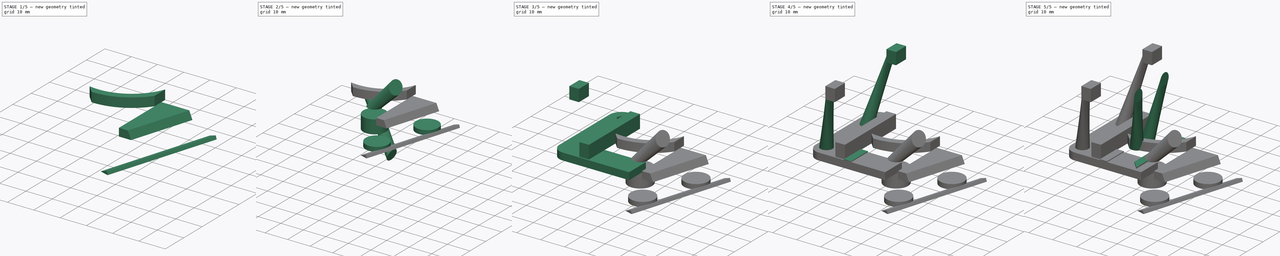
[diagram: build sequence overview — one tinted view per stage of 5, left to right]
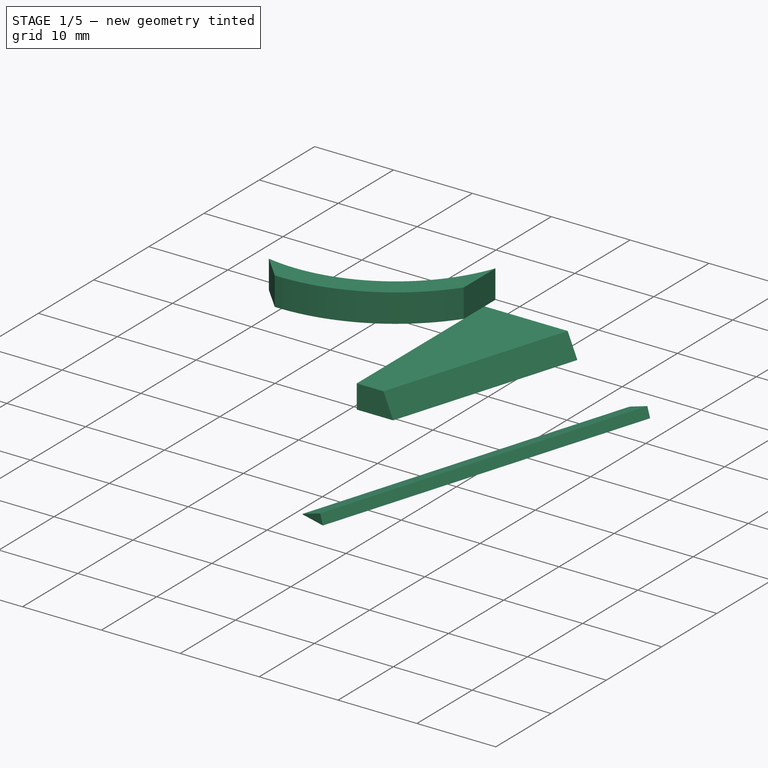
[diagram: stage 1 of 5 — iso view after this stage's code; geometry added in this stage tinted green]
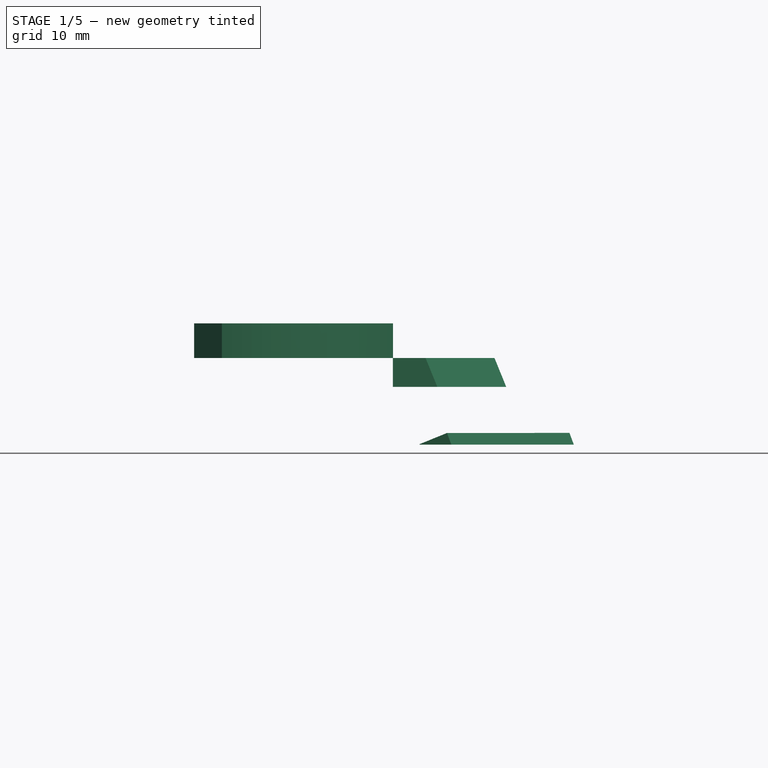
[diagram: stage 1 of 5 — front view after this stage's code; geometry added in this stage tinted green]
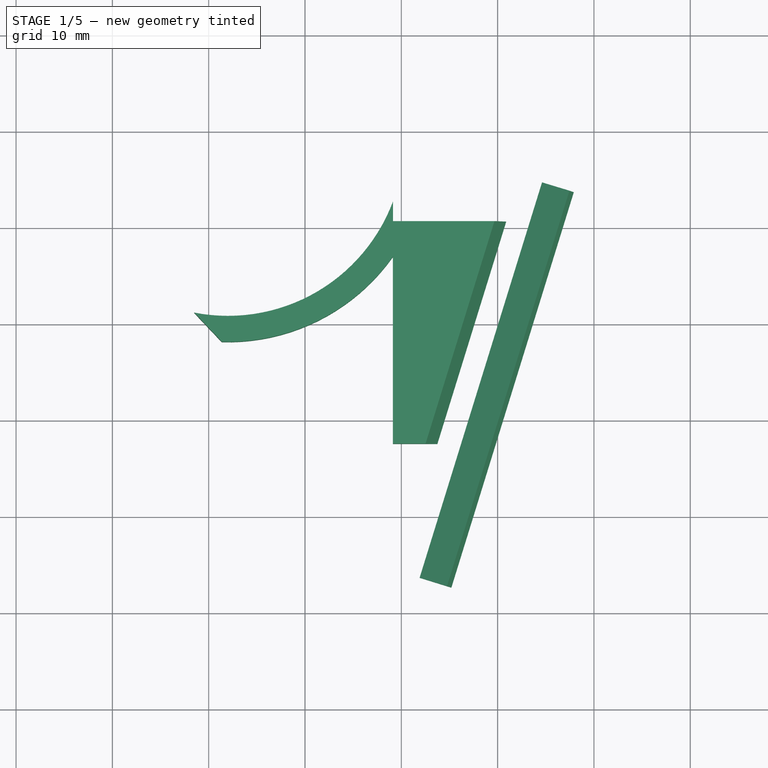
[diagram: stage 1 of 5 — top view after this stage's code; geometry added in this stage tinted green]
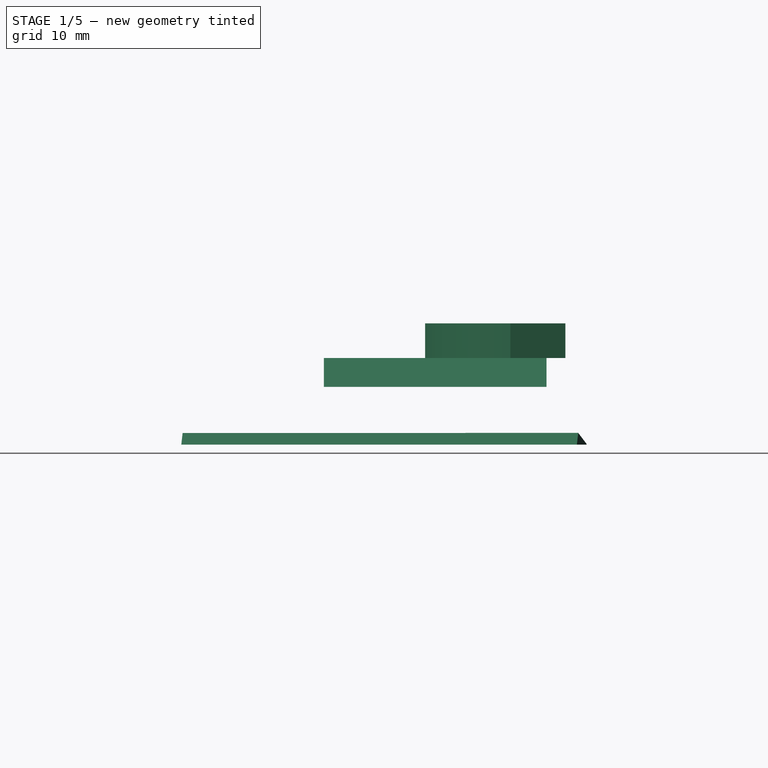
[diagram: stage 1 of 5 — right view after this stage's code; geometry added in this stage tinted green]
FCSTD DOCUMENT  (FreeCAD 1.0RUnknown)
Label: left-thumb-mount
License: All rights reserved
LicenseURL: https://en.wikipedia.org/wiki/All_rights_reserved
objects: Sketcher::SketchObject×28, App::Link×18, PartDesign::SubShapeBinder×17, PartDesign::Pad×13, PartDesign::AdditiveLoft×8, App::Part×7, PartDesign::Body×5, PartDesign::Plane×1
note: 142 computed .brp shape members not serialized (recipe doc carries the construction recipe); baked Part::Feature solids carry a one-line shape summary decoded from their .brp
EXTERNAL_REF file=trackball-holder.FCStd obj=Body001
EXTERNAL_REF file=left.FCStd obj=Part001
EXTERNAL_REF file=thumb-cluster.FCStd obj=Body010
EXTERNAL_REF file=../../../Downloads/cirque-trackpad.FCStd obj=Body001
EXTERNAL_REF file=trackball-holder.FCStd obj=Part
EXTERNAL_REF file=left.FCStd obj=Board_f9e4
EXTERNAL_REF file=thumbstick-breakout.FCStd obj=Body
EXTERNAL_REF file=trackball-holder.FCStd obj=Part002
EXTERNAL_REF file=thumbstick-breakout.FCStd obj=Body003
EXTERNAL_REF file=thumbstick-breakout.FCStd obj=Part__Feature001
EXTERNAL_REF file=../../../Downloads/cirque-trackpad.FCStd obj=Part__Feature
EXTERNAL_REF file=caps.FCStd obj=Body

FEATURE [App::Link] Link  label="trackball base"
  LinkPlacement = pos=(61.884,-20,18.7) rot=(0.57735,0.57735,0.57735;2.0944rad)
  LinkedObject = -> <external trackball-holder.FCStd>#Body001
  Placement = pos=(61.884,-20,18.7) rot=(0.57735,0.57735,0.57735;2.0944rad)
FEATURE [App::Link] Link006  label="case"
  LinkedObject = -> <external left.FCStd>#Part001
FEATURE [App::Link] Link010  label="thumb-cluster base"
  LinkPlacement = pos=(73.4907,-44.7432,14.2589) rot=(0.146179,0.965928,-0.213578;1.232rad)
  LinkedObject = -> <external thumb-cluster.FCStd>#Body010
  Placement = pos=(73.4907,-44.7432,14.2589) rot=(0.146179,0.965928,-0.213578;1.232rad)
FEATURE [App::Link] Link011  label="cirque base"
  LinkPlacement = pos=(54,-21.5,-7.6) rot=(0,0,1;0rad)
  LinkedObject = -> <external ../../../Downloads/cirque-trackpad.FCStd>#Body001
  Placement = pos=(54,-21.5,-7.6) rot=(0,0,1;0rad)
FEATURE [App::Link] Link014  label="holder"
  LinkPlacement = pos=(56.5,-24,-0.6) rot=(0,0,-1;1.5708rad)
  LinkedObject = -> <external trackball-holder.FCStd>#Part
  Placement = pos=(56.5,-24,-0.6) rot=(0,0,-1;1.5708rad)
FEATURE [App::Link] Link015  label="left"
  LinkedObject = -> <external left.FCStd>#Board_f9e4
FEATURE [App::Link] Link016  label="trackball top"
  LinkPlacement = pos=(63,-19.7505,19.3) rot=(0.57735,-0.57735,0.57735;4.18879rad)
  LinkedObject = -> <external trackball-holder.FCStd>#Part
  Placement = pos=(63,-19.7505,19.3) rot=(0.57735,-0.57735,0.57735;4.18879rad)
FEATURE [App::Link] Link017  label="thumbstick base"
  LinkPlacement = pos=(69.88,-37,29.7) rot=(0,1,0;1.5708rad)
  LinkedObject = -> <external thumbstick-breakout.FCStd>#Body
  Placement = pos=(69.88,-37,29.7) rot=(0,1,0;1.5708rad)
FEATURE [App::Link] Link019  label="cluster base001"
  LinkPlacement = pos=(77.23,-47,2) rot=(-0.03,0.99,-0.12;1.92353rad)
  LinkedObject = -> <external thumb-cluster.FCStd>#Body010
  Placement = pos=(77.23,-47,2) rot=(-0.03,0.99,-0.12;1.92353rad)
FEATURE [PartDesign::SubShapeBinder] Binder007
  BindCopyOnChange = 0
  BindMode = 0
  ClaimChildren = false
  Context = -> Part [Part004.Body006.Binder007.]
  Fuse = false
  MakeFace = true
  OffsetFill = false
  OffsetIntersection = false
  OffsetJoinType = 0
  OffsetOpenResult = false
  PartialLoad = false
  Refine = true
  Relative = true
  Support = -> [Link006[Body002.Chamfer.Face35,Body002.Chamfer.Face36,Body002.Chamfer.Edge24,Body002.Chamfer.Edge25]]
  _Version = 2
FEATURE [Sketcher::SketchObject] Sketch063
  ArcFitTolerance = 1e-06
  AttachmentSupport = -> [Binder007]
  ExternalGeometry = -> [Binder007]
  FullyConstrained = false
  MakeInternals = false
  MapMode = 5
  Placement = pos=(0,0,-1.6) rot=(0,0,1;0rad)
  sketch-geometry (10):
    g0: Circle CenterX=74.1219 CenterY=3.76462 CenterZ=0 NormalX=0 NormalY=0 NormalZ=1 AngleXU=0 Radius=1.6
    g1: ArcOfCircle CenterX=48.7566 CenterY=-1.349 CenterZ=0 NormalX=0 NormalY=0 NormalZ=1 AngleXU=0 Radius=5 StartAngle=0.756705 EndAngle=3.8983
    g2: Circle CenterX=48.7566 CenterY=-1.349 CenterZ=0 NormalX=0 NormalY=0 NormalZ=1 AngleXU=0 Radius=1.6
    g3: ArcOfCircle CenterX=74.1219 CenterY=3.75859 CenterZ=0 NormalX=0 NormalY=0 NormalZ=1 AngleXU=0 Radius=5 StartAngle=1e-16 EndAngle=3.14159
    g4: LineSegment StartX=69.1219 StartY=-15.6348 StartZ=0 EndX=69.1219 EndY=3.75859 EndZ=0
    g5: LineSegment StartX=79.1219 StartY=3.75859 StartZ=0 EndX=79.1219 EndY=-32.5119 EndZ=0
    g6: LineSegment StartX=45.1211 StartY=-4.78165 StartZ=0 EndX=73.4375 EndY=-34.7715 EndZ=0
    g7: LineSegment StartX=52.3921 StartY=2.08365 StartZ=0 EndX=69.1219 EndY=-15.6348 EndZ=0
    g8: ArcOfCircle CenterX=75.8306 CenterY=-32.5119 CenterZ=0 NormalX=0 NormalY=0 NormalZ=1 AngleXU=0 Radius=3.2913 StartAngle=3.8983 EndAngle=6.28319
    g9: GeomPoint [constr] X=79.1219 Y=-40.7918 Z=0
  constraints (20):
    c: Diameter(g0) = 3.2
    c: Radius(g1) = 5
    c: Angle(g1) = 3.14159
    c: Coincident(g1,g-4)
    c: Diameter(g2) = 3.2
    c: Coincident(g2,g1)
    c: Radius(g3) = 5
    c: Angle(g3) = 3.14159
    c: Coincident(g3,g-3)
    c: Coincident(g4,g3)
    c: Vertical(g4)
    c: Tangent(g3,g5) = 1.5708
    c: Vertical(g5)
    c: Tangent(g1,g6) = -1.5708
    c: Tangent(g1,g7) = 1.5708
    c: Coincident(g4,g7)
    c: PointOnObject(g9,g5)
    c: PointOnObject(g9,g6)
    c: Tangent(g5,g8) = 1.5708
    c: Tangent(g6,g8) = -1.5708
FEATURE [PartDesign::Pad] Pad047
  Direction = (0,0,1)
  Length = 3
  Length2 = 10
  Profile = -> Sketch063
  ReferenceAxis = -> Sketch063 [N_Axis]
  Refine = true
  Suppressed = false
  Type = 0
FEATURE [PartDesign::Body] Body008  label="trackball-mount"
  AllowCompound = true
  Group = -> [Binder,Binder012,Sketch,Pad,Sketch077,Pad048,Binder013,Sketch078,Pad049,Sketch079,Pad050,Sketch080,Sketch081,AdditiveLoft,Sketch082,Sketch083,AdditiveLoft009,Binder019,Sketch089,Pad052,Sketch090,Pad053]
  Origin = -> Origin017
  Tip = -> Pad053
FEATURE [App::Part] Part003  label="trackball-and-thumb-cluster"
  Group = -> [Link,Link021,Body008]
  Origin = -> Origin010
FEATURE [App::Part] Part  label="vertical"
  Group = -> [Part003,Part004,Body006,Part005]
  Origin = -> Origin006
FEATURE [App::Link] Link026  label="new mount002"
  LinkedObject = -> Body006
FEATURE [App::Link] Link027  label="cirque 40mm"
  LinkPlacement = pos=(62,-1,8) rot=(0,0,1;1.5708rad)
  LinkedObject = -> <external ../../../Downloads/cirque-trackpad.FCStd>#Part__Feature
  Placement = pos=(62,-1,8) rot=(0,0,1;1.5708rad)
FEATURE [PartDesign::SubShapeBinder] Binder020
  BindCopyOnChange = 0
  BindMode = 0
  ClaimChildren = false
  Context = -> Part002 [Part001.Body.Binder020.]
  Fuse = false
  MakeFace = true
  OffsetFill = false
  OffsetIntersection = false
  OffsetJoinType = 0
  OffsetOpenResult = false
  PartialLoad = false
  Refine = true
  Relative = true
  Support = -> [Link026[Pad047.Face11]]
  _Version = 2
FEATURE [PartDesign::SubShapeBinder] Binder021
  BindCopyOnChange = 0
  BindMode = 0
  ClaimChildren = false
  Context = -> Part002 [Part001.Body.Binder021.]
  Fuse = false
  MakeFace = true
  OffsetFill = false
  OffsetIntersection = false
  OffsetJoinType = 0
  OffsetOpenResult = false
  PartialLoad = false
  Refine = true
  Relative = true
  Support = -> [Link027[Face4]]
  _Version = 2
FEATURE [Sketcher::SketchObject] Sketch091
  ArcFitTolerance = 1e-06
  AttachmentSupport = -> [Binder021]
  ExternalGeometry = -> [Binder021]
  FullyConstrained = false
  MakeInternals = false
  MapMode = 5
  Placement = pos=(0,0,5) rot=(1,0,0;3.14159rad)
  sketch-geometry (4):
    g0: ArcOfCircle CenterX=62 CenterY=1 CenterZ=0 NormalX=0 NormalY=0 NormalZ=1 AngleXU=0 Radius=21.0029 StartAngle=0.616798 EndAngle=1.60102
    g1: ArcOfCircle CenterX=62 CenterY=1 CenterZ=0 NormalX=0 NormalY=0 NormalZ=1 AngleXU=0 Radius=18.3 StartAngle=0.35909 EndAngle=1.76369
    g2: LineSegment StartX=79.1328 StartY=13.1486 StartZ=0 EndX=79.1328 EndY=7.43104 EndZ=0
    g3: LineSegment StartX=58.4919 StartY=18.9606 StartZ=0 EndX=61.3652 EndY=21.9933 EndZ=0
  constraints (6):
    c: Coincident(g1,g-4)
    c: Coincident(g2,g0)
    c: Coincident(g2,g1)
    c: Vertical(g2)
    c: Coincident(g3,g1)
    c: Coincident(g3,g0)
FEATURE [PartDesign::Pad] Pad054
  Direction = (0,0,-1)
  Length = 10
  Length2 = 10
  Profile = -> Sketch091
  ReferenceAxis = -> Sketch091 [N_Axis]
  Refine = true
  Suppressed = false
  Type = 3
  UpToFace = -> Binder020 [Face1]
FEATURE [App::Link] Link028  label="xring"
  LinkPlacement = pos=(62.25,28.75,7.5) rot=(0,0,1;0rad)
  LinkedObject = -> <external caps.FCStd>#Body
  Placement = pos=(62.25,28.75,7.5) rot=(0,0,1;0rad)
FEATURE [PartDesign::SubShapeBinder] Binder022
  BindCopyOnChange = 0
  BindMode = 0
  ClaimChildren = false
  Context = -> Part002 [Part001.Body.Binder022.]
  Fuse = false
  MakeFace = true
  OffsetFill = false
  OffsetIntersection = false
  OffsetJoinType = 0
  OffsetOpenResult = false
  PartialLoad = false
  Refine = true
  Relative = true
  Support = -> [Link010[Chamfer001.Face3]]
  _Version = 2
FEATURE [PartDesign::SubShapeBinder] Binder023
  BindCopyOnChange = 0
  BindMode = 0
  ClaimChildren = false
  Context = -> Part002 [Part001.Body.Binder023.]
  Fuse = false
  MakeFace = true
  OffsetFill = false
  OffsetIntersection = false
  OffsetJoinType = 0
  OffsetOpenResult = false
  PartialLoad = false
  Refine = true
  Relative = true
  Support = -> [Link006[Body002.Chamfer.Face1]]
  _Version = 2
FEATURE [PartDesign::Plane] DatumPlane001
  AttachmentSupport = -> [Binder023]
  Length = 182.676
  MapMode = 5
  Placement = pos=(0,0,-7.6) rot=(1,0,0;3.14159rad)
  ResizeMode = 0
  Width = 128.706
FEATURE [PartDesign::Pad] Pad055
  BaseFeature = -> Pad054
  Direction = (0.346621,-0.107166,-0.931863)
  Length = 10
  Length2 = 10
  Profile = -> Binder022 [Face1]
  Refine = true
  Suppressed = false
  Type = 3
  UpToFace = -> DatumPlane001
FEATURE [PartDesign::SubShapeBinder] Binder024
  BindCopyOnChange = 0
  BindMode = 0
  ClaimChildren = false
  Context = -> Part002 [Part001.Body.Binder024.]
  Fuse = false
  MakeFace = true
  OffsetFill = false
  OffsetIntersection = false
  OffsetJoinType = 0
  OffsetOpenResult = false
  PartialLoad = false
  Refine = true
  Relative = true
  Support = -> [Link010[Chamfer001.Face1]]
  _Version = 2
FEATURE [PartDesign::SubShapeBinder] Binder025
  BindCopyOnChange = 0
  BindMode = 0
  ClaimChildren = false
  Context = -> Part002 [Part001.Body.Binder025.]
  Fuse = false
  MakeFace = true
  OffsetFill = false
  OffsetIntersection = false
  OffsetJoinType = 0
  OffsetOpenResult = false
  PartialLoad = false
  Refine = true
  Relative = true
  Support = -> [Link026[Pad047.Face5]]
  _Version = 2
FEATURE [Sketcher::SketchObject] Sketch092
  ArcFitTolerance = 1e-06
  AttachmentSupport = -> [Binder025]
  ExternalGeometry = -> [Binder025]
  FullyConstrained = false
  MakeInternals = false
  MapMode = 5
  Placement = pos=(79.1219,0,0) rot=(0.57735,0.57735,0.57735;2.0944rad)
  sketch-geometry (4):
    g0: LineSegment StartX=-32.5119 StartY=1.4 StartZ=0 EndX=-32.5119 EndY=-1.6 EndZ=0
    g1: LineSegment StartX=-32.5119 StartY=-1.6 StartZ=0 EndX=-9.39731 EndY=-1.6 EndZ=0
    g2: LineSegment StartX=-9.39731 StartY=-1.6 StartZ=0 EndX=-9.39731 EndY=1.4 EndZ=0
    g3: LineSegment StartX=-9.39731 StartY=1.4 StartZ=0 EndX=-32.5119 EndY=1.4 EndZ=0
  constraints (10):
    c: Coincident(g0,g1)
    c: Coincident(g1,g2)
    c: Coincident(g2,g3)
    c: Coincident(g3,g0)
    c: Vertical(g0)
    c: Vertical(g2)
    c: Horizontal(g1)
    c: Horizontal(g3)
    c: Coincident(g0,g-3)
    c: PointOnObject(g1,g-4)
FEATURE [PartDesign::Pad] Pad056
  BaseFeature = -> Pad055
  Direction = (1,0,0)
  Length = 10
  Length2 = 10
  Profile = -> Sketch092
  ReferenceAxis = -> Sketch092 [N_Axis]
  Refine = true
  Suppressed = false
  Type = 3
  UpToFace = -> Binder024 [Face1]
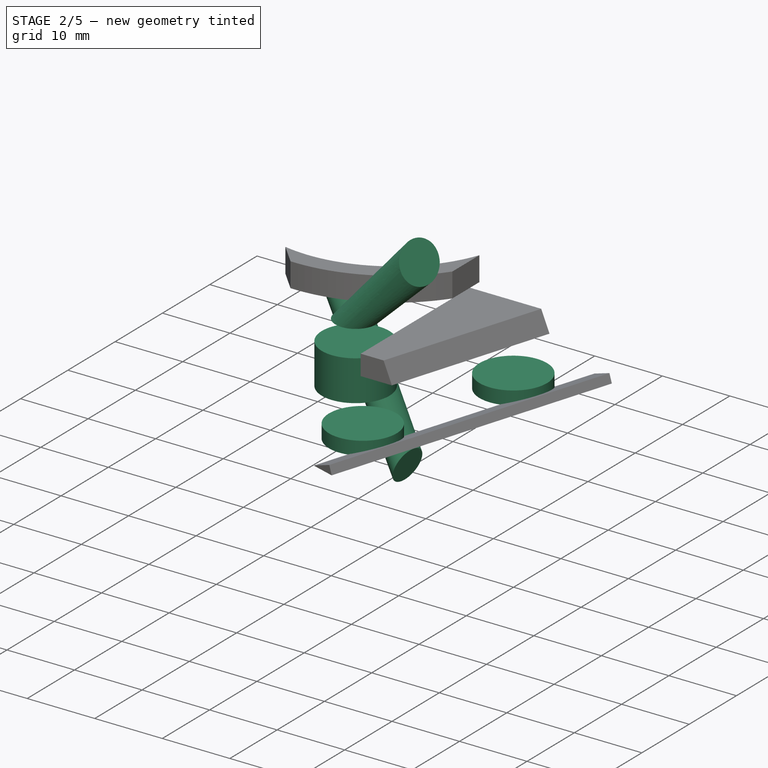
[diagram: stage 2 of 5 — iso view after this stage's code; geometry added in this stage tinted green]
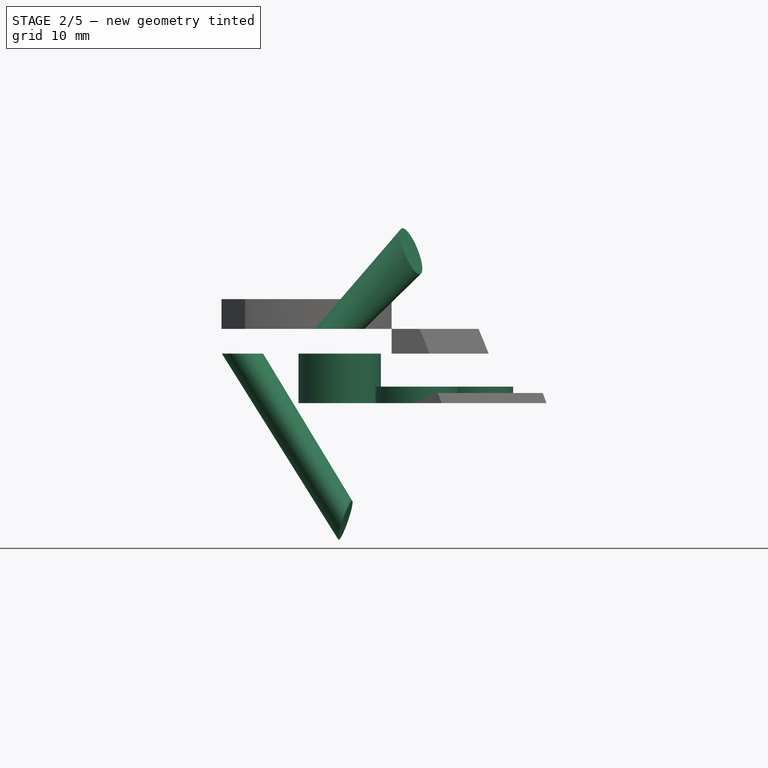
[diagram: stage 2 of 5 — front view after this stage's code; geometry added in this stage tinted green]
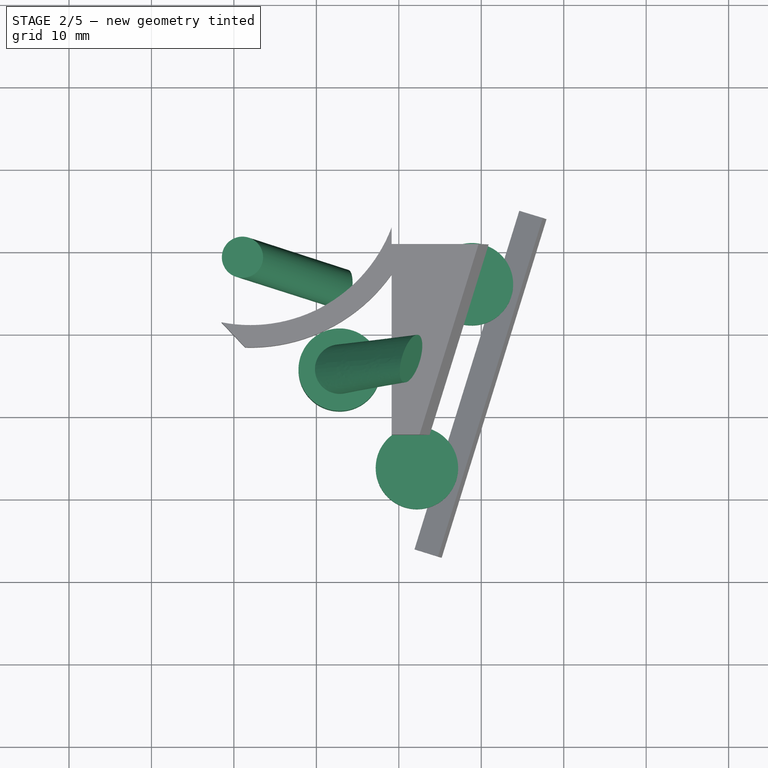
[diagram: stage 2 of 5 — top view after this stage's code; geometry added in this stage tinted green]
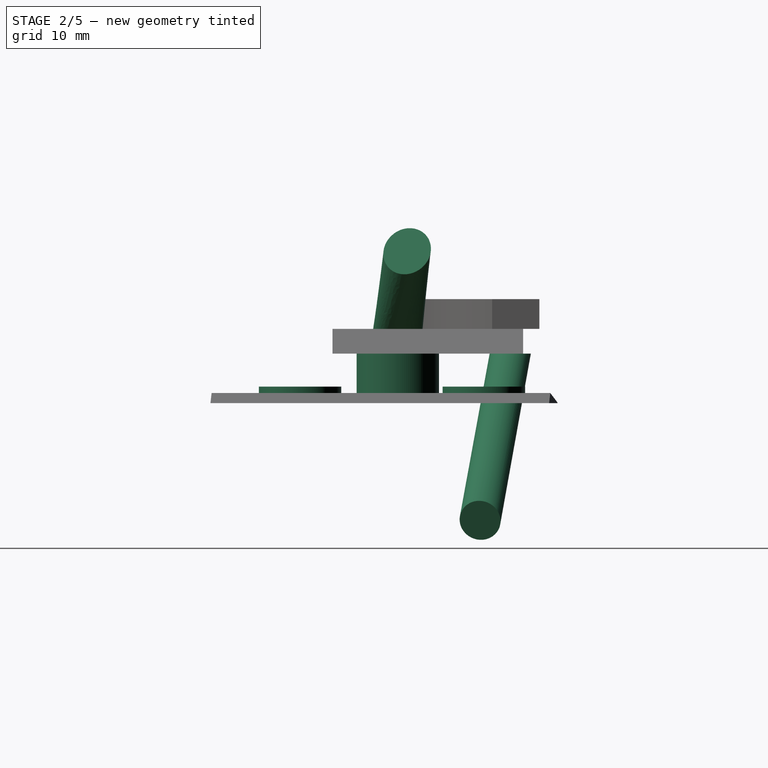
[diagram: stage 2 of 5 — right view after this stage's code; geometry added in this stage tinted green]
FEATURE [PartDesign::Body] Body006  label="new mount"
  AllowCompound = false
  Group = -> [Binder007,Sketch063,Pad047]
  Origin = -> Origin013
  Tip = -> Pad047
FEATURE [App::Link] Link020  label="new mount001"
  LinkedObject = -> Body006
FEATURE [PartDesign::SubShapeBinder] Binder010
  BindCopyOnChange = 0
  BindMode = 0
  ClaimChildren = false
  Context = -> Part [Part004.Body007.Binder010.]
  Fuse = false
  MakeFace = true
  OffsetFill = false
  OffsetIntersection = false
  OffsetJoinType = 0
  OffsetOpenResult = false
  PartialLoad = false
  Refine = true
  Relative = true
  Support = -> [Link020[Pad047.Face10]]
  _Version = 2
FEATURE [Sketcher::SketchObject] Sketch066
  ArcFitTolerance = 1e-06
  AttachmentSupport = -> [Binder010]
  ExternalGeometry = -> [Binder010]
  FullyConstrained = false
  MakeInternals = false
  MapMode = 5
  Placement = pos=(0,0,-1.6) rot=(1,0,0;3.14159rad)
  sketch-geometry (1):
    g0: Circle CenterX=73.019 CenterY=9.761 CenterZ=0 NormalX=0 NormalY=0 NormalZ=1 AngleXU=0 Radius=2.5
  constraints (1):
    c: Diameter(g0) = 5
FEATURE [PartDesign::SubShapeBinder] Binder011
  BindCopyOnChange = 0
  BindMode = 0
  ClaimChildren = false
  Context = -> Part [Part004.Body007.Binder011.]
  Fuse = false
  MakeFace = true
  OffsetFill = false
  OffsetIntersection = false
  OffsetJoinType = 0
  OffsetOpenResult = false
  PartialLoad = false
  Refine = true
  Relative = true
  Support = -> [Link019[Chamfer001.Face1]]
  _Version = 2
FEATURE [Sketcher::SketchObject] Sketch067
  ArcFitTolerance = 1e-06
  AttachmentSupport = -> [Binder011]
  FullyConstrained = false
  MakeInternals = false
  MapMode = 5
  Placement = pos=(72.8823,-10.3058,-25.3825) rot=(0.44288,-0.534284,-0.719999;1.98177rad)
  sketch-geometry (1):
    g0: Circle CenterX=1.42836 CenterY=19.2318 CenterZ=0 NormalX=0 NormalY=0 NormalZ=1 AngleXU=0 Radius=2.5
  constraints (1):
    c: Diameter(g0) = 5
FEATURE [Sketcher::SketchObject] Sketch068
  ArcFitTolerance = 1e-06
  AttachmentSupport = -> [Binder010]
  ExternalGeometry = -> [Binder010]
  FullyConstrained = false
  MakeInternals = false
  MapMode = 5
  Placement = pos=(0,0,-1.6) rot=(1,0,0;3.14159rad)
  sketch-geometry (1):
    g0: Circle CenterX=68.551 CenterY=25.6269 CenterZ=0 NormalX=0 NormalY=0 NormalZ=1 AngleXU=0 Radius=2.5
  constraints (1):
    c: Diameter(g0) = 5
FEATURE [Sketcher::SketchObject] Sketch069
  ArcFitTolerance = 1e-06
  AttachmentSupport = -> [Binder011]
  FullyConstrained = false
  MakeInternals = false
  MapMode = 5
  Placement = pos=(72.8823,-10.3058,-25.3825) rot=(0.44288,-0.534284,-0.719999;1.98177rad)
  sketch-geometry (1):
    g0: Circle CenterX=30.2957 CenterY=8.59634 CenterZ=0 NormalX=0 NormalY=0 NormalZ=1 AngleXU=0 Radius=2.5
  constraints (1):
    c: Diameter(g0) = 5
FEATURE [Sketcher::SketchObject] Sketch075
  ArcFitTolerance = 1e-06
  AttachmentSupport = -> [Binder010]
  FullyConstrained = false
  MakeInternals = false
  MapMode = 5
  Placement = pos=(0,0,-1.6) rot=(1,0,0;3.14159rad)
  sketch-geometry (1):
    g0: Circle CenterX=61.0373 CenterY=10.9564 CenterZ=0 NormalX=0 NormalY=0 NormalZ=1 AngleXU=0 Radius=2.5
  constraints (1):
    c: Diameter(g0) = 5
FEATURE [Sketcher::SketchObject] Sketch076
  ArcFitTolerance = 1e-06
  AttachmentSupport = -> [Binder011]
  FullyConstrained = false
  MakeInternals = false
  MapMode = 5
  Placement = pos=(72.8823,-10.3058,-25.3825) rot=(0.44288,-0.534284,-0.719999;1.98177rad)
  sketch-geometry (1):
    g0: Circle CenterX=4.35043 CenterY=3.57074 CenterZ=0 NormalX=0 NormalY=0 NormalZ=1 AngleXU=0 Radius=2.5
  constraints (1):
    c: Diameter(g0) = 5
FEATURE [PartDesign::AdditiveLoft] AdditiveLoft006
  Closed = false
  Profile = -> Sketch075
  Refine = true
  Ruled = false
  Sections = -> [Sketch076]
  Suppressed = false
FEATURE [Sketcher::SketchObject] Sketch093
  ArcFitTolerance = 1e-06
  AttachmentSupport = -> [Binder020]
  FullyConstrained = false
  MakeInternals = false
  MapMode = 5
  Placement = pos=(0,0,1.4) rot=(0,0,1;0rad)
  sketch-geometry (1):
    g0: Circle CenterX=72.8287 CenterY=-24.5846 CenterZ=0 NormalX=0 NormalY=0 NormalZ=1 AngleXU=0 Radius=3
  constraints (1):
    c: Diameter(g0) = 6
FEATURE [Sketcher::SketchObject] Sketch094
  ArcFitTolerance = 1e-06
  AttachmentSupport = -> [Binder024]
  FullyConstrained = false
  MakeInternals = false
  MapMode = 5
  Placement = pos=(73.8171,-22.8543,30.0857) rot=(-0.55329,0.66874,0.496645;3.76991rad)
  sketch-geometry (1):
    g0: Circle CenterX=0.63341 CenterY=-20.7385 CenterZ=0 NormalX=0 NormalY=0 NormalZ=1 AngleXU=0 Radius=3
  constraints (1):
    c: Diameter(g0) = 6
FEATURE [PartDesign::AdditiveLoft] AdditiveLoft012
  BaseFeature = -> Pad056
  Closed = false
  Profile = -> Sketch093
  Refine = true
  Ruled = false
  Sections = -> [Sketch094]
  Suppressed = false
FEATURE [PartDesign::SubShapeBinder] Binder026
  BindCopyOnChange = 0
  BindMode = 0
  ClaimChildren = false
  Context = -> Part002 [Part001.Body.Binder026.]
  Fuse = false
  MakeFace = true
  OffsetFill = false
  OffsetIntersection = false
  OffsetJoinType = 0
  OffsetOpenResult = false
  PartialLoad = false
  Refine = true
  Relative = true
  Support = -> [Link026[Pad047.Face10]]
  _Version = 2
FEATURE [Sketcher::SketchObject] Sketch095
  ArcFitTolerance = 1e-06
  AttachmentSupport = -> [Binder026]
  FullyConstrained = false
  MakeInternals = false
  MapMode = 5
  Placement = pos=(0,0,-1.6) rot=(1,0,0;3.14159rad)
  sketch-geometry (1):
    g0: Circle CenterX=72.8282 CenterY=24.5928 CenterZ=0 NormalX=0 NormalY=0 NormalZ=1 AngleXU=0 Radius=5
  constraints (1):
    c: Diameter(g0) = 10
FEATURE [PartDesign::Pad] Pad057
  BaseFeature = -> AdditiveLoft012
  Direction = (0,0,-1)
  Length = 10
  Length2 = 10
  Profile = -> Sketch095
  ReferenceAxis = -> Sketch095 [N_Axis]
  Refine = true
  Suppressed = false
  Type = 3
  UpToFace = -> DatumPlane001 [Plane]
FEATURE [Sketcher::SketchObject] Sketch096
  ArcFitTolerance = 1e-06
  AttachmentSupport = -> [DatumPlane001]
  FullyConstrained = false
  MakeInternals = false
  MapMode = 5
  Placement = pos=(0,0,-7.6) rot=(1,0,0;3.14159rad)
  sketch-geometry (2):
    g0: Circle CenterX=82.1937 CenterY=36.4466 CenterZ=0 NormalX=0 NormalY=0 NormalZ=1 AngleXU=0 Radius=5
    g1: Circle CenterX=88.8672 CenterY=14.1556 CenterZ=0 NormalX=0 NormalY=0 NormalZ=1 AngleXU=0 Radius=5
  constraints (2):
    c: Diameter(g0) = 10
    c: Diameter(g1) = 10
FEATURE [PartDesign::Pad] Pad058
  BaseFeature = -> Pad057
  Direction = (0,0,-1)
  Length = 2
  Length2 = 10
  Profile = -> Sketch096
  ReferenceAxis = -> Sketch096 [N_Axis]
  Refine = true
  Reversed = true
  Suppressed = false
  Type = 0
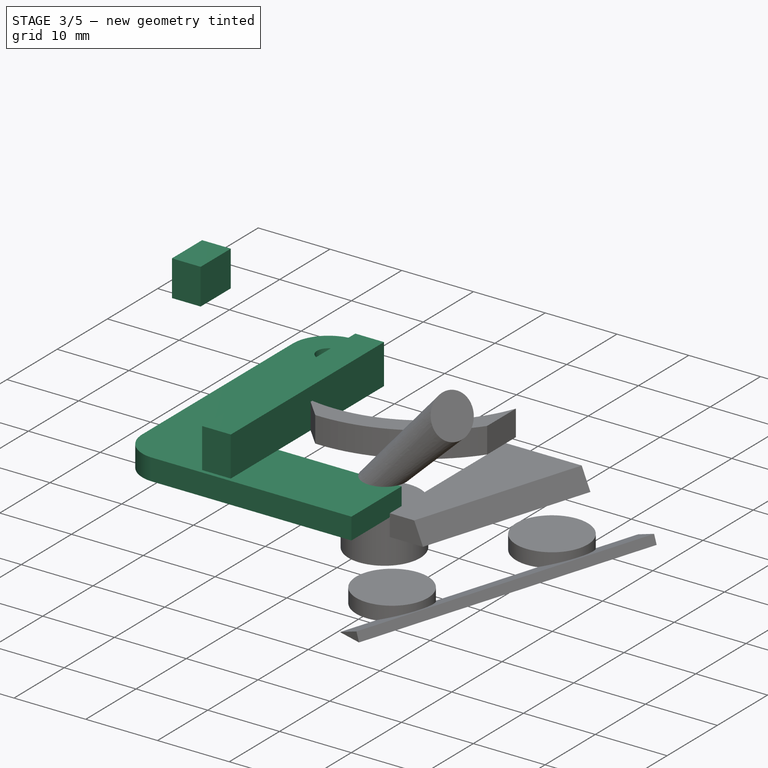
[diagram: stage 3 of 5 — iso view after this stage's code; geometry added in this stage tinted green]
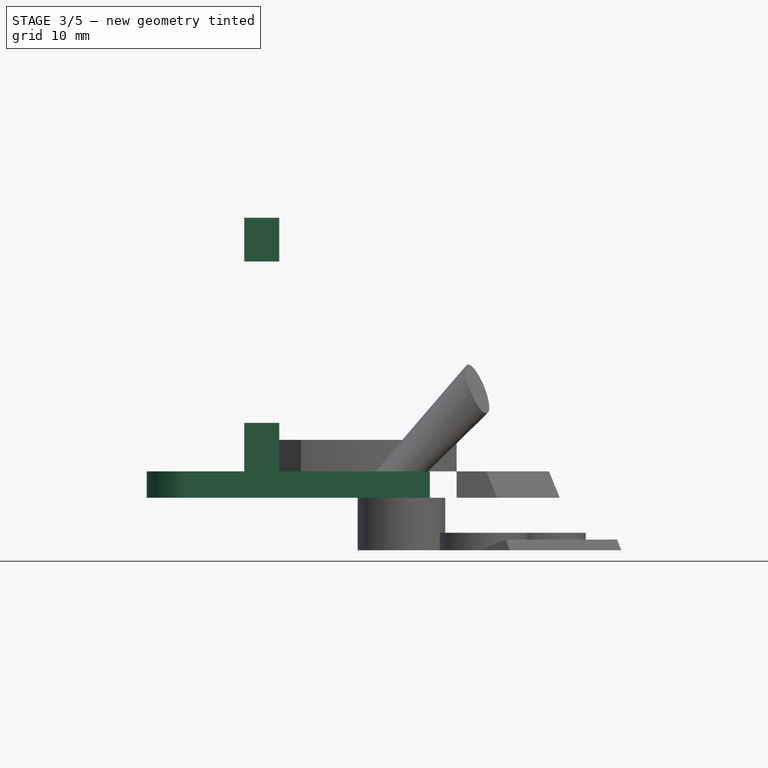
[diagram: stage 3 of 5 — front view after this stage's code; geometry added in this stage tinted green]
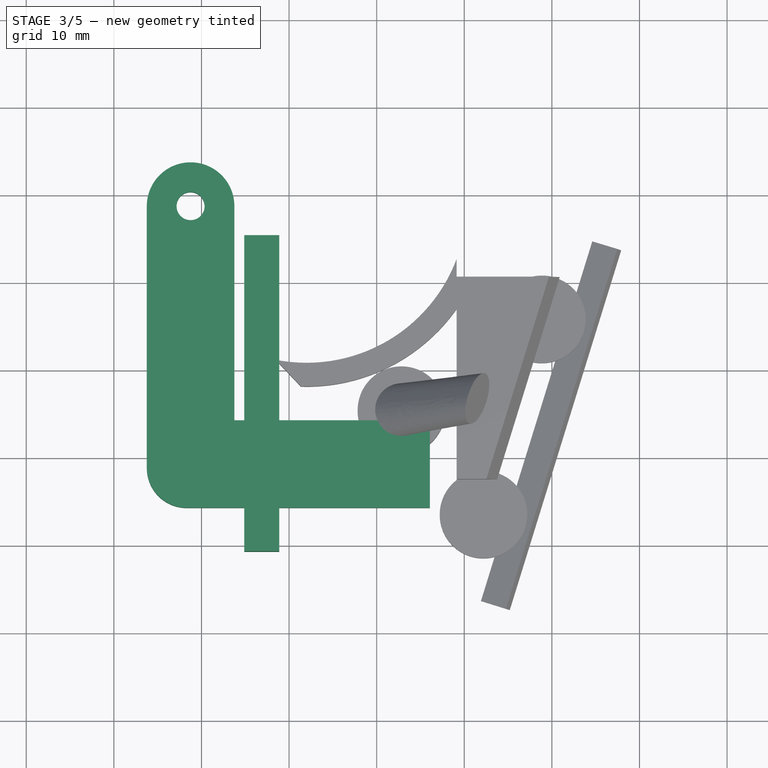
[diagram: stage 3 of 5 — top view after this stage's code; geometry added in this stage tinted green]
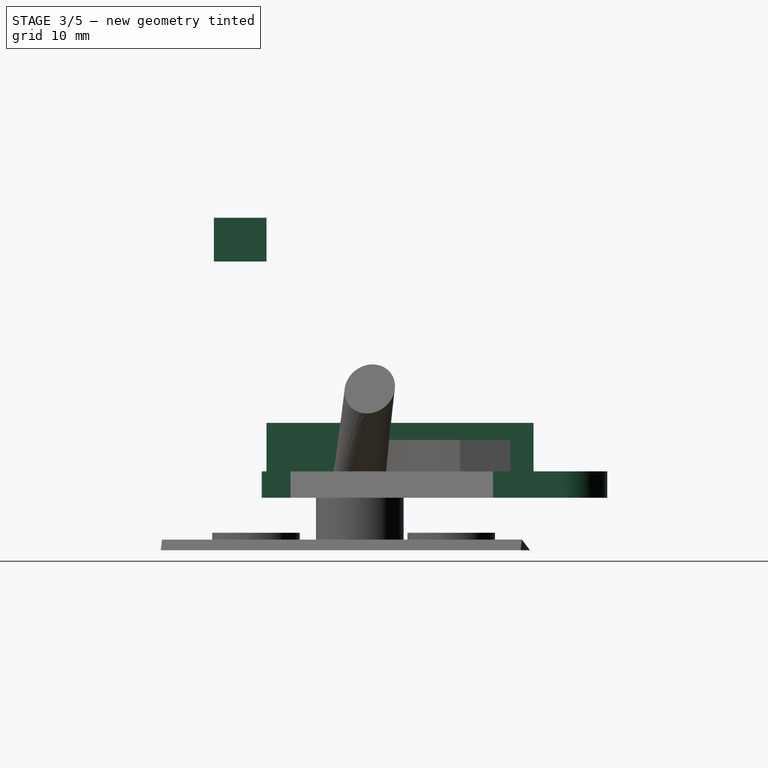
[diagram: stage 3 of 5 — right view after this stage's code; geometry added in this stage tinted green]
FEATURE [PartDesign::AdditiveLoft] AdditiveLoft007
  BaseFeature = -> AdditiveLoft006
  Closed = false
  Profile = -> Sketch068
  Refine = true
  Ruled = false
  Sections = -> [Sketch069]
  Suppressed = false
FEATURE [PartDesign::AdditiveLoft] AdditiveLoft008
  BaseFeature = -> AdditiveLoft007
  Closed = false
  Profile = -> Sketch066
  Refine = true
  Ruled = false
  Sections = -> [Sketch067]
  Suppressed = false
FEATURE [PartDesign::Body] Body007  label="thumb-cluster-mount"
  AllowCompound = true
  Group = -> [Binder010,Sketch066,Binder011,Sketch067,Sketch068,Sketch069,Sketch075,Sketch076,AdditiveLoft006,AdditiveLoft007,AdditiveLoft008]
  Origin = -> Origin014
  Tip = -> AdditiveLoft008
FEATURE [App::Part] Part004  label="thumb-cluster"
  Group = -> [Link019,Link020,Body007]
  Origin = -> Origin011
FEATURE [App::Link] Link021  label="left-thumb-cluster001"
  LinkedObject = -> Part004
FEATURE [App::Link] Link022  label="top-btu"
  LinkPlacement = pos=(54.7786,-49.97,-12.3382) rot=(-0.57735,0.57735,-0.57735;2.0944rad)
  LinkedObject = -> <external trackball-holder.FCStd>#Part002
  Placement = pos=(54.7786,-49.97,-12.3382) rot=(-0.57735,0.57735,-0.57735;2.0944rad)
FEATURE [App::Link] Link023  label="thumb-cluster001"
  LinkedObject = -> Part004
FEATURE [App::Link] Link024  label="thumbstick-top"
  LinkedObject = -> <external thumbstick-breakout.FCStd>#Body003
FEATURE [App::Link] Link025  label="Thumbstick"
  LinkPlacement = pos=(12,14,-2) rot=(0,0,1;0rad)
  LinkedObject = -> <external thumbstick-breakout.FCStd>#Part__Feature001
  Placement = pos=(12,14,-2) rot=(0,0,1;0rad)
FEATURE [App::Part] Part006  label="thumbstick"
  Group = -> [Link024,Link025]
  Origin = -> Origin016
  Placement = pos=(73,-37,29) rot=(0,1,0;1.5708rad)
FEATURE [PartDesign::SubShapeBinder] Binder
  BindCopyOnChange = 0
  BindMode = 0
  ClaimChildren = false
  Context = -> Part [Part003.Binder.]
  Fuse = false
  MakeFace = true
  OffsetFill = false
  OffsetIntersection = false
  OffsetJoinType = 0
  OffsetOpenResult = false
  PartialLoad = false
  Refine = true
  Relative = true
  Support = -> [Link[Pocket008.Face8]]
  _Version = 2
FEATURE [PartDesign::SubShapeBinder] Binder012
  BindCopyOnChange = 0
  BindMode = 0
  ClaimChildren = false
  Context = -> Part [Part003.Body008.Binder012.]
  Fuse = false
  MakeFace = true
  OffsetFill = false
  OffsetIntersection = false
  OffsetJoinType = 0
  OffsetOpenResult = false
  PartialLoad = false
  Refine = true
  Relative = true
  Support = -> [Link021[Link020.Pad047.Face11]]
  _Version = 2
FEATURE [Sketcher::SketchObject] Sketch
  ArcFitTolerance = 1e-06
  AttachmentSupport = -> [Binder]
  ExternalGeometry = -> [Binder]
  FullyConstrained = true
  MakeInternals = false
  MapMode = 5
  Placement = pos=(0,0,6.94253) rot=(1,0,0;3.14159rad)
  sketch-geometry (4):
    g0: LineSegment StartX=54.884 StartY=35.2525 StartZ=0 EndX=54.884 EndY=4.76423 EndZ=0
    g1: LineSegment StartX=54.884 StartY=4.76423 StartZ=0 EndX=58.884 EndY=4.76423 EndZ=0
    g2: LineSegment StartX=58.884 StartY=4.76423 StartZ=0 EndX=58.884 EndY=35.2525 EndZ=0
    g3: LineSegment StartX=58.884 StartY=35.2525 StartZ=0 EndX=54.884 EndY=35.2525 EndZ=0
  constraints (10):
    c: Coincident(g0,g1)
    c: Coincident(g1,g2)
    c: Coincident(g2,g3)
    c: Coincident(g3,g0)
    c: Vertical(g0)
    c: Vertical(g2)
    c: Horizontal(g1)
    c: Horizontal(g3)
    c: Coincident(g0,g-3)
    c: Coincident(g1,g-4)
FEATURE [PartDesign::Pad] Pad
  Direction = (0,0,-1)
  Length = 10
  Length2 = 10
  Profile = -> Sketch
  ReferenceAxis = -> Sketch [N_Axis]
  Refine = true
  Suppressed = false
  Type = 3
  UpToFace = -> Binder012 [Face1]
FEATURE [Sketcher::SketchObject] Sketch077
  ArcFitTolerance = 1e-06
  AttachmentSupport = -> [Binder012]
  ExternalGeometry = -> [Binder012]
  FullyConstrained = false
  MakeInternals = false
  MapMode = 5
  Placement = pos=(0,0,1.4) rot=(0,0,1;0rad)
  sketch-geometry (9):
    g0: ArcOfCircle CenterX=48.7566 CenterY=-1.349 CenterZ=0 NormalX=0 NormalY=0 NormalZ=1 AngleXU=0 Radius=5 StartAngle=1.97052e-09 EndAngle=3.14159
    g1: LineSegment StartX=43.7566 StartY=-1.349 StartZ=0 EndX=43.7566 EndY=-31.2243 EndZ=0
    g2: LineSegment StartX=48.3264 StartY=-35.7941 StartZ=0 EndX=76.0702 EndY=-35.7945 EndZ=0
    g3: LineSegment StartX=76.0702 StartY=-35.7945 StartZ=0 EndX=76.0702 EndY=-25.7945 EndZ=0
    g4: LineSegment StartX=53.7566 StartY=-1.349 StartZ=0 EndX=53.7566 EndY=-25.7945 EndZ=0
    g5: LineSegment StartX=53.7566 StartY=-25.7945 StartZ=0 EndX=76.0702 EndY=-25.7945 EndZ=0
    g6: ArcOfCircle CenterX=48.3265 CenterY=-31.2243 CenterZ=0 NormalX=0 NormalY=0 NormalZ=1 AngleXU=0 Radius=4.56987 StartAngle=3.14159 EndAngle=4.71238
    g7: GeomPoint [constr] X=43.7566 Y=-35.7941 Z=0
    g8: Circle CenterX=48.7566 CenterY=-1.349 CenterZ=0 NormalX=0 NormalY=0 NormalZ=1 AngleXU=0 Radius=1.6
  constraints (17):
    c: Radius(g0) = 5
    c: Angle(g0) = 3.14159
    c: Coincident(g0,g-3)
    c: Tangent(g0,g1) = -1.5708
    c: PointOnObject(g2,g-4)
    c: Coincident(g2,g3)
    c: Vertical(g3)
    c: Tangent(g0,g4) = 1.5708
    c: Coincident(g4,g5)
    c: Coincident(g5,g3)
    c: Horizontal(g5)
    c: DistanceY(g3,g3) = 10
    c: PointOnObject(g7,g1)
    c: PointOnObject(g7,g2)
    c: Tangent(g1,g6) = -1.5708
    c: Tangent(g2,g6) = -1.5708
    c: Coincident(g8,g0)
FEATURE [PartDesign::Pad] Pad048
  BaseFeature = -> Pad
  Direction = (0,0,1)
  Length = 3
  Length2 = 10
  Profile = -> Sketch077
  ReferenceAxis = -> Sketch077 [N_Axis]
  Refine = true
  Reversed = true
  Suppressed = false
  Type = 0
FEATURE [PartDesign::SubShapeBinder] Binder013
  BindCopyOnChange = 0
  BindMode = 0
  ClaimChildren = false
  Context = -> Part [Part003.Body008.Binder013.]
  Fuse = false
  MakeFace = true
  OffsetFill = false
  OffsetIntersection = false
  OffsetJoinType = 0
  OffsetOpenResult = false
  PartialLoad = false
  Refine = true
  Relative = true
  Support = -> [Link[Pocket008.Face7,Pocket008.Face9]]
  _Version = 2
FEATURE [Sketcher::SketchObject] Sketch078
  ArcFitTolerance = 1e-06
  AttachmentSupport = -> [Binder013]
  ExternalGeometry = -> [Binder013]
  FullyConstrained = true
  MakeInternals = false
  MapMode = 5
  Placement = pos=(0,-35.2525,0) rot=(1,0,0;1.5708rad)
  sketch-geometry (4):
    g0: LineSegment StartX=54.884 StartY=30.3553 StartZ=0 EndX=54.884 EndY=25.3553 EndZ=0
    g1: LineSegment StartX=54.884 StartY=25.3553 StartZ=0 EndX=58.884 EndY=25.3553 EndZ=0
    g2: LineSegment StartX=58.884 StartY=25.3553 StartZ=0 EndX=58.884 EndY=30.3553 EndZ=0
    g3: LineSegment StartX=58.884 StartY=30.3553 StartZ=0 EndX=54.884 EndY=30.3553 EndZ=0
  constraints (11):
    c: Coincident(g0,g1)
    c: Coincident(g1,g2)
    c: Coincident(g2,g3)
    c: Coincident(g3,g0)
    c: Vertical(g0)
    c: Vertical(g2)
    c: Horizontal(g1)
    c: Horizontal(g3)
    c: Coincident(g0,g-3)
    c: PointOnObject(g1,g-4)
    c: DistanceY(g0,g0) = 5
FEATURE [PartDesign::Pad] Pad049
  BaseFeature = -> Pad048
  Direction = (0,-1,2e-16)
  Length = 6
  Length2 = 10
  Profile = -> Sketch078
  ReferenceAxis = -> Sketch078 [N_Axis]
  Refine = true
  Suppressed = false
  Type = 0
FEATURE [Sketcher::SketchObject] Sketch003
  ArcFitTolerance = 1e-06
  AttachmentSupport = -> [DatumPlane]
  FullyConstrained = true
  MakeInternals = false
  MapMode = 5
  Placement = pos=(2.07e-14,3e-16,2.6) rot=(0,0,1;0rad)
  sketch-geometry (1):
    g0: Circle CenterX=0 CenterY=0 CenterZ=0 NormalX=0 NormalY=0 NormalZ=1 AngleXU=0 Radius=4.85
  constraints (2):
    c: Diameter(g0) = 9.7
    c: Coincident(g0,g-1)
FEATURE [PartDesign::Plane] DatumPlane001
  AttachmentOffset = pos=(0,0,-1.3) rot=(0,0,1;0rad)
  AttachmentSupport = -> [AdditiveLoft]
  Length = 60
  MapMode = 5
  Placement = pos=(0,0,1.3) rot=(0,0,1;0rad)
  ResizeMode = 0
  Width = 60
FEATURE [Sketcher::SketchObject] Sketch004
  ArcFitTolerance = 1e-06
  AttachmentSupport = -> [DatumPlane001]
  FullyConstrained = true
  MakeInternals = false
  MapMode = 5
  Placement = pos=(0,0,1.3) rot=(0,0,1;0rad)
  sketch-geometry (1):
    g0: Circle CenterX=0 CenterY=0 CenterZ=0 NormalX=0 NormalY=0 NormalZ=1 AngleXU=0 Radius=3.85
  constraints (2):
    c: Diameter(g0) = 7.7
    c: Coincident(g0,g-1)
FEATURE [PartDesign::SubtractiveLoft] SubtractiveLoft
  BaseFeature = -> AdditiveLoft
  Closed = false
  Profile = -> Sketch003
  Refine = true
  Ruled = false
  Sections = -> [Sketch004]
  Suppressed = false
FEATURE [Sketcher::SketchObject] Sketch005
  ArcFitTolerance = 1e-06
  AttachmentSupport = -> [SubtractiveLoft]
  FullyConstrained = true
  MakeInternals = false
  MapMode = 5
  Placement = pos=(0,0,1.3) rot=(0,0,1;0rad)
  sketch-geometry (1):
    g0: Circle CenterX=0 CenterY=0 CenterZ=0 NormalX=0 NormalY=0 NormalZ=1 AngleXU=0 Radius=1.25
  constraints (2):
    c: Coincident(g0,g-1)
    c: Diameter(g0) = 2.5
FEATURE [PartDesign::Pocket] Pocket
  BaseFeature = -> SubtractiveLoft
  Direction = (0,0,-1)
  Length = 5
  Length2 = 5
  Profile = -> Sketch005
  ReferenceAxis = -> Sketch005 [N_Axis]
  Refine = true
  Suppressed = false
  Type = 1
FEATURE [PartDesign::Chamfer] Chamfer
  Angle = 30
  Base = -> Pocket [Edge6]
  BaseFeature = -> Pocket
  ChamferType = 2
  FlipDirection = false
  Refine = true
  Size = 1.2
  Size2 = 1
  SupportTransform = false
  Suppressed = false
  UseAllEdges = false
FEATURE [PartDesign::Fillet] Fillet
  Base = -> Chamfer [Edge7]
  BaseFeature = -> Chamfer
  Radius = 1
  Refine = true
  SupportTransform = false
  Suppressed = false
  UseAllEdges = false
FEATURE [PartDesign::Chamfer] Chamfer001
  Angle = 45
  Base = -> Fillet [Edge11]
  BaseFeature = -> Fillet
  ChamferType = 2
  FlipDirection = false
  Refine = true
  Size = 0.3
  Size2 = 1
  SupportTransform = false
  Suppressed = false
  UseAllEdges = false
FEATURE [PartDesign::Body] Body  label="xring"
  AllowCompound = false
  Group = -> [Sketch,Pad,Sketch001,DatumPlane,Sketch002,AdditiveLoft,Sketch003,DatumPlane001,Sketch004,SubtractiveLoft,Sketch005,Pocket,Chamfer,Fillet,Chamfer001]
  Origin = -> Origin
  Tip = -> Chamfer001
---- part left.FCStd = doc fcstd_3019e020500d (78541 chars; too large to inline — full recipe in that document) ----
---- part thumb-cluster.FCStd = doc fcstd_5160b2ce58e3 ----
FCSTD DOCUMENT  (FreeCAD 1.0RUnknown)
Label: thumb-cluster
License: All rights reserved
LicenseURL: https://en.wikipedia.org/wiki/All_rights_reserved
objects: Part::Feature×14, Sketcher::SketchObject×10, App::Link×10, App::Part×6, PartDesign::Pocket×4, PartDesign::Pad×3, PartDesign::Chamfer×3, PartDesign::Thickness×2, PartDesign::Body×2, PartDesign::SubShapeBinder×2, PartDesign::CoordinateSystem×1, PartDesign::ShapeBinder×1
note: 76 computed .brp shape members not serialized (recipe doc carries the construction recipe); baked Part::Feature solids carry a one-line shape summary decoded from their .brp

FEATURE [PartDesign::CoordinateSystem] Local_CS_58ce
  AttacherType = Attacher::AttachEngine3D
  MapMode = 2
FEATURE [Part::Feature] Pcb_58ce
  Placement = pos=(-19.5,69,0) rot=(0,0,1;0rad)
  shape: bbox 21 x 45 x 1.6 mm, 50 faces (baked)
FEATURE [Sketcher::SketchObject] PCB_Sketch_58ce
  ArcFitTolerance = 1e-06
  FullyConstrained = false
  MakeInternals = false
  sketch-geometry (8):
    g0: LineSegment StartX=21 StartY=44 StartZ=0 EndX=21 EndY=1 EndZ=0
    g1: LineSegment StartX=20 StartY=1e-16 StartZ=0 EndX=1 EndY=0 EndZ=0
    g2: LineSegment StartX=1 StartY=45 StartZ=0 EndX=20 EndY=45 EndZ=0
    g3: LineSegment StartX=1e-16 StartY=1 StartZ=0 EndX=3.3e-15 EndY=44 EndZ=0
    g4: ArcOfCircle CenterX=20 CenterY=44 CenterZ=0 NormalX=0 NormalY=0 NormalZ=-1 AngleXU=1.5708 Radius=0.999999 StartAngle=0 EndAngle=1.5708
    g5: ArcOfCircle CenterX=0.999999 CenterY=0.999999 CenterZ=0 NormalX=0 NormalY=0 NormalZ=-1 AngleXU=-1.5708 Radius=0.999999 StartAngle=0 EndAngle=1.5708
    g6: ArcOfCircle CenterX=20 CenterY=0.999999 CenterZ=0 NormalX=0 NormalY=0 NormalZ=-1 AngleXU=3.14159 Radius=0.999999 StartAngle=0 EndAngle=1.5708
    g7: ArcOfCircle CenterX=0.999999 CenterY=44 CenterZ=0 NormalX=0 NormalY=0 NormalZ=-1 AngleXU=-7.47076e-07 Radius=0.999999 StartAngle=0 EndAngle=1.5708
  constraints (8):
    c: Coincident(g3,g5)
    c: Coincident(g3,g7)
    c: Coincident(g1,g5)
    c: Coincident(g2,g7)
    c: Coincident(g1,g6)
    c: Coincident(g2,g4)
    c: Coincident(g0,g6)
    c: Coincident(g0,g4)
FEATURE [App::Part] Board_Geoms_58ce
  Group = -> [Pcb_58ce,PCB_Sketch_58ce]
  Origin = -> Origin
FEATURE [Part::Feature] Shape  label="D24_D_SOD_123_0f779e6ff9e7"
  Placement = pos=(3.66673,13.8333,0) rot=(0,0,-1;0.785398rad)
  shape: bbox 3.147 x 3.147 x 1.25 mm, 67 faces (baked)
FEATURE [Part::Feature] Shape001  label="J4_SOLID_42e36dcc9d63"
  Placement = pos=(10.9645,42.4,0) rot=(0,0.707107,0.707107;3.14159rad)
  shape: bbox 5.501 x 4.001 x 0.9009 mm, 979 faces (baked)
FEATURE [App::Link] D24_D_SOD_123_0f779e6ff9e7_ln_  label="D23_D_SOD_123_3fd67df90355"
  LinkPlacement = pos=(5.66673,15.8333,0) rot=(0,0,-1;0.785398rad)
  LinkedObject = -> Shape
  Placement = pos=(5.66673,15.8333,0) rot=(0,0,-1;0.785398rad)
FEATURE [App::Link] D24_D_SOD_123_0f779e6ff9e7_ln_001  label="D30_D_SOD_123_61e72e2af53f"
  LinkPlacement = pos=(19.75,16.55,0) rot=(0,0,-1;1.5708rad)
  LinkedObject = -> Shape
  Placement = pos=(19.75,16.55,0) rot=(0,0,-1;1.5708rad)
FEATURE [App::Link] D24_D_SOD_123_0f779e6ff9e7_ln_002  label="D27_D_SOD_123_7b2efe9b5669"
  LinkPlacement = pos=(17.6667,24.3333,0) rot=(0,0,1;2.35619rad)
  LinkedObject = -> Shape
  Placement = pos=(17.6667,24.3333,0) rot=(0,0,1;2.35619rad)
FEATURE [App::Link] D24_D_SOD_123_0f779e6ff9e7_ln_003  label="D22_D_SOD_123_057a97edfa83"
  LinkPlacement = pos=(7.66673,17.8333,0) rot=(0,0,-1;0.785398rad)
  LinkedObject = -> Shape
  Placement = pos=(7.66673,17.8333,0) rot=(0,0,-1;0.785398rad)
FEATURE [App::Link] D24_D_SOD_123_0f779e6ff9e7_ln_004  label="D29_D_SOD_123_cdf521000048"
  LinkPlacement = pos=(16.5,16.55,0) rot=(0,0,-1;1.5708rad)
  LinkedObject = -> Shape
  Placement = pos=(16.5,16.55,0) rot=(0,0,-1;1.5708rad)
FEATURE [App::Link] D24_D_SOD_123_0f779e6ff9e7_ln_005  label="D28_D_SOD_123_d5d7d507dfc1"
  LinkPlacement = pos=(15.6667,22.3333,0) rot=(0,0,1;2.35619rad)
  LinkedObject = -> Shape
  Placement = pos=(15.6667,22.3333,0) rot=(0,0,1;2.35619rad)
FEATURE [App::Link] D24_D_SOD_123_0f779e6ff9e7_ln_006  label="D20_D_SOD_123_675b5f77a9ad"
  LinkPlacement = pos=(5.16673,33.8333,0) rot=(0,0,-1;0.785398rad)
  LinkedObject = -> Shape
  Placement = pos=(5.16673,33.8333,0) rot=(0,0,-1;0.785398rad)
FEATURE [Part::Feature] Part__Feature  label="SKRHAD"
  shape: bbox 7.483 x 7.5 x 5.5 mm, 242 faces (baked)
FEATURE [Part::Feature] Part__Feature001  label="Pins"
  shape: bbox 1.15 x 0.8 x 0.1 mm, 6 faces (baked)
FEATURE [Part::Feature] Part__Feature002  label="Pins001"
  shape: bbox 1.15 x 0.8 x 0.1 mm, 6 faces (baked)
FEATURE [Part::Feature] Part__Feature003  label="Pins002"
  shape: bbox 1.15 x 0.8 x 0.1 mm, 6 faces (baked)
FEATURE [Part::Feature] Part__Feature004  label="Pins003"
  shape: bbox 1.15 x 0.8 x 0.1 mm, 6 faces (baked)
FEATURE [Part::Feature] Part__Feature005  label="Pins004"
  shape: bbox 1.15 x 0.8 x 0.1 mm, 6 faces (baked)
FEATURE [Part::Feature] Part__Feature006  label="Pins005"
  shape: bbox 1.15 x 0.8 x 0.1 mm, 6 faces (baked)
FEATURE [Part::Feature] Part__Feature007  label="Pins006"
  shape: bbox 1.64 x 1.44 x 0.1 mm, 6 faces (baked)
FEATURE [Part::Feature] Part__Feature008  label="Pins007"
  shape: bbox 1.64 x 1.44 x 0.1 mm, 6 faces (baked)
FEATURE [Part::Feature] Part__Feature009  label="Lugs"
  shape: bbox 0.55 x 0.55 x 1.8 mm, 3 faces (baked)
FEATURE [Part::Feature] Part__Feature010  label="Lugs001"
  shape: bbox 0.85 x 0.85 x 1.8 mm, 3 faces (baked)
FEATURE [App::Part] SKRHADE  label="S6_SKRHADE_66ce9957abdd"
  Group = -> [Part__Feature,Part__Feature001,Part__Feature002,Part__Feature003,Part__Feature004,Part__Feature005,Part__Feature006,Part__Feature007,Part__Feature008,Part__Feature009,Part__Feature010]
  Origin = -> Origin008
  Placement = pos=(10.9645,9.96447,0) rot=(0,0,-1;0.785398rad)
FEATURE [App::Link] D24_D_SOD_123_0f779e6ff9e7_ln_007  label="D21_D_SOD_123_014bcfdeeddd"
  LinkPlacement = pos=(3.16673,31.8333,0) rot=(0,0,-1;0.785398rad)
  LinkedObject = -> Shape
  Placement = pos=(3.16673,31.8333,0) rot=(0,0,-1;0.785398rad)
FEATURE [App::Link] D24_D_SOD_123_0f779e6ff9e7_ln_008  label="D19_D_SOD_123_2a26592c9c0c"
  LinkPlacement = pos=(7.16673,35.8333,0) rot=(0,0,-1;0.785398rad)
  LinkedObject = -> Shape
  Placement = pos=(7.16673,35.8333,0) rot=(0,0,-1;0.785398rad)
FEATURE [App::Link] S6_SKRHADE_66ce9957abdd_ln_  label="S5_SKRHADE_e4e283c67a98"
  LinkPlacement = pos=(10.9645,28.5203,0) rot=(0,0,-1;0.785398rad)
  LinkedObject = -> SKRHADE
  Placement = pos=(10.9645,28.5203,0) rot=(0,0,-1;0.785398rad)
FEATURE [App::Part] Top_58ce
  Group = -> [Shape,Shape001,D24_D_SOD_123_0f779e6ff9e7_ln_,D24_D_SOD_123_0f779e6ff9e7_ln_001,D24_D_SOD_123_0f779e6ff9e7_ln_002,D24_D_SOD_123_0f779e6ff9e7_ln_003,D24_D_SOD_123_0f779e6ff9e7_ln_004,D24_D_SOD_123_0f779e6ff9e7_ln_005,D24_D_SOD_123_0f779e6ff9e7_ln_006,SKRHADE,D24_D_SOD_123_0f779e6ff9e7_ln_007,D24_D_SOD_123_0f779e6ff9e7_ln_008,S6_SKRHADE_66ce9957abdd_ln_]
  Origin = -> Origin003
FEATURE [App::Part] Step_Models_58ce
  Group = -> [Top_58ce]
  Origin = -> Origin002
FEATURE [Sketcher::SketchObject] Sketch  label="2.2"
  ArcFitTolerance = 1e-06
  FullyConstrained = false
  MakeInternals = false
  Placement = pos=(0,0,0) rot=(0,0,1;3.14159rad)
  sketch-geometry (8):
    g0: LineSegment StartX=-23.2 StartY=-44 StartZ=0 EndX=-23.2 EndY=-0.999999 EndZ=0
    g1: ArcOfCircle CenterX=-20 CenterY=-0.999999 CenterZ=0 NormalX=0 NormalY=0 NormalZ=1 AngleXU=-3.14159 Radius=3.2 StartAngle=4.71239 EndAngle=6.28318
    g2: LineSegment StartX=-20 StartY=2.2 StartZ=0 EndX=-0.999999 EndY=2.2 EndZ=0
    g3: ArcOfCircle CenterX=-0.999999 CenterY=-0.999999 CenterZ=0 NormalX=0 NormalY=0 NormalZ=1 AngleXU=1.5708 Radius=3.2 StartAngle=4.71239 EndAngle=6.28318
    g4: LineSegment StartX=2.2 StartY=-0.999999 StartZ=0 EndX=2.2 EndY=-44 EndZ=0
    g5: ArcOfCircle CenterX=-0.999999 CenterY=-44 CenterZ=0 NormalX=0 NormalY=0 NormalZ=1 AngleXU=7.47076e-07 Radius=3.2 StartAngle=4.71239 EndAngle=6.28318
    g6: LineSegment StartX=-0.999999 StartY=-47.2 StartZ=0 EndX=-20 EndY=-47.2 EndZ=0
    g7: ArcOfCircle CenterX=-20 CenterY=-44 CenterZ=0 NormalX=0 NormalY=0 NormalZ=1 AngleXU=-1.5708 Radius=3.2 StartAngle=4.71239 EndAngle=6.28318
  constraints (12):
    c: Vertical(g0)
    c: Coincident(g0,g1)
    c: Coincident(g1,g2)
    c: Horizontal(g2)
    c: Coincident(g2,g3)
    c: Coincident(g3,g4)
    c: Vertical(g4)
    c: Coincident(g4,g5)
    c: Coincident(g5,g6)
    c: Horizontal(g6)
    c: Coincident(g6,g7)
    c: Coincident(g7,g0)
FEATURE [Sketcher::SketchObject] Sketch025  label="2.003"
  ArcFitTolerance = 1e-06
  FullyConstrained = false
  MakeInternals = false
  Placement = pos=(0,0,0) rot=(0,0,1;3.14159rad)
  sketch-geometry (8):
    g0: LineSegment StartX=-23.4 StartY=-44 StartZ=0 EndX=-23.4 EndY=-0.999999 EndZ=0
    g1: ArcOfCircle CenterX=-20 CenterY=-0.999999 CenterZ=0 NormalX=0 NormalY=0 NormalZ=1 AngleXU=0 Radius=3.4 StartAngle=1.5708 EndAngle=3.14159
    g2: LineSegment StartX=-20 StartY=2.4 StartZ=0 EndX=-0.999999 EndY=2.4 EndZ=0
    g3: ArcOfCircle CenterX=-0.999999 CenterY=-0.999999 CenterZ=0 NormalX=0 NormalY=0 NormalZ=1 AngleXU=0 Radius=3.4 StartAngle=6.28318 EndAngle=7.85398
    g4: LineSegment StartX=2.4 StartY=-1 StartZ=0 EndX=2.4 EndY=-44 EndZ=0
    g5: ArcOfCircle CenterX=-0.999999 CenterY=-44 CenterZ=0 NormalX=0 NormalY=0 NormalZ=1 AngleXU=0 Radius=3.4 StartAngle=4.71239 EndAngle=6.28318
    g6: LineSegment StartX=-0.999999 StartY=-47.4 StartZ=0 EndX=-20 EndY=-47.4 EndZ=0
    g7: ArcOfCircle CenterX=-20 CenterY=-44 CenterZ=0 NormalX=0 NormalY=0 NormalZ=1 AngleXU=0 Radius=3.4 StartAngle=3.14159 EndAngle=4.71239
  constraints (12):
    c: Vertical(g0)
    c: Coincident(g0,g1)
    c: Coincident(g1,g2)
    c: Horizontal(g2)
    c: Coincident(g2,g3)
    c: Coincident(g3,g4)
    c: Vertical(g4)
    c: Coincident(g4,g5)
    c: Coincident(g5,g6)
    c: Horizontal(g6)
    c: Coincident(g6,g7)
    c: Coincident(g7,g0)
FEATURE [PartDesign::Pad] Pad
  Direction = (0,0,1)
  Length = 3.2
  Length2 = 10
  Placement = pos=(0,0,0) rot=(0,0,1;3.14159rad)
  Profile = -> Sketch025
  ReferenceAxis = -> Sketch025 [N_Axis]
  Refine = true
  Suppressed = false
  Type = 0
FEATURE [PartDesign::Thickness] Thickness
  Base = -> Pad [Face10]
  BaseFeature = -> Pad
  Intersection = false
  Join = 0
  Mode = 0
  Refine = true
  Reversed = true
  SupportTransform = false
  Suppressed = false
  Value = 2
FEATURE [PartDesign::ShapeBinder] ShapeBinder
  Support = -> [Pcb_58ce]
  TraceSupport = false
FEATURE [Sketcher::SketchObject] Sketch026
  ArcFitTolerance = 1e-06
  AttachmentSupport = -> [Thickness]
  ExternalGeometry = -> [ShapeBinder]
  FullyConstrained = true
  MakeInternals = false
  MapMode = 5
  Placement = pos=(0,0,0) rot=(1,0,0;3.14159rad)
  sketch-geometry (4):
    g0: Circle CenterX=3 CenterY=-3 CenterZ=0 NormalX=0 NormalY=0 NormalZ=1 AngleXU=0 Radius=1.25
    g1: Circle CenterX=18 CenterY=-3 CenterZ=0 NormalX=0 NormalY=0 NormalZ=1 AngleXU=0 Radius=1.25
    g2: Circle CenterX=18 CenterY=-42 CenterZ=0 NormalX=0 NormalY=0 NormalZ=1 AngleXU=0 Radius=1.25
    g3: Circle CenterX=3 CenterY=-42 CenterZ=0 NormalX=0 NormalY=0 NormalZ=1 AngleXU=0 Radius=1.25
  constraints (8):
    c: Coincident(g0,g-3)
    c: Coincident(g1,g-4)
    c: Coincident(g2,g-5)
    c: Diameter(g2) = 2.5
    c: Equal(g0,g1)
    c: Equal(g1,g2)
    c: Coincident(g3,g-6)
    c: Equal(g2,g3)
FEATURE [PartDesign::Pocket] Pocket010
  BaseFeature = -> Thickness
  Direction = (0,0,1)
  Length = 5
  Length2 = 5
  Profile = -> Sketch026
  ReferenceAxis = -> Sketch026 [N_Axis]
  Refine = true
  Suppressed = false
  Type = 1
FEATURE [PartDesign::Chamfer] Chamfer001
  Angle = 60
  Base = -> Pocket010 [Edge18,Edge19,Edge16,Edge17]
  BaseFeature = -> Pocket010
  ChamferType = 2
  FlipDirection = false
  Refine = true
  Size = 0.8
  Size2 = 1
  SupportTransform = false
  Suppressed = false
  UseAllEdges = false
FEATURE [PartDesign::Body] Body010  label="base"
  AllowCompound = false
  Group = -> [Sketch025,Pad,Thickness,ShapeBinder,Sketch026,Pocket010,Chamfer001]
  Origin = -> Origin022
  Placement = pos=(0,0,-3.6) rot=(0,0,1;0rad)
  Tip = -> Chamfer001
FEATURE [Sketcher::SketchObject] Sketch027  label="2.004"
  ArcFitTolerance = 1e-06
  FullyConstrained = false
  MakeInternals = false
  Placement = pos=(0,0,0) rot=(0,0,1;3.14159rad)
  sketch-geometry (8):
    g0: LineSegment StartX=-23.4 StartY=-44 StartZ=0 EndX=-23.4 EndY=-1 EndZ=0
    g1: ArcOfCircle CenterX=-20 CenterY=-0.999999 CenterZ=0 NormalX=0 NormalY=0 NormalZ=1 AngleXU=0 Radius=3.4 StartAngle=1.5708 EndAngle=3.14159
    g2: LineSegment StartX=-20 StartY=2.4 StartZ=0 EndX=-1 EndY=2.4 EndZ=0
    g3: ArcOfCircle CenterX=-0.999999 CenterY=-0.999999 CenterZ=0 NormalX=0 NormalY=0 NormalZ=1 AngleXU=0 Radius=3.4 StartAngle=6.28318 EndAngle=7.85398
    g4: LineSegment StartX=2.4 StartY=-1 StartZ=0 EndX=2.4 EndY=-44 EndZ=0
    g5: ArcOfCircle CenterX=-0.999999 CenterY=-44 CenterZ=0 NormalX=0 NormalY=0 NormalZ=1 AngleXU=0 Radius=3.4 StartAngle=4.71239 EndAngle=6.28319
    g6: LineSegment StartX=-0.999999 StartY=-47.4 StartZ=0 EndX=-20 EndY=-47.4 EndZ=0
    g7: ArcOfCircle CenterX=-20 CenterY=-44 CenterZ=0 NormalX=0 NormalY=0 NormalZ=1 AngleXU=0 Radius=3.4 StartAngle=3.14159 EndAngle=4.71239
  constraints (12):
    c: Vertical(g0)
    c: Coincident(g0,g1)
    c: Coincident(g1,g2)
    c: Horizontal(g2)
    c: Coincident(g2,g3)
    c: Coincident(g3,g4)
    c: Vertical(g4)
    c: Coincident(g4,g5)
    c: Coincident(g5,g6)
    c: Horizontal(g6)
    c: Coincident(g6,g7)
    c: Coincident(g7,g0)
FEATURE [PartDesign::Pad] Pad014
  Direction = (0,0,1)
  Length = 5
  Length2 = 10
  Placement = pos=(0,0,0) rot=(0,0,1;3.14159rad)
  Profile = -> Sketch027
  ReferenceAxis = -> Sketch027 [N_Axis]
  Refine = true
  Suppressed = false
  Type = 0
FEATURE [PartDesign::Thickness] Thickness001
  Base = -> Pad014 [Face9]
  BaseFeature = -> Pad014
  Intersection = false
  Join = 0
  Mode = 0
  Refine = true
  Reversed = true
  SupportTransform = false
  Suppressed = false
  Value = 2
FEATURE [PartDesign::SubShapeBinder] Binder001
  BindCopyOnChange = 0
  BindMode = 0
  ClaimChildren = false
  Context = -> Board_58ce [Part001.Body011.Binder001.]
  Fuse = false
  MakeFace = true
  OffsetFill = false
  OffsetIntersection = false
  OffsetJoinType = 0
  OffsetOpenResult = false
  PartialLoad = false
  Refine = true
  Relative = true
  Support = -> [Step_Models_58ce[Top_58ce.S6_SKRHADE_66ce9957abdd_ln_.Part__Feature.Edge656,Top_58ce.S6_SKRHADE_66ce9957abdd_ln_.Part__Feature.Edge660,Top_58ce.SKRHADE.Part__Feature.Edge656,Top_58ce.SKRHADE.Part__Feature.Edge660]]
  _Version = 2
FEATURE [Sketcher::SketchObject] Sketch029
  ArcFitTolerance = 1e-06
  AttachmentSupport = -> [Thickness001]
  ExternalGeometry = -> [Binder001]
  FullyConstrained = false
  MakeInternals = false
  MapMode = 5
  Placement = pos=(0,0,5) rot=(0,0,1;0rad)
  sketch-geometry (6):
    g0: LineSegment [constr] StartX=11.8395 StartY=28.5203 StartZ=0 EndX=10.4199 EndY=28.5203 EndZ=0
    g1: LineSegment [constr] StartX=10.9645 StartY=27.6453 StartZ=0 EndX=10.9645 EndY=28.5203 EndZ=0
    g2: LineSegment [constr] StartX=11.8395 StartY=9.96447 StartZ=0 EndX=10.2544 EndY=9.96447 EndZ=0
    g3: LineSegment [constr] StartX=10.9645 StartY=9.08947 StartZ=0 EndX=10.9645 EndY=9.96447 EndZ=0
    g4: Circle CenterX=10.9645 CenterY=9.96447 CenterZ=0 NormalX=0 NormalY=0 NormalZ=1 AngleXU=0 Radius=4.5
    g5: Circle CenterX=10.9645 CenterY=28.5203 CenterZ=0 NormalX=0 NormalY=0 NormalZ=1 AngleXU=0 Radius=4.5
  constraints (14):
    c: Symmetric(g-4,g-4,g0)
    c: Horizontal(g0)
    c: Symmetric(g-3,g-3,g1)
    c: PointOnObject(g1,g0)
    c: Vertical(g1)
    c: Symmetric(g-6,g-6,g2)
    c: Horizontal(g2)
    c: Symmetric(g-5,g-5,g3)
    c: PointOnObject(g3,g2)
    c: Vertical(g3)
    c: Diameter(g4) = 9
    c: Coincident(g4,g3)
    c: Diameter(g5) = 9
    c: Coincident(g5,g1)
FEATURE [PartDesign::Pocket] Pocket011
  BaseFeature = -> Thickness001
  Direction = (0,0,-1)
  Length = 5
  Length2 = 5
  Profile = -> Sketch029
  ReferenceAxis = -> Sketch029 [N_Axis]
  Refine = true
  Suppressed = false
  Type = 1
FEATURE [PartDesign::SubShapeBinder] Binder002
  BindCopyOnChange = 0
  BindMode = 0
  ClaimChildren = false
  Context = -> Board_58ce [Part001.Body011.Binder002.]
  Fuse = false
  MakeFace = true
  OffsetFill = false
  OffsetIntersection = false
  OffsetJoinType = 0
  OffsetOpenResult = false
  PartialLoad = false
  Refine = true
  Relative = true
  Support = -> [Board_Geoms_58ce[Pcb_58ce.Edge35,Pcb_58ce.Edge101,Pcb_58ce.Edge134,Pcb_58ce.Edge71]]
  _Version = 2
FEATURE [Sketcher::SketchObject] Sketch030
  ArcFitTolerance = 1e-06
  AttachmentSupport = -> [Pocket011]
  ExternalGeometry = -> [Binder002]
  FullyConstrained = true
  MakeInternals = false
  MapMode = 5
  Placement = pos=(0,0,0) rot=(1,0,0;3.14159rad)
  sketch-geometry (4):
    g0: Circle CenterX=3 CenterY=-3 CenterZ=0 NormalX=0 NormalY=0 NormalZ=1 AngleXU=0 Radius=3
    g1: Circle CenterX=18 CenterY=-3 CenterZ=0 NormalX=0 NormalY=0 NormalZ=1 AngleXU=0 Radius=3
    g2: Circle CenterX=18 CenterY=-42 CenterZ=0 NormalX=0 NormalY=0 NormalZ=1 AngleXU=0 Radius=3
    g3: Circle CenterX=3 CenterY=-42 CenterZ=0 NormalX=0 NormalY=0 NormalZ=1 AngleXU=0 Radius=3
  constraints (8):
    c: Diameter(g0) = 6
    c: Coincident(g0,g-3)
    c: Diameter(g1) = 6
    c: Coincident(g1,g-4)
    c: Diameter(g2) = 6
    c: Coincident(g2,g-5)
    c: Diameter(g3) = 6
    c: Coincident(g3,g-6)
FEATURE [PartDesign::Pad] Pad015
  BaseFeature = -> Pocket011
  Direction = (0,0,-1)
  Length = 10
  Length2 = 10
  Profile = -> Sketch030
  ReferenceAxis = -> Sketch030 [N_Axis]
  Refine = true
  Suppressed = false
  Type = 3
  UpToFace = -> Pocket011 [Face21]
FEATURE [Sketcher::SketchObject] Sketch031
  ArcFitTolerance = 1e-06
  AttachmentSupport = -> [Pad015]
  ExternalGeometry = -> [Pad015]
  FullyConstrained = true
  MakeInternals = false
  MapMode = 5
  Placement = pos=(0,0,0) rot=(1,0,0;3.14159rad)
  sketch-geometry (4):
    g0: Circle CenterX=3 CenterY=-3 CenterZ=0 NormalX=0 NormalY=0 NormalZ=1 AngleXU=0 Radius=1.65
    g1: Circle CenterX=18 CenterY=-3 CenterZ=0 NormalX=0 NormalY=0 NormalZ=1 AngleXU=0 Radius=1.65
    g2: Circle CenterX=18 CenterY=-42 CenterZ=0 NormalX=0 NormalY=0 NormalZ=1 AngleXU=0 Radius=1.65
    g3: Circle CenterX=3 CenterY=-42 CenterZ=0 NormalX=0 NormalY=0 NormalZ=1 AngleXU=0 Radius=1.65
  constraints (8):
    c: Diameter(g0) = 3.3
    c: Coincident(g0,g-3)
    c: Diameter(g1) = 3.3
    c: Coincident(g1,g-4)
    c: Diameter(g2) = 3.3
    c: Coincident(g2,g-5)
    c: Diameter(g3) = 3.3
    c: Coincident(g3,g-6)
FEATURE [PartDesign::Pocket] Pocket012
  BaseFeature = -> Pad015
  Direction = (0,0,1)
  Length = 3.3
  Length2 = 5
  Profile = -> Sketch031
  ReferenceAxis = -> Sketch031 [N_Axis]
  Refine = true
  Suppressed = false
  Type = 0
FEATURE [Sketcher::SketchObject] Sketch032
  ArcFitTolerance = 1e-06
  FullyConstrained = false
  MakeInternals = false
  Placement = pos=(0,0,0) rot=(0,0,1;3.14159rad)
  sketch-geometry (8):
    g0: LineSegment StartX=-23.4 StartY=-44 StartZ=0 EndX=-23.4 EndY=-0.999999 EndZ=0
    g1: ArcOfCircle CenterX=-20 CenterY=-0.999999 CenterZ=0 NormalX=0 NormalY=0 NormalZ=1 AngleXU=-3.14159 Radius=3.4 StartAngle=4.71239 EndAngle=6.28318
    g2: LineSegment StartX=-20 StartY=2.4 StartZ=0 EndX=-0.999999 EndY=2.4 EndZ=0
    g3: ArcOfCircle CenterX=-0.999999 CenterY=-0.999999 CenterZ=0 NormalX=0 NormalY=0 NormalZ=1 AngleXU=1.5708 Radius=3.4 StartAngle=4.71239 EndAngle=6.28318
    g4: LineSegment StartX=2.4 StartY=-0.999999 StartZ=0 EndX=2.4 EndY=-44 EndZ=0
    g5: ArcOfCircle CenterX=-0.999999 CenterY=-44 CenterZ=0 NormalX=0 NormalY=0 NormalZ=1 AngleXU=7.47076e-07 Radius=3.4 StartAngle=4.71239 EndAngle=6.28318
    g6: LineSegment StartX=-0.999999 StartY=-47.4 StartZ=0 EndX=-20 EndY=-47.4 EndZ=0
    g7: ArcOfCircle CenterX=-20 CenterY=-44 CenterZ=0 NormalX=0 NormalY=0 NormalZ=1 AngleXU=-1.5708 Radius=3.4 StartAngle=4.71239 EndAngle=6.28318
  constraints (12):
    c: Vertical(g0)
    c: Coincident(g0,g1)
    c: Coincident(g1,g2)
    c: Horizontal(g2)
    c: Coincident(g2,g3)
    c: Coincident(g3,g4)
    c: Vertical(g4)
    c: Coincident(g4,g5)
    c: Coincident(g5,g6)
    c: Horizontal(g6)
    c: Coincident(g6,g7)
    c: Coincident(g7,g0)
FEATURE [Sketcher::SketchObject] Sketch033
  ArcFitTolerance = 1e-06
  AttachmentSupport = -> [Pocket012]
  ExternalGeometry = -> [Pocket012]
  FullyConstrained = false
  MakeInternals = false
  MapMode = 5
  Placement = pos=(0,47.4,0) rot=(0,0.707107,0.707107;3.14159rad)
  sketch-geometry (8):
    g0: LineSegment StartX=-14.6619 StartY=0 StartZ=0 EndX=-7.26206 EndY=0 EndZ=0
    g1: LineSegment StartX=-7.26206 StartY=0 StartZ=0 EndX=-7.26206 EndY=1.78706 EndZ=0
    g2: LineSegment StartX=-7.55642 StartY=2.08141 StartZ=0 EndX=-14.3676 EndY=2.08141 EndZ=0
    g3: LineSegment StartX=-14.6619 StartY=1.78706 StartZ=0 EndX=-14.6619 EndY=0 EndZ=0
    g4: ArcOfCircle CenterX=-14.3676 CenterY=1.78706 CenterZ=0 NormalX=0 NormalY=0 NormalZ=1 AngleXU=0 Radius=0.294356 StartAngle=1.5708 EndAngle=3.14159
    g5: GeomPoint [constr] X=-14.6619 Y=2.08141 Z=0
    g6: ArcOfCircle CenterX=-7.55642 CenterY=1.78706 CenterZ=0 NormalX=0 NormalY=0 NormalZ=1 AngleXU=0 Radius=0.294356 StartAngle=0 EndAngle=1.5708
    g7: GeomPoint [constr] X=-7.26206 Y=2.08141 Z=0
  constraints (15):
    c: Coincident(g0,g1)
    c: Coincident(g3,g0)
    c: Horizontal(g0)
    c: Horizontal(g2)
    c: Vertical(g1)
    c: Vertical(g3)
    c: PointOnObject(g0,g-3)
    c: PointOnObject(g5,g2)
    c: PointOnObject(g5,g3)
    c: Tangent(g2,g4) = -1.5708
    c: Tangent(g3,g4) = -1.5708
    c: PointOnObject(g7,g1)
    c: PointOnObject(g7,g2)
    c: Tangent(g1,g6) = -1.5708
    c: Tangent(g2,g6) = -1.5708
FEATURE [PartDesign::Pocket] Pocket
  BaseFeature = -> Pocket012
  Direction = (0,-1,2e-16)
  Length = 2
  Length2 = 5
  Profile = -> Sketch033
  ReferenceAxis = -> Sketch033 [N_Axis]
  Refine = true
  Suppressed = false
  Type = 0
FEATURE [PartDesign::Chamfer] Chamfer
  Angle = 45
  Base = -> Pocket [Edge34,Edge33]
  BaseFeature = -> Pocket
  ChamferType = 0
  FlipDirection = false
  Refine = true
  Size = 1
  Size2 = 1
  SupportTransform = false
  Suppressed = false
  UseAllEdges = false
FEATURE [PartDesign::Chamfer] Chamfer002
  Angle = 45
  Base = -> Chamfer [Edge5]
  BaseFeature = -> Chamfer
  ChamferType = 0
  FlipDirection = false
  Refine = true
  Size = 1.5
  Size2 = 1
  SupportTransform = false
  Suppressed = false
  UseAllEdges = false
FEATURE [PartDesign::Body] Body011  label="top"
  AllowCompound = false
  Group = -> [Sketch027,Pad014,Thickness001,Binder001,Sketch029,Pocket011,Binder002,Sketch030,Pad015,Sketch031,Pocket012,Sketch033,Pocket,Chamfer,Chamfer002]
  Origin = -> Origin023
  Tip = -> Chamfer002
FEATURE [App::Part] Part001  label="case"
  Group = -> [Body010,Body011]
  Origin = -> Origin021
FEATURE [App::Part] Board_58ce  label="thumb-cluster"
  Group = -> [Local_CS_58ce,Board_Geoms_58ce,Step_Models_58ce,Part001]
  Origin = -> Origin001
---- part thumbstick-breakout.FCStd = doc fcstd_39c8789a8ab7 ----
FCSTD DOCUMENT  (FreeCAD 1.0RUnknown)
Label: thumbstick-breakout
License: All rights reserved
LicenseURL: https://en.wikipedia.org/wiki/All_rights_reserved
objects: Sketcher::SketchObject×14, App::Part×6, PartDesign::Pad×6, PartDesign::ShapeBinder×5, PartDesign::Pocket×5, PartDesign::Body×4, Part::Feature×3, PartDesign::Thickness×2, PartDesign::CoordinateSystem×1, Part::Ellipsoid×1, PartDesign::Plane×1, PartDesign::Chamfer×1, PartDesign::Revolution×1
note: 88 computed .brp shape members not serialized (recipe doc carries the construction recipe); baked Part::Feature solids carry a one-line shape summary decoded from their .brp

FEATURE [PartDesign::CoordinateSystem] Local_CS_bbd4
  AttacherType = Attacher::AttachEngine3D
  MapMode = 2
FEATURE [Part::Feature] Pcb_bbd4
  Placement = pos=(-137.3,117.78,0) rot=(0,0,1;0rad)
  shape: bbox 25.4 x 31.75 x 1.6 mm, 24 faces (baked)
FEATURE [Sketcher::SketchObject] PCB_Sketch_bbd4
  ArcFitTolerance = 1e-06
  FullyConstrained = false
  MakeInternals = false
  sketch-geometry (4):
    g0: LineSegment StartX=0 StartY=31.75 StartZ=0 EndX=0 EndY=0 EndZ=0
    g1: LineSegment StartX=25.4 StartY=31.75 StartZ=0 EndX=0 EndY=31.75 EndZ=0
    g2: LineSegment StartX=0 StartY=0 StartZ=0 EndX=25.4 EndY=0 EndZ=0
    g3: LineSegment StartX=25.4 StartY=0 StartZ=0 EndX=25.4 EndY=31.75 EndZ=0
  constraints (4):
    c: Coincident(g0,g2)
    c: Coincident(g0,g1)
    c: Coincident(g2,g3)
    c: Coincident(g1,g3)
FEATURE [App::Part] Board_Geoms_bbd4
  Group = -> [Pcb_bbd4,PCB_Sketch_bbd4]
  Origin = -> Origin
FEATURE [Part::Feature] Shape  label="J1_SOLID_4955641dfa02"
  Placement = pos=(12.66,29.4,0) rot=(0,0.707107,0.707107;3.14159rad)
  shape: bbox 4.001 x 3.601 x 0.9007 mm, 670 faces (baked)
FEATURE [App::Part] Top_bbd4
  Group = -> [Shape]
  Origin = -> Origin003
FEATURE [App::Part] Step_Models_bbd4
  Group = -> [Top_bbd4]
  Origin = -> Origin002
FEATURE [App::Part] Board_bbd4  label="thumbstick-breakout"
  Group = -> [Local_CS_bbd4,Board_Geoms_bbd4,Step_Models_bbd4]
  Origin = -> Origin001
FEATURE [Sketcher::SketchObject] Sketch009  label="2.005"
  ArcFitTolerance = 1e-06
  FullyConstrained = false
  MakeInternals = false
  sketch-geometry (8):
    g0: LineSegment StartX=-2.4 StartY=31.75 StartZ=0 EndX=-2.4 EndY=0 EndZ=0
    g1: ArcOfCircle CenterX=4.026e-13 CenterY=0 CenterZ=0 NormalX=0 NormalY=0 NormalZ=1 AngleXU=0 Radius=2.4 StartAngle=3.14159 EndAngle=4.71239
    g2: LineSegment StartX=4.70767e-08 StartY=-2.4 StartZ=0 EndX=25.4 EndY=-2.4 EndZ=0
    g3: ArcOfCircle CenterX=25.4 CenterY=0 CenterZ=0 NormalX=0 NormalY=0 NormalZ=1 AngleXU=0 Radius=2.4 StartAngle=4.71239 EndAngle=6.28318
    g4: LineSegment StartX=27.8 StartY=-7.37231e-07 StartZ=0 EndX=27.8 EndY=31.75 EndZ=0
    g5: ArcOfCircle CenterX=25.4 CenterY=31.75 CenterZ=0 NormalX=0 NormalY=0 NormalZ=1 AngleXU=0 Radius=2.4 StartAngle=0 EndAngle=1.5708
    g6: LineSegment StartX=25.4 StartY=34.15 StartZ=0 EndX=7.84308e-07 EndY=34.15 EndZ=0
    g7: ArcOfCircle CenterX=0 CenterY=31.75 CenterZ=0 NormalX=0 NormalY=0 NormalZ=1 AngleXU=0 Radius=2.4 StartAngle=1.5708 EndAngle=3.14159
  constraints (12):
    c: Vertical(g0)
    c: Coincident(g0,g1)
    c: Coincident(g1,g2)
    c: Horizontal(g2)
    c: Coincident(g2,g3)
    c: Coincident(g3,g4)
    c: Vertical(g4)
    c: Coincident(g4,g5)
    c: Coincident(g5,g6)
    c: Horizontal(g6)
    c: Coincident(g6,g7)
    c: Coincident(g7,g0)
FEATURE [PartDesign::Pad] Pad
  Direction = (0,0,1)
  Length = 3.2
  Length2 = 10
  Profile = -> Sketch009
  ReferenceAxis = -> Sketch009 [N_Axis]
  Refine = true
  Suppressed = false
  Type = 0
FEATURE [PartDesign::Thickness] Thickness001
  Base = -> Pad [Face10]
  BaseFeature = -> Pad
  Intersection = false
  Join = 0
  Mode = 0
  Refine = true
  Reversed = true
  SupportTransform = false
  Suppressed = false
  Value = 2
FEATURE [PartDesign::ShapeBinder] ShapeBinder
  Support = -> [Pcb_bbd4]
  TraceSupport = false
FEATURE [Sketcher::SketchObject] Sketch010
  ArcFitTolerance = 1e-06
  AttachmentSupport = -> [Thickness001]
  ExternalGeometry = -> [ShapeBinder]
  FullyConstrained = true
  MakeInternals = false
  MapMode = 5
  Placement = pos=(0,0,2) rot=(0,0,1;0rad)
  sketch-geometry (4):
    g0: Circle CenterX=2.54 CenterY=29.21 CenterZ=0 NormalX=0 NormalY=0 NormalZ=1 AngleXU=0 Radius=1.25
    g1: Circle CenterX=22.86 CenterY=29.21 CenterZ=0 NormalX=0 NormalY=0 NormalZ=1 AngleXU=0 Radius=1.25
    g2: Circle CenterX=22.86 CenterY=2.54 CenterZ=0 NormalX=0 NormalY=0 NormalZ=1 AngleXU=0 Radius=1.25
    g3: Circle CenterX=2.54 CenterY=2.54 CenterZ=0 NormalX=0 NormalY=0 NormalZ=1 AngleXU=0 Radius=1.25
  constraints (8):
    c: Diameter(g0) = 2.5
    c: Coincident(g0,g-3)
    c: Diameter(g1) = 2.5
    c: Coincident(g1,g-4)
    c: Diameter(g2) = 2.5
    c: Coincident(g2,g-5)
    c: Diameter(g3) = 2.5
    c: Coincident(g3,g-6)
FEATURE [PartDesign::Pocket] Pocket002
  BaseFeature = -> Thickness001
  Direction = (0,0,-1)
  Length = 5
  Length2 = 5
  Profile = -> Sketch010
  ReferenceAxis = -> Sketch010 [N_Axis]
  Refine = true
  Suppressed = false
  Type = 1
FEATURE [PartDesign::ShapeBinder] ShapeBinder003
  Support = -> [Pcb_bbd4]
  TraceSupport = false
FEATURE [Sketcher::SketchObject] Sketch011
  ArcFitTolerance = 1e-06
  AttachmentSupport = -> [Pocket002]
  ExternalGeometry = -> [ShapeBinder003]
  FullyConstrained = true
  MakeInternals = false
  MapMode = 5
  Placement = pos=(0,0,2) rot=(0,0,1;0rad)
  sketch-geometry (14):
    g0: Circle CenterX=9.45 CenterY=24.043 CenterZ=0 NormalX=0 NormalY=0 NormalZ=1 AngleXU=0 Radius=1.5
    g1: Circle CenterX=15.95 CenterY=24.043 CenterZ=0 NormalX=0 NormalY=0 NormalZ=1 AngleXU=0 Radius=1.5
    g2: Circle CenterX=15.95 CenterY=19.543 CenterZ=0 NormalX=0 NormalY=0 NormalZ=1 AngleXU=0 Radius=1.5
    g3: Circle CenterX=19.025 CenterY=18.793 CenterZ=0 NormalX=0 NormalY=0 NormalZ=1 AngleXU=0 Radius=1.5
    g4: Circle CenterX=19.025 CenterY=8.793 CenterZ=0 NormalX=0 NormalY=0 NormalZ=1 AngleXU=0 Radius=1.5
    g5: Circle CenterX=9.45 CenterY=19.543 CenterZ=0 NormalX=0 NormalY=0 NormalZ=1 AngleXU=0 Radius=1.5
    g6: Circle CenterX=6.375 CenterY=18.793 CenterZ=0 NormalX=0 NormalY=0 NormalZ=1 AngleXU=0 Radius=1.5
    g7: Circle CenterX=6.375 CenterY=8.793 CenterZ=0 NormalX=0 NormalY=0 NormalZ=1 AngleXU=0 Radius=1.5
    g8: Circle CenterX=3.97 CenterY=16.293 CenterZ=0 NormalX=0 NormalY=0 NormalZ=1 AngleXU=0 Radius=1.2
    g9: Circle CenterX=3.97 CenterY=13.793 CenterZ=0 NormalX=0 NormalY=0 NormalZ=1 AngleXU=0 Radius=1.2
    g10: Circle CenterX=3.97 CenterY=11.293 CenterZ=0 NormalX=0 NormalY=0 NormalZ=1 AngleXU=0 Radius=1.2
    g11: Circle CenterX=10.2 CenterY=5.063 CenterZ=0 NormalX=0 NormalY=0 NormalZ=1 AngleXU=0 Radius=1.2
    g12: Circle CenterX=12.7 CenterY=5.063 CenterZ=0 NormalX=0 NormalY=0 NormalZ=1 AngleXU=0 Radius=1.2
    g13: Circle CenterX=15.2 CenterY=5.063 CenterZ=0 NormalX=0 NormalY=0 NormalZ=1 AngleXU=0 Radius=1.2
  constraints (28):
    c: Diameter(g0) = 3
    c: Coincident(g0,g-3)
    c: Diameter(g1) = 3
    c: Coincident(g1,g-5)
    c: Diameter(g2) = 3
    c: Coincident(g2,g-6)
    c: Diameter(g3) = 3
    c: Coincident(g3,g-12)
    c: Diameter(g4) = 3
    c: Coincident(g4,g-13)
    c: Diameter(g5) = 3
    c: Coincident(g5,g-4)
    c: Diameter(g6) = 3
    c: Coincident(g6,g-7)
    c: Diameter(g7) = 3
    c: Coincident(g7,g-11)
    c: Diameter(g8) = 2.4
    c: Coincident(g8,g-8)
    c: Diameter(g9) = 2.4
    c: Coincident(g9,g-9)
    c: Diameter(g10) = 2.4
    c: Coincident(g10,g-10)
    c: Diameter(g11) = 2.4
    c: Coincident(g11,g-16)
    c: Diameter(g12) = 2.4
    c: Coincident(g12,g-15)
    c: Diameter(g13) = 2.4
    c: Coincident(g13,g-14)
FEATURE [PartDesign::Pocket] Pocket003
  BaseFeature = -> Pocket002
  Direction = (0,0,-1)
  Length = 1
  Length2 = 5
  Profile = -> Sketch011
  ReferenceAxis = -> Sketch011 [N_Axis]
  Refine = true
  Suppressed = false
  Type = 0
FEATURE [PartDesign::Body] Body  label="base"
  AllowCompound = false
  Group = -> [Sketch009,Pad,Thickness001,ShapeBinder,Sketch010,Pocket002,ShapeBinder003,Sketch011,Pocket003]
  Origin = -> Origin010
  Placement = pos=(0,0,-3.6) rot=(0,0,1;0rad)
  Tip = -> Pocket003
FEATURE [PartDesign::ShapeBinder] ShapeBinder004
  Placement = pos=(-137.3,117.78,0) rot=(0,0,1;0rad)
  Support = -> [Pcb_bbd4]
  TraceSupport = false
FEATURE [Sketcher::SketchObject] Sketch012
  ArcFitTolerance = 1e-06
  AttachmentSupport = -> [ShapeBinder004]
  ExternalGeometry = -> [ShapeBinder004]
  FullyConstrained = false
  MakeInternals = false
  MapMode = 5
  Placement = pos=(-137.3,117.78,0) rot=(0,0,1;0rad)
  sketch-geometry (15):
    g0: Circle CenterX=146.75 CenterY=-93.737 CenterZ=0 NormalX=0 NormalY=0 NormalZ=1 AngleXU=0 Radius=0.2
    g1: Circle CenterX=153.25 CenterY=-93.737 CenterZ=0 NormalX=0 NormalY=0 NormalZ=1 AngleXU=0 Radius=0.2
    g2: Circle CenterX=153.25 CenterY=-98.237 CenterZ=0 NormalX=0 NormalY=0 NormalZ=1 AngleXU=0 Radius=0.2
    g3: Circle CenterX=156.325 CenterY=-98.987 CenterZ=0 NormalX=0 NormalY=0 NormalZ=1 AngleXU=0 Radius=0.2
    g4: Circle CenterX=146.75 CenterY=-98.237 CenterZ=0 NormalX=0 NormalY=0 NormalZ=1 AngleXU=0 Radius=0.2
    g5: Circle CenterX=143.675 CenterY=-98.987 CenterZ=0 NormalX=0 NormalY=0 NormalZ=1 AngleXU=0 Radius=0.2
    g6: Circle CenterX=141.27 CenterY=-101.487 CenterZ=0 NormalX=0 NormalY=0 NormalZ=1 AngleXU=0 Radius=0.2
    g7: Circle CenterX=141.27 CenterY=-103.987 CenterZ=0 NormalX=0 NormalY=0 NormalZ=1 AngleXU=0 Radius=0.2
    g8: Circle CenterX=141.27 CenterY=-106.487 CenterZ=0 NormalX=0 NormalY=0 NormalZ=1 AngleXU=0 Radius=0.2
    g9: Circle CenterX=143.675 CenterY=-108.987 CenterZ=0 NormalX=0 NormalY=0 NormalZ=1 AngleXU=0 Radius=0.2
    g10: Circle CenterX=147.5 CenterY=-112.717 CenterZ=0 NormalX=0 NormalY=0 NormalZ=1 AngleXU=0 Radius=0.2
    g11: Circle CenterX=150 CenterY=-112.717 CenterZ=0 NormalX=0 NormalY=0 NormalZ=1 AngleXU=0 Radius=0.2
    g12: Circle CenterX=152.5 CenterY=-112.717 CenterZ=0 NormalX=0 NormalY=0 NormalZ=1 AngleXU=0 Radius=0.2
    g13: Circle CenterX=152.599 CenterY=-112.925 CenterZ=0 NormalX=0 NormalY=0 NormalZ=1 AngleXU=0 Radius=0.2
    g14: Circle CenterX=156.325 CenterY=-108.987 CenterZ=0 NormalX=0 NormalY=0 NormalZ=1 AngleXU=0 Radius=0.2
  constraints (15):
    c: Coincident(g0,g-3)
    c: Coincident(g1,g-4)
    c: Coincident(g2,g-5)
    c: Coincident(g3,g-6)
    c: Coincident(g4,g-7)
    c: Coincident(g5,g-8)
    c: Coincident(g6,g-9)
    c: Coincident(g7,g-10)
    c: Coincident(g8,g-11)
    c: Coincident(g9,g-12)
    c: Coincident(g10,g-13)
    c: Coincident(g11,g-14)
    c: Coincident(g14,g-16)
    c: Equal(g0, g1-g14) x14
    c: Radius(g0) = 0.2
FEATURE [Sketcher::SketchObject] Sketch013
  ArcFitTolerance = 1e-06
  AttachmentSupport = -> [XY_Plane012]
  ExternalGeometry = -> [ShapeBinder004]
  FullyConstrained = false
  MakeInternals = false
  MapMode = 5
  sketch-geometry (14):
    g0: LineSegment StartX=17.3886 StartY=25.1014 StartZ=0 EndX=8.04245 EndY=25.1014 EndZ=0
    g1: LineSegment StartX=6.375 StartY=18.793 StartZ=0 EndX=2.6831 EndY=18.793 EndZ=0
    g2: LineSegment StartX=2.6831 StartY=18.793 StartZ=0 EndX=2.6831 EndY=8.793 EndZ=0
    g3: LineSegment StartX=2.6831 StartY=8.793 StartZ=0 EndX=6.375 EndY=8.793 EndZ=0
    g4: LineSegment StartX=8.26567 StartY=4.26908 StartZ=0 EndX=16.6861 EndY=4.26908 EndZ=0
    g5: LineSegment StartX=16.6861 StartY=4.26908 StartZ=0 EndX=16.6861 EndY=8.793 EndZ=0
    g6: LineSegment StartX=16.6861 StartY=8.793 StartZ=0 EndX=19.025 EndY=8.793 EndZ=0
    g7: LineSegment StartX=19.025 StartY=8.793 StartZ=0 EndX=19.025 EndY=18.793 EndZ=0
    g8: LineSegment StartX=19.025 StartY=18.793 StartZ=0 EndX=17.3886 EndY=18.793 EndZ=0
    g9: LineSegment StartX=17.3886 StartY=18.793 StartZ=0 EndX=17.3886 EndY=25.1014 EndZ=0
    g10: LineSegment StartX=6.375 StartY=18.793 StartZ=0 EndX=8.04245 EndY=18.793 EndZ=0
    g11: LineSegment StartX=8.04245 StartY=18.793 StartZ=0 EndX=8.04245 EndY=25.1014 EndZ=0
    g12: LineSegment StartX=6.375 StartY=8.793 StartZ=0 EndX=8.26567 EndY=8.793 EndZ=0
    g13: LineSegment StartX=8.26567 StartY=8.793 StartZ=0 EndX=8.26567 EndY=4.26908 EndZ=0
  constraints (30):
    c: Horizontal(g0)
    c: Horizontal(g1)
    c: Coincident(g1,g2)
    c: Vertical(g2)
    c: Coincident(g2,g3)
    c: Horizontal(g3)
    c: Horizontal(g4)
    c: Coincident(g4,g5)
    c: Vertical(g5)
    c: Coincident(g5,g6)
    c: Horizontal(g6)
    c: Coincident(g6,g7)
    c: Coincident(g7,g8)
    c: Horizontal(g8)
    c: Coincident(g8,g9)
    c: Coincident(g9,g0)
    c: Vertical(g9)
    c: Coincident(g7,g-8)
    c: Coincident(g6,g-9)
    c: Coincident(g3,g-10)
    c: Coincident(g1,g10)
    c: Horizontal(g10)
    c: Coincident(g10,g11)
    c: Coincident(g11,g0)
    c: Vertical(g11)
    c: Coincident(g3,g12)
    c: Horizontal(g12)
    c: Coincident(g12,g13)
    c: Coincident(g13,g4)
    c: Vertical(g13)
FEATURE [PartDesign::Pad] Pad001
  Direction = (0,0,1)
  Length = 9.3
  Length2 = 10
  Profile = -> Sketch013
  ReferenceAxis = -> Sketch013 [N_Axis]
  Refine = true
  Suppressed = false
  Type = 0
FEATURE [PartDesign::Pad] Pad002
  BaseFeature = -> Pad001
  Direction = (0,0,1)
  Length = 2
  Length2 = 10
  Profile = -> Sketch012
  ReferenceAxis = -> Sketch012 [N_Axis]
  Refine = true
  Reversed = true
  Suppressed = false
  Type = 0
FEATURE [PartDesign::Body] Body001  label="Body"
  AllowCompound = false
  Group = -> [ShapeBinder004,Sketch012,Sketch013,Pad001,Pad002]
  Origin = -> Origin012
  Tip = -> Pad002
FEATURE [Sketcher::SketchObject] Sketch014  label="2.4"
  ArcFitTolerance = 1e-06
  FullyConstrained = false
  MakeInternals = false
  sketch-geometry (8):
    g0: LineSegment StartX=-2.4 StartY=31.75 StartZ=0 EndX=-2.4 EndY=0 EndZ=0
    g1: ArcOfCircle CenterX=0 CenterY=0 CenterZ=0 NormalX=0 NormalY=0 NormalZ=1 AngleXU=0 Radius=2.4 StartAngle=3.14159 EndAngle=4.71239
    g2: LineSegment StartX=-4e-16 StartY=-2.4 StartZ=0 EndX=25.4 EndY=-2.4 EndZ=0
    g3: ArcOfCircle CenterX=25.4 CenterY=0 CenterZ=0 NormalX=0 NormalY=0 NormalZ=1 AngleXU=1.5708 Radius=2.4 StartAngle=3.14159 EndAngle=4.71239
    g4: LineSegment StartX=27.8 StartY=-4e-16 StartZ=0 EndX=27.8 EndY=31.75 EndZ=0
    g5: ArcOfCircle CenterX=25.4 CenterY=31.75 CenterZ=0 NormalX=0 NormalY=0 NormalZ=1 AngleXU=-3.14159 Radius=2.4 StartAngle=3.14159 EndAngle=4.71239
    g6: LineSegment StartX=25.4 StartY=34.15 StartZ=0 EndX=0 EndY=34.15 EndZ=0
    g7: ArcOfCircle CenterX=0 CenterY=31.75 CenterZ=0 NormalX=0 NormalY=0 NormalZ=1 AngleXU=-1.5708 Radius=2.4 StartAngle=3.14159 EndAngle=4.71239
  constraints (12):
    c: Vertical(g0)
    c: Coincident(g0,g1)
    c: Coincident(g1,g2)
    c: Horizontal(g2)
    c: Coincident(g2,g3)
    c: Coincident(g3,g4)
    c: Vertical(g4)
    c: Coincident(g4,g5)
    c: Coincident(g5,g6)
    c: Horizontal(g6)
    c: Coincident(g6,g7)
    c: Coincident(g7,g0)
FEATURE [PartDesign::ShapeBinder] ShapeBinder005
  Support = -> [Pcb_bbd4]
  TraceSupport = false
FEATURE [Sketcher::SketchObject] Sketch
  ArcFitTolerance = 1e-06
  AttachmentSupport = -> [XY_Plane013]
  ExternalGeometry = -> [ShapeBinder005]
  FullyConstrained = true
  MakeInternals = false
  MapMode = 5
  sketch-geometry (2):
    g0: LineSegment [constr] StartX=6.375 StartY=18.793 StartZ=0 EndX=19.025 EndY=8.793 EndZ=0
    g1: Circle CenterX=12.7 CenterY=13.793 CenterZ=0 NormalX=0 NormalY=0 NormalZ=1 AngleXU=0 Radius=2
  constraints (4):
    c: Coincident(g0,g-3)
    c: Coincident(g0,g-5)
    c: Symmetric(g0,g0,g1)
    c: Diameter(g1) = 4
FEATURE [PartDesign::Pad] Pad003
  Direction = (0,0,1)
  Length = 12
  Length2 = 10
  Profile = -> Sketch
  ReferenceAxis = -> Sketch [N_Axis]
  Refine = true
  Suppressed = false
  Type = 0
FEATURE [PartDesign::Body] Body002  label="stick"
  AllowCompound = false
  Group = -> [ShapeBinder005,Sketch,Pad003]
  Origin = -> Origin013
  Placement = pos=(0,0,6.5) rot=(0,0,1;0rad)
  Tip = -> Pad003
FEATURE [Part::Feature] Part__Feature001  label="Thumbstick"
  Placement = pos=(12.7,13.8,-2.8) rot=(0,0,1;0rad)
  shape: bbox 24.74 x 24.74 x 17.5 mm, 20 faces (baked)
FEATURE [App::Part] Part  label="thumbstick"
  Group = -> [Body001,Body002,Part__Feature001]
  Origin = -> Origin011
FEATURE [Sketcher::SketchObject] Sketch015  label="2.006"
  ArcFitTolerance = 1e-06
  FullyConstrained = false
  MakeInternals = false
  sketch-geometry (8):
    g0: LineSegment StartX=-2.4 StartY=31.75 StartZ=0 EndX=-2.4 EndY=0 EndZ=0
    g1: ArcOfCircle CenterX=0 CenterY=0 CenterZ=0 NormalX=0 NormalY=0 NormalZ=1 AngleXU=0 Radius=2.4 StartAngle=3.14159 EndAngle=4.71239
    g2: LineSegment StartX=-4e-16 StartY=-2.4 StartZ=0 EndX=25.4 EndY=-2.4 EndZ=0
    g3: ArcOfCircle CenterX=25.4 CenterY=0 CenterZ=0 NormalX=0 NormalY=0 NormalZ=1 AngleXU=1.5708 Radius=2.4 StartAngle=3.14159 EndAngle=4.71239
    g4: LineSegment StartX=27.8 StartY=-7e-16 StartZ=0 EndX=27.8 EndY=31.75 EndZ=0
    g5: ArcOfCircle CenterX=25.4 CenterY=31.75 CenterZ=0 NormalX=0 NormalY=0 NormalZ=1 AngleXU=-3.14159 Radius=2.4 StartAngle=3.14159 EndAngle=4.71239
    g6: LineSegment StartX=25.4 StartY=34.15 StartZ=0 EndX=0 EndY=34.15 EndZ=0
    g7: ArcOfCircle CenterX=0 CenterY=31.75 CenterZ=0 NormalX=0 NormalY=0 NormalZ=1 AngleXU=-1.5708 Radius=2.4 StartAngle=3.14159 EndAngle=4.71239
  constraints (12):
    c: Vertical(g0)
    c: Coincident(g0,g1)
    c: Coincident(g1,g2)
    c: Horizontal(g2)
    c: Coincident(g2,g3)
    c: Coincident(g3,g4)
    c: Vertical(g4)
    c: Coincident(g4,g5)
    c: Coincident(g5,g6)
    c: Horizontal(g6)
    c: Coincident(g6,g7)
    c: Coincident(g7,g0)
FEATURE [PartDesign::Pad] Pad004
  Direction = (0,0,1)
  Length = 5.3
  Length2 = 10
  Profile = -> Sketch015
  ReferenceAxis = -> Sketch015 [N_Axis]
  Refine = true
  Suppressed = false
  Type = 0
FEATURE [PartDesign::Thickness] Thickness
  Base = -> Pad004 [Face9]
  BaseFeature = -> Pad004
  Intersection = false
  Join = 0
  Mode = 0
  Refine = true
  Reversed = true
  SupportTransform = false
  Suppressed = false
  Value = 2
FEATURE [PartDesign::ShapeBinder] ShapeBinder006
  Support = -> [Pocket003]
  TraceSupport = false
FEATURE [Sketcher::SketchObject] Sketch016
  ArcFitTolerance = 1e-06
  AttachmentSupport = -> [Thickness]
  ExternalGeometry = -> [ShapeBinder006]
  FullyConstrained = true
  MakeInternals = false
  MapMode = 5
  Placement = pos=(0,0,0) rot=(1,0,0;3.14159rad)
  sketch-geometry (8):
    g0: Circle CenterX=2.54 CenterY=-2.54 CenterZ=0 NormalX=0 NormalY=0 NormalZ=1 AngleXU=0 Radius=3
    g1: Circle CenterX=22.86 CenterY=-2.54 CenterZ=0 NormalX=0 NormalY=0 NormalZ=1 AngleXU=0 Radius=3
    g2: Circle CenterX=22.86 CenterY=-29.21 CenterZ=0 NormalX=0 NormalY=0 NormalZ=1 AngleXU=0 Radius=3
    g3: Circle CenterX=2.54 CenterY=-29.21 CenterZ=0 NormalX=0 NormalY=0 NormalZ=1 AngleXU=0 Radius=3
    g4: Circle CenterX=2.54 CenterY=-2.54 CenterZ=0 NormalX=0 NormalY=0 NormalZ=1 AngleXU=0 Radius=1.65
    g5: Circle CenterX=22.86 CenterY=-2.54 CenterZ=0 NormalX=0 NormalY=0 NormalZ=1 AngleXU=0 Radius=1.65
    g6: Circle CenterX=22.86 CenterY=-29.21 CenterZ=0 NormalX=0 NormalY=0 NormalZ=1 AngleXU=0 Radius=1.65
    g7: Circle CenterX=2.54 CenterY=-29.21 CenterZ=0 NormalX=0 NormalY=0 NormalZ=1 AngleXU=0 Radius=1.65
  constraints (16):
    c: Diameter(g0) = 6
    c: Coincident(g0,g-3)
    c: Diameter(g1) = 6
    c: Coincident(g1,g-4)
    c: Diameter(g2) = 6
    c: Coincident(g2,g-5)
    c: Diameter(g3) = 6
    c: Coincident(g3,g-6)
    c: Diameter(g4) = 3.3
    c: Coincident(g4,g0)
    c: Diameter(g5) = 3.3
    c: Coincident(g5,g1)
    c: Diameter(g6) = 3.3
    c: Coincident(g6,g2)
    c: Diameter(g7) = 3.3
    c: Coincident(g7,g3)
FEATURE [Part::Ellipsoid] Ellipsoid
  Angle1 = -90
  Angle2 = 90
  Angle3 = 180
  AttacherType = Attacher::AttachEngine3D
  Placement = pos=(12.7,13.8,9.3) rot=(1,0,0;1.5708rad)
  Radius1 = 12.37
  Radius2 = 12.37
  Radius3 = 8
FEATURE [PartDesign::Plane] DatumPlane
  AttachmentOffset = pos=(0,0,12.7) rot=(0,0,1;0rad)
  AttachmentSupport = -> [YZ_Plane014]
  Length = 70.0266
  MapMode = 5
  Placement = pos=(12.7,0,0) rot=(0.57735,0.57735,0.57735;2.0944rad)
  ResizeMode = 0
  Width = 60.8766
FEATURE [Sketcher::SketchObject] Sketch017
  ArcFitTolerance = 1e-06
  AttachmentSupport = -> [DatumPlane]
  FullyConstrained = false
  MakeInternals = false
  MapMode = 5
  Placement = pos=(12.7,0,0) rot=(0.57735,0.57735,0.57735;2.0944rad)
  sketch-geometry (18):
    g0: Circle [constr] CenterX=29.1118 CenterY=3.8 CenterZ=0 NormalX=0 NormalY=0 NormalZ=1 AngleXU=0 Radius=1
    g1: Circle [constr] CenterX=30.0485 CenterY=13.7535 CenterZ=0 NormalX=0 NormalY=0 NormalZ=1 AngleXU=0 Radius=1
    g2: Circle [constr] CenterX=23.3909 CenterY=17.1877 CenterZ=0 NormalX=0 NormalY=0 NormalZ=1 AngleXU=0 Radius=1
    g3: BSplineCurve PolesCount=3 KnotsCount=2 Degree=2 IsPeriodic=0
    g4: GeomPoint [constr] X=29.1118 Y=3.8 Z=0
    g5: GeomPoint [constr] X=23.3909 Y=17.1877 Z=0
    g6: LineSegment StartX=23.3909 StartY=17.1877 StartZ=0 EndX=13.7824 EndY=17.1877 EndZ=0
    g7: Circle [constr] CenterX=28.1118 CenterY=3.8 CenterZ=0 NormalX=0 NormalY=0 NormalZ=1 AngleXU=0 Radius=1
    g8: Circle [constr] CenterX=28.4002 CenterY=12.6207 CenterZ=0 NormalX=0 NormalY=0 NormalZ=1 AngleXU=0 Radius=1
    g9: Circle [constr] CenterX=23.1917 CenterY=16.2077 CenterZ=0 NormalX=0 NormalY=0 NormalZ=1 AngleXU=0 Radius=1
    g10: BSplineCurve PolesCount=3 KnotsCount=2 Degree=2 IsPeriodic=0
    g11: GeomPoint [constr] X=28.1118 Y=3.8 Z=0
    g12: GeomPoint [constr] X=23.1917 Y=16.2077 Z=0
    g13: LineSegment StartX=28.1118 StartY=3.8 StartZ=0 EndX=29.1118 EndY=3.8 EndZ=0
    g14: LineSegment StartX=13.7824 StartY=17.1877 StartZ=0 EndX=13.7824 EndY=16.2077 EndZ=0
    g15: LineSegment StartX=13.7824 StartY=16.2077 StartZ=0 EndX=23.1917 EndY=16.2077 EndZ=0
    g16: LineSegment [constr] StartX=1.40969 StartY=9.23031 StartZ=0 EndX=26.155 EndY=9.23031 EndZ=0
    g17: LineSegment [constr] StartX=13.7824 StartY=9.23031 StartZ=0 EndX=13.7824 EndY=17.9973 EndZ=0
  constraints (33):
    c: Weight(g0) = 1
    c: Equal(g0,g1)
    c: Equal(g0,g2)
    c: InternalAlignment(g0,g3)
    c: InternalAlignment(g1,g3)
    c: InternalAlignment(g2,g3)
    c: InternalAlignment(g4,g3)
    c: InternalAlignment(g5,g3)
    c: Coincident(g6,g3)
    c: Horizontal(g6)
    c: Weight(g7) = 1
    c: Equal(g7,g8)
    c: Equal(g7,g9)
    c: InternalAlignment(g7,g10)
    c: InternalAlignment(g8,g10)
    c: InternalAlignment(g9,g10)
    c: InternalAlignment(g11,g10)
    c: InternalAlignment(g12,g10)
    c: Coincident(g13,g10)
    c: Coincident(g13,g3)
    c: Horizontal(g13)
    c: DistanceX(g13,g13) = 1
    c: Distance(g3,g10) = 1
    c: Distance(g1,g8) = 2
    c: Coincident(g6,g14)
    c: Vertical(g14)
    c: Coincident(g15,g10)
    c: Horizontal(g15)
    c: Horizontal(g16)
    c: Symmetric(g16,g16,g17)
    c: Vertical(g17)
    c: PointOnObject(g6,g17)
    c: Distance(g10,g-3) = 1.5
FEATURE [PartDesign::Chamfer] Chamfer
  Angle = 45
  Base = -> Thickness [Edge4]
  BaseFeature = -> Thickness
  ChamferType = 0
  FlipDirection = false
  Refine = true
  Size = 1.5
  Size2 = 1
  SupportTransform = false
  Suppressed = false
  UseAllEdges = false
FEATURE [PartDesign::Pad] Pad005
  BaseFeature = -> Chamfer
  Direction = (0,0,-1)
  Length = 3.3
  Length2 = 10
  Profile = -> Sketch016
  ReferenceAxis = -> Sketch016 [N_Axis]
  Refine = true
  Reversed = true
  Suppressed = false
  Type = 0
FEATURE [PartDesign::Revolution] Revolution
  Angle = 360
  Angle2 = 60
  Axis = (0,0,-1)
  Base = (12.7,13.7824,17.1877)
  BaseFeature = -> Pad005
  Profile = -> Sketch017
  ReferenceAxis = -> Sketch017 [Edge4]
  Refine = true
  Reversed = true
  Suppressed = false
  Type = 0
FEATURE [Sketcher::SketchObject] Sketch018
  ArcFitTolerance = 1e-06
  AttachmentSupport = -> [Revolution]
  ExternalGeometry = -> [Revolution]
  FullyConstrained = true
  MakeInternals = false
  MapMode = 5
  Placement = pos=(0,0,17.1877) rot=(0,0,1;0rad)
  sketch-geometry (1):
    g0: Circle CenterX=12.7 CenterY=13.7824 CenterZ=0 NormalX=0 NormalY=0 NormalZ=1 AngleXU=0 Radius=9.5
  constraints (2):
    c: Coincident(g0,g-3)
    c: Diameter(g0) = 19
FEATURE [PartDesign::Pocket] Pocket
  BaseFeature = -> Revolution
  Direction = (0,0,-1)
  Length = 14
  Length2 = 5
  Profile = -> Sketch018
  ReferenceAxis = -> Sketch018 [N_Axis]
  Refine = true
  Suppressed = false
  Type = 0
FEATURE [Sketcher::SketchObject] Sketch019
  ArcFitTolerance = 1e-06
  AttachmentSupport = -> [Pocket]
  FullyConstrained = true
  MakeInternals = false
  MapMode = 5
  Placement = pos=(0,0,5.3) rot=(0,0,1;0rad)
  sketch-geometry (1):
    g0: Circle CenterX=12.7 CenterY=13.7824 CenterZ=0 NormalX=0 NormalY=0 NormalZ=1 AngleXU=0 Radius=14.157
  constraints (2):
    c: Coincident(g0,g-3)
    c: Equal(g0,g-3)
FEATURE [PartDesign::Pocket] Pocket004
  BaseFeature = -> Pocket
  Direction = (0,0,-1)
  Length = 2
  Length2 = 5
  Profile = -> Sketch019
  ReferenceAxis = -> Sketch019 [N_Axis]
  Refine = true
  Suppressed = false
  Type = 0
FEATURE [Sketcher::SketchObject] Sketch020
  ArcFitTolerance = 1e-06
  AttachmentSupport = -> [Pocket004]
  ExternalGeometry = -> [Pocket004]
  FullyConstrained = false
  MakeInternals = false
  MapMode = 5
  Placement = pos=(0,34.15,0) rot=(0,0.707107,0.707107;3.14159rad)
  sketch-geometry (4):
    g0: LineSegment StartX=-15.1629 StartY=0 StartZ=0 EndX=-10.1629 EndY=0 EndZ=0
    g1: LineSegment StartX=-10.1629 StartY=0 StartZ=0 EndX=-10.1629 EndY=1.3 EndZ=0
    g2: LineSegment StartX=-10.1629 StartY=1.3 StartZ=0 EndX=-15.1629 EndY=1.3 EndZ=0
    g3: LineSegment StartX=-15.1629 StartY=1.3 StartZ=0 EndX=-15.1629 EndY=0 EndZ=0
  constraints (11):
    c: Coincident(g0,g1)
    c: Coincident(g1,g2)
    c: Coincident(g2,g3)
    c: Coincident(g3,g0)
    c: Horizontal(g0)
    c: Horizontal(g2)
    c: Vertical(g1)
    c: Vertical(g3)
    c: PointOnObject(g0,g-3)
    c: DistanceX(g2,g2) = 5
    c: DistanceY(g1,g1) = 1.3
FEATURE [PartDesign::Pocket] Pocket005
  BaseFeature = -> Pocket004
  Direction = (0,-1,2e-16)
  Length = 2
  Length2 = 5
  Profile = -> Sketch020
  ReferenceAxis = -> Sketch020 [N_Axis]
  Refine = true
  Suppressed = false
  Type = 0
FEATURE [PartDesign::Body] Body003  label="top"
  AllowCompound = false
  Group = -> [Sketch015,Pad004,Thickness,Chamfer,ShapeBinder006,Sketch016,Pad005,DatumPlane,Sketch017,Revolution,Sketch018,Pocket,Sketch019,Pocket004,Sketch020,Pocket005]
  Origin = -> Origin014
  Tip = -> Pocket005
FEATURE [App::Part] Part001  label="case"
  Group = -> [Body,Body003,Ellipsoid]
  Origin = -> Origin009
---- part trackball-holder.FCStd = doc fcstd_ebb0a6e7c5ac ----
FCSTD DOCUMENT  (FreeCAD 1.0RUnknown)
Label: trackball-holder
License: All rights reserved
LicenseURL: https://en.wikipedia.org/wiki/All_rights_reserved
objects: Part::Feature×37, Sketcher::SketchObject×18, PartDesign::Pocket×13, App::Part×5, PartDesign::Pad×5, PartDesign::Body×3, PartDesign::FeatureBase×2, PartDesign::Chamfer×2, PartDesign::Fillet×1, PartDesign::SubShapeBinder×1
note: 144 computed .brp shape members not serialized (recipe doc carries the construction recipe); baked Part::Feature solids carry a one-line shape summary decoded from their .brp

FEATURE [Part::Feature] Part__Feature  label="Trackball"
  Placement = pos=(29,32,-7.8) rot=(0,0,1;0rad)
  shape: bbox 34 x 34 x 34 mm, 1 faces (baked)
FEATURE [Part::Feature] Part__Feature001  label="Static bearing"
  Placement = pos=(29,32,-7.8) rot=(0,0,1;0rad)
  shape: bbox 3 x 3 x 3 mm, 1 faces (baked)
FEATURE [Part::Feature] Part__Feature003  label="Static bearing001"
  Placement = pos=(29,32,-7.8) rot=(0,0,1;0rad)
  shape: bbox 3 x 3 x 3 mm, 1 faces (baked)
FEATURE [Part::Feature] Part__Feature004  label="Bearing holder"
  Placement = pos=(29,32,-7.8) rot=(0,0,1;0rad)
  shape: bbox 9.742 x 7.809 x 9.716 mm, 12 faces (baked)
FEATURE [Part::Feature] Part__Feature006  label="Static bearing002"
  Placement = pos=(29,32,-7.8) rot=(0,0,1;0rad)
  shape: bbox 3 x 3 x 3 mm, 1 faces (baked)
FEATURE [Part::Feature] Part__Feature007  label="Bearing holder001"
  Placement = pos=(29,32,-7.8) rot=(0,0,1;0rad)
  shape: bbox 8.97 x 9.681 x 9.716 mm, 12 faces (baked)
FEATURE [Part::Feature] Part__Feature008  label="Trackball-holder"
  Placement = pos=(29,32,-7.8) rot=(0,0,1;0rad)
  shape: bbox 43.85 x 39.78 x 21.7 mm, 196 faces (baked)
FEATURE [Part::Feature] Part__Feature009  label="Bearing holder002"
  Placement = pos=(29,32,-7.8) rot=(0,0,1;0rad)
  shape: bbox 8.97 x 9.681 x 9.716 mm, 12 faces (baked)
FEATURE [Part::Feature] Part__Feature010  label="Lead"
  shape: bbox 0.9 x 0.5 x 4.51 mm, 14 faces (baked)
FEATURE [Part::Feature] Part__Feature011  label="Lead001"
  Placement = pos=(-7.11e-14,-1.78,0) rot=(0,0,1;0rad)
  shape: bbox 0.9 x 0.5 x 4.51 mm, 14 faces (baked)
FEATURE [Part::Feature] Part__Feature012  label="Lead002"
  Placement = pos=(-1.78e-14,-3.56,0) rot=(0,0,1;0rad)
  shape: bbox 0.9 x 0.5 x 4.51 mm, 14 faces (baked)
FEATURE [Part::Feature] Part__Feature013  label="Lead003"
  Placement = pos=(-1.066e-13,-5.34,0) rot=(0,0,1;0rad)
  shape: bbox 0.9 x 0.5 x 4.51 mm, 14 faces (baked)
FEATURE [Part::Feature] Part__Feature014  label="Lead004"
  Placement = pos=(-7.11e-14,-7.12,0) rot=(0,0,1;0rad)
  shape: bbox 0.9 x 0.5 x 4.51 mm, 14 faces (baked)
FEATURE [Part::Feature] Part__Feature015  label="Lead005"
  Placement = pos=(-1.243e-13,-8.9,6e-16) rot=(0,0,1;0rad)
  shape: bbox 0.9 x 0.5 x 4.51 mm, 14 faces (baked)
FEATURE [Part::Feature] Part__Feature016  label="Lead006"
  Placement = pos=(-7.11e-14,-10.68,-6e-16) rot=(0,0,1;0rad)
  shape: bbox 0.9 x 0.5 x 4.51 mm, 14 faces (baked)
FEATURE [Part::Feature] Part__Feature017  label="Lead007"
  Placement = pos=(-7.11e-14,-12.46,-6e-16) rot=(0,0,1;0rad)
  shape: bbox 0.9 x 0.5 x 4.51 mm, 14 faces (baked)
FEATURE [Part::Feature] Part__Feature018  label="Lead(Mirror)"
  Placement = pos=(-1.78e-14,-0.89,0) rot=(0,1,0;3.14159rad)
  shape: bbox 0.9 x 0.5 x 4.51 mm, 14 faces (baked)
FEATURE [Part::Feature] Part__Feature019  label="Lead(Mirror)001"
  Placement = pos=(-1.78e-14,-2.67,0) rot=(0,1,0;3.14159rad)
  shape: bbox 0.9 x 0.5 x 4.51 mm, 14 faces (baked)
FEATURE [Part::Feature] Part__Feature020  label="Lead(Mirror)002"
  Placement = pos=(3.55e-14,-4.45,0) rot=(0,1,0;3.14159rad)
  shape: bbox 0.9 x 0.5 x 4.51 mm, 14 faces (baked)
FEATURE [Part::Feature] Part__Feature021  label="Lead(Mirror)003"
  Placement = pos=(1.78e-14,-6.23,0) rot=(0,1,0;3.14159rad)
  shape: bbox 0.9 x 0.5 x 4.51 mm, 14 faces (baked)
FEATURE [Part::Feature] Part__Feature022  label="Lead(Mirror)004"
  Placement = pos=(-3.55e-14,-8.01,6e-16) rot=(0,1,0;3.14159rad)
  shape: bbox 0.9 x 0.5 x 4.51 mm, 14 faces (baked)
FEATURE [Part::Feature] Part__Feature023  label="Lead(Mirror)005"
  Placement = pos=(1.78e-14,-9.79,6e-16) rot=(0,1,0;3.14159rad)
  shape: bbox 0.9 x 0.5 x 4.51 mm, 14 faces (baked)
FEATURE [Part::Feature] Part__Feature024  label="Lead(Mirror)006"
  Placement = pos=(-3.55e-14,-11.57,-6e-16) rot=(0,1,0;3.14159rad)
  shape: bbox 0.9 x 0.5 x 4.51 mm, 14 faces (baked)
FEATURE [Part::Feature] Part__Feature025  label="Lead(Mirror)007"
  Placement = pos=(-3.55e-14,-13.35,-6e-16) rot=(0,1,0;3.14159rad)
  shape: bbox 0.9 x 0.5 x 4.51 mm, 14 faces (baked)
FEATURE [Part::Feature] Part__Feature026  label="SOLID"
  shape: bbox 10.1 x 16.2 x 2.21 mm, 48 faces (baked)
FEATURE [App::Part] Chip
  Group = -> [Part__Feature010,Part__Feature011,Part__Feature012,Part__Feature013,Part__Feature014,Part__Feature015,Part__Feature016,Part__Feature017,Part__Feature018,Part__Feature019,Part__Feature020,Part__Feature021,Part__Feature022,Part__Feature023,Part__Feature024,Part__Feature025,Part__Feature026]
  Origin = -> Origin001
  Placement = pos=(0,0,1e-16) rot=(0,0,1;0rad)
FEATURE [Part::Feature] Part__Feature027  label="Lens"
  Placement = pos=(0,0,-6.27) rot=(0,0,1;0rad)
  shape: bbox 18.86 x 21.16 x 8.475 mm, 85 faces (baked)
FEATURE [Part::Feature] Part__Feature028  label="PMW3360DM PCB"
  Placement = pos=(-104.986,-148.495,-3.79) rot=(0,0,1;1.5708rad)
  shape: bbox 21 x 28 x 1.58 mm, 36 faces (baked)
FEATURE [App::Part] PMW3360_v12_v1  label="PMW3360 v12 v1"
  Group = -> [Chip,Part__Feature027,Part__Feature028]
  Origin = -> Origin002
  Placement = pos=(0,0,-4) rot=(-0.707107,0.707107,0;3.14159rad)
FEATURE [Part::Feature] Part__Feature029  label="FusionComponent"
  Placement = pos=(148.5,105,0) rot=(0,1,0;3.14159rad)
  shape: bbox 38.01 x 31.01 x 5.805 mm, 57 faces (baked)
FEATURE [PartDesign::FeatureBase] BaseFeature
  BaseFeature = -> Part__Feature008
  Suppressed = false
FEATURE [Sketcher::SketchObject] Sketch
  ArcFitTolerance = 1e-06
  AttachmentSupport = -> [BaseFeature]
  ExternalGeometry = -> [BaseFeature]
  FullyConstrained = true
  MakeInternals = false
  MapMode = 5
  Placement = pos=(-5e-16,1.2e-15,7.79) rot=(1,0,0;3.14159rad)
  sketch-geometry (2):
    g0: Circle CenterX=-43.692 CenterY=31.5043 CenterZ=0 NormalX=0 NormalY=0 NormalZ=1 AngleXU=0 Radius=2.2
    g1: Circle CenterX=-14.692 CenterY=31.5043 CenterZ=0 NormalX=0 NormalY=0 NormalZ=1 AngleXU=0 Radius=2.2
  constraints (4):
    c: Coincident(g0,g-3)
    c: Equal(g0,g-3)
    c: Coincident(g1,g-4)
    c: Equal(g1,g-4)
FEATURE [PartDesign::Pad] Pad
  BaseFeature = -> BaseFeature
  Direction = (0,0,-1)
  Length = 7
  Length2 = 10
  Profile = -> Sketch
  ReferenceAxis = -> Sketch [N_Axis]
  Refine = true
  Reversed = true
  Suppressed = false
  Type = 0
FEATURE [Sketcher::SketchObject] Sketch001
  ArcFitTolerance = 1e-06
  AttachmentSupport = -> [Pad]
  ExternalGeometry = -> [Pad]
  FullyConstrained = true
  MakeInternals = false
  MapMode = 5
  Placement = pos=(-38.692,-1.24e-14,0) rot=(0.57735,0.57735,0.57735;2.0944rad)
  sketch-geometry (4):
    g0: LineSegment StartX=-42.2543 StartY=11.29 StartZ=0 EndX=-42.2543 EndY=7.79 EndZ=0
    g1: LineSegment StartX=-42.2543 StartY=7.79 StartZ=0 EndX=-20.7543 EndY=7.79 EndZ=0
    g2: LineSegment StartX=-20.7543 StartY=7.79 StartZ=0 EndX=-20.7543 EndY=11.29 EndZ=0
    g3: LineSegment StartX=-20.7543 StartY=11.29 StartZ=0 EndX=-42.2543 EndY=11.29 EndZ=0
  constraints (10):
    c: Coincident(g0,g1)
    c: Coincident(g1,g2)
    c: Coincident(g2,g3)
    c: Coincident(g3,g0)
    c: Vertical(g0)
    c: Vertical(g2)
    c: Horizontal(g1)
    c: Horizontal(g3)
    c: Coincident(g0,g-4)
    c: Coincident(g1,g-6)
FEATURE [Sketcher::SketchObject] Sketch004
  ArcFitTolerance = 1e-06
  AttachmentSupport = -> [XY_Plane005]
  FullyConstrained = false
  MakeInternals = false
  MapMode = 5
  sketch-geometry (12):
    g0: LineSegment StartX=20.4375 StartY=-12.0318 StartZ=0 EndX=20.4375 EndY=13.6286 EndZ=0
    g1: LineSegment StartX=16.2108 StartY=17.8553 StartZ=0 EndX=-16.5296 EndY=17.8553 EndZ=0
    g2: LineSegment StartX=-21.4525 StartY=12.9324 StartZ=0 EndX=-21.4525 EndY=-12.728 EndZ=0
    g3: LineSegment StartX=-17.2258 StartY=-16.9547 StartZ=0 EndX=15.5146 EndY=-16.9547 EndZ=0
    g4: ArcOfCircle CenterX=-16.5296 CenterY=12.9324 CenterZ=0 NormalX=0 NormalY=0 NormalZ=1 AngleXU=0 Radius=4.92288 StartAngle=1.5708 EndAngle=3.14159
    g5: GeomPoint [constr] X=-21.4525 Y=17.8553 Z=0
    g6: ArcOfCircle CenterX=-17.2258 CenterY=-12.728 CenterZ=0 NormalX=0 NormalY=0 NormalZ=1 AngleXU=0 Radius=4.22668 StartAngle=3.14159 EndAngle=4.71239
    g7: GeomPoint [constr] X=-21.4525 Y=-16.9547 Z=0
    g8: ArcOfCircle CenterX=15.5146 CenterY=-12.0318 CenterZ=0 NormalX=0 NormalY=0 NormalZ=1 AngleXU=0 Radius=4.92288 StartAngle=4.71239 EndAngle=6.28319
    g9: GeomPoint [constr] X=20.4375 Y=-16.9547 Z=0
    g10: ArcOfCircle CenterX=16.2108 CenterY=13.6286 CenterZ=0 NormalX=0 NormalY=0 NormalZ=1 AngleXU=0 Radius=4.22668 StartAngle=0 EndAngle=1.5708
    g11: GeomPoint [constr] X=20.4375 Y=17.8553 Z=0
  constraints (22):
    c: Vertical(g0)
    c: Vertical(g2)
    c: Horizontal(g1)
    c: Horizontal(g3)
    c: DistanceX(g5,g11) = 41.89
    c: DistanceY(g9,g11) = 34.81
    c: PointOnObject(g5,g1)
    c: PointOnObject(g5,g2)
    c: Tangent(g1,g4) = -1.5708
    c: Tangent(g2,g4) = -1.5708
    c: PointOnObject(g7,g2)
    c: PointOnObject(g7,g3)
    c: Tangent(g2,g6) = -1.5708
    c: Tangent(g3,g6) = -1.5708
    c: PointOnObject(g9,g0)
    c: PointOnObject(g9,g3)
    c: Tangent(g0,g8) = -1.5708
    c: Tangent(g3,g8) = -1.5708
    c: PointOnObject(g11,g0)
    c: PointOnObject(g11,g1)
    c: Tangent(g0,g10) = -1.5708
    c: Tangent(g1,g10) = -1.5708
FEATURE [PartDesign::Pad] Pad001
  Direction = (0,0,1)
  Length = 7
  Length2 = 10
  Profile = -> Sketch004
  ReferenceAxis = -> Sketch004 [N_Axis]
  Refine = true
  Reversed = true
  Suppressed = false
  Type = 0
FEATURE [Sketcher::SketchObject] Sketch005
  ArcFitTolerance = 1e-06
  AttachmentSupport = -> [Pad001]
  FullyConstrained = false
  MakeInternals = false
  MapMode = 5
  sketch-geometry (4):
    g0: LineSegment StartX=-14.2525 StartY=10.6553 StartZ=0 EndX=-14.2525 EndY=-10.7575 EndZ=0
    g1: LineSegment StartX=-14.2525 StartY=-10.7575 StartZ=0 EndX=14.2358 EndY=-10.7575 EndZ=0
    g2: LineSegment StartX=14.2358 StartY=-10.7575 StartZ=0 EndX=14.2358 EndY=10.6553 EndZ=0
    g3: LineSegment StartX=14.2358 StartY=10.6553 StartZ=0 EndX=-14.2525 EndY=10.6553 EndZ=0
  constraints (8):
    c: Coincident(g0,g1)
    c: Coincident(g1,g2)
    c: Coincident(g2,g3)
    c: Coincident(g3,g0)
    c: Vertical(g0)
    c: Vertical(g2)
    c: Horizontal(g1)
    c: Horizontal(g3)
FEATURE [PartDesign::Pocket] Pocket002
  BaseFeature = -> Pad001
  Direction = (0,0,-1)
  Length = 3
  Length2 = 5
  Profile = -> Sketch005
  ReferenceAxis = -> Sketch005 [N_Axis]
  Refine = true
  Suppressed = false
  Type = 0
FEATURE [Sketcher::SketchObject] Sketch006
  ArcFitTolerance = 1e-06
  AttachmentSupport = -> [Pocket002]
  FullyConstrained = false
  MakeInternals = false
  MapMode = 5
  Placement = pos=(0,0,-3) rot=(0,0,1;0rad)
  sketch-geometry (14):
    g0: LineSegment [constr] StartX=13.2232 StartY=1.19515 StartZ=0 EndX=10.7894 EndY=1.19515 EndZ=0
    g1: LineSegment [constr] StartX=10.7894 StartY=1.19515 StartZ=0 EndX=10.7894 EndY=-1.23867 EndZ=0
    g2: LineSegment [constr] StartX=10.7894 StartY=-1.23867 StartZ=0 EndX=13.2232 EndY=-1.23867 EndZ=0
    g3: LineSegment [constr] StartX=13.2232 StartY=-1.23867 StartZ=0 EndX=13.2232 EndY=1.19515 EndZ=0
    g4: LineSegment [constr] StartX=12.0063 StartY=1.19515 StartZ=0 EndX=12.0063 EndY=-1.23867 EndZ=0
    g5: GeomPoint X=12.0063 Y=-0.0217585 Z=0
    g6: Circle CenterX=12.0063 CenterY=-0.0217585 CenterZ=0 NormalX=0 NormalY=0 NormalZ=1 AngleXU=0 Radius=1.65
    g7: LineSegment [constr] StartX=-10.7512 StartY=1.20514 StartZ=0 EndX=-13.2417 EndY=1.20514 EndZ=0
    g8: LineSegment [constr] StartX=-13.2417 StartY=1.20514 StartZ=0 EndX=-13.2417 EndY=-1.23653 EndZ=0
    g9: LineSegment [constr] StartX=-13.2417 StartY=-1.23653 StartZ=0 EndX=-10.7512 EndY=-1.23653 EndZ=0
    g10: LineSegment [constr] StartX=-10.7512 StartY=-1.23653 StartZ=0 EndX=-10.7512 EndY=1.20514 EndZ=0
    g11: LineSegment [constr] StartX=-11.9964 StartY=1.20514 StartZ=0 EndX=-11.9964 EndY=-1.23653 EndZ=0
    g12: GeomPoint [constr] X=-11.9964 Y=-0.015697 Z=0
    g13: Circle CenterX=-11.9964 CenterY=-0.015697 CenterZ=0 NormalX=0 NormalY=0 NormalZ=1 AngleXU=0 Radius=1.65
  constraints (26):
    c: Coincident(g0,g1)
    c: Coincident(g1,g2)
    c: Coincident(g2,g3)
    c: Coincident(g3,g0)
    c: Horizontal(g0)
    c: Horizontal(g2)
    c: Vertical(g1)
    c: Vertical(g3)
    c: Symmetric(g0,g0,g4)
    c: Symmetric(g2,g2,g4)
    c: Symmetric(g4,g4,g5)
    c: Diameter(g6) = 3.3
    c: Coincident(g6,g5)
    c: Coincident(g7,g8)
    c: Coincident(g8,g9)
    c: Coincident(g9,g10)
    c: Coincident(g10,g7)
    c: Horizontal(g7)
    c: Horizontal(g9)
    c: Vertical(g8)
    c: Vertical(g10)
    c: Symmetric(g7,g7,g11)
    c: Symmetric(g9,g9,g11)
    c: Symmetric(g11,g11,g12)
    c: Diameter(g13) = 3.3
    c: Coincident(g13,g12)
FEATURE [PartDesign::Pocket] Pocket003
  BaseFeature = -> Pocket002
  Direction = (0,0,-1)
  Length = 3.3
  Length2 = 5
  Profile = -> Sketch006
  ReferenceAxis = -> Sketch006 [N_Axis]
  Refine = true
  Suppressed = false
  Type = 0
FEATURE [Sketcher::SketchObject] Sketch007
  ArcFitTolerance = 1e-06
  AttachmentSupport = -> [Pocket003]
  FullyConstrained = true
  MakeInternals = false
  MapMode = 5
  sketch-geometry (4):
    g0: Circle CenterX=-18.4525 CenterY=14.8553 CenterZ=0 NormalX=0 NormalY=0 NormalZ=1 AngleXU=0 Radius=1.25
    g1: Circle CenterX=17.4375 CenterY=14.8553 CenterZ=0 NormalX=0 NormalY=0 NormalZ=1 AngleXU=0 Radius=1.25
    g2: Circle CenterX=17.4375 CenterY=-13.9547 CenterZ=0 NormalX=0 NormalY=0 NormalZ=1 AngleXU=0 Radius=1.25
    g3: Circle CenterX=-18.4525 CenterY=-13.9547 CenterZ=0 NormalX=0 NormalY=0 NormalZ=1 AngleXU=0 Radius=1.25
  constraints (12):
    c: Diameter(g0) = 2.5
    c: Diameter(g1) = 2.5
    c: Diameter(g2) = 2.5
    c: Diameter(g3) = 2.5
    c: Distance(g0,g-3) = 3
    c: Distance(g0,g-4) = 3
    c: Distance(g1,g-6) = 3
    c: Distance(g1,g-3) = 3
    c: Distance(g2,g-6) = 3
    c: Distance(g2,g-5) = 3
    c: Distance(g3,g-5) = 3
    c: Distance(g3,g-4) = 3
FEATURE [Sketcher::SketchObject] Sketch008
  ArcFitTolerance = 1e-06
  AttachmentSupport = -> [Pocket003]
  ExternalGeometry = -> [Pocket003]
  FullyConstrained = true
  MakeInternals = false
  MapMode = 5
  Placement = pos=(0,0,-7) rot=(1,0,0;3.14159rad)
  sketch-geometry (8):
    g0: LineSegment StartX=15.2358 StartY=-11.6553 StartZ=0 EndX=15.2358 EndY=11.7575 EndZ=0
    g1: LineSegment StartX=15.2358 StartY=11.7575 StartZ=0 EndX=-15.2525 EndY=11.7575 EndZ=0
    g2: LineSegment StartX=-15.2525 StartY=11.7575 StartZ=0 EndX=-15.2525 EndY=-11.6553 EndZ=0
    g3: LineSegment StartX=-15.2525 StartY=-11.6553 StartZ=0 EndX=15.2358 EndY=-11.6553 EndZ=0
    g4: LineSegment StartX=-21.4525 StartY=16.9547 StartZ=0 EndX=-21.4525 EndY=-17.8553 EndZ=0
    g5: LineSegment StartX=-21.4525 StartY=-17.8553 StartZ=0 EndX=20.4375 EndY=-17.8553 EndZ=0
    g6: LineSegment StartX=20.4375 StartY=-17.8553 StartZ=0 EndX=20.4375 EndY=16.9547 EndZ=0
    g7: LineSegment StartX=20.4375 StartY=16.9547 StartZ=0 EndX=-21.4525 EndY=16.9547 EndZ=0
  constraints (22):
    c: Coincident(g0,g1)
    c: Coincident(g1,g2)
    c: Coincident(g2,g3)
    c: Coincident(g3,g0)
    c: Vertical(g0)
    c: Vertical(g2)
    c: Horizontal(g1)
    c: Horizontal(g3)
    c: Distance(g3,g-3) = 1
    c: Distance(g-4,g2) = 1
    c: Distance(g-6,g1) = 1
    c: Distance(g0,g-5) = 1
    c: Coincident(g4,g5)
    c: Coincident(g5,g6)
    c: Coincident(g6,g7)
    c: Coincident(g7,g4)
    c: Vertical(g4)
    c: Vertical(g6)
    c: Horizontal(g5)
    c: Horizontal(g7)
    c: Coincident(g4,g-8)
    c: Coincident(g5,g-10)
FEATURE [PartDesign::Pocket] Pocket004
  BaseFeature = -> Pocket003
  Direction = (0,0,-1)
  Length = 5
  Length2 = 5
  Profile = -> Sketch007
  ReferenceAxis = -> Sketch007 [N_Axis]
  Refine = true
  Suppressed = false
  Type = 1
FEATURE [Sketcher::SketchObject] Sketch009
  ArcFitTolerance = 1e-06
  FullyConstrained = false
  MakeInternals = false
  MapMode = 5
  Placement = pos=(0,0,-2) rot=(0,0,1;0rad)
  sketch-geometry (4):
    g0: LineSegment StartX=-8.69214 StartY=6.13703 StartZ=0 EndX=-8.69214 EndY=-6.47788 EndZ=0
    g1: LineSegment StartX=-8.69214 StartY=-6.47788 StartZ=0 EndX=9.36906 EndY=-6.47788 EndZ=0
    g2: LineSegment StartX=9.36906 StartY=-6.47788 StartZ=0 EndX=9.36906 EndY=6.13703 EndZ=0
    g3: LineSegment StartX=9.36906 StartY=6.13703 StartZ=0 EndX=-8.69214 EndY=6.13703 EndZ=0
  constraints (8):
    c: Coincident(g0,g1)
    c: Coincident(g1,g2)
    c: Coincident(g2,g3)
    c: Coincident(g3,g0)
    c: Vertical(g0)
    c: Vertical(g2)
    c: Horizontal(g1)
    c: Horizontal(g3)
FEATURE [PartDesign::Pocket] Pocket006
  BaseFeature = -> Pocket004
  Direction = (0,0,-1)
  Length = 4
  Length2 = 5
  Profile = -> Sketch009
  ReferenceAxis = -> Sketch009 [N_Axis]
  Refine = true
  Suppressed = false
  Type = 0
FEATURE [PartDesign::Pocket] Pocket007
  BaseFeature = -> Pocket006
  Direction = (0,0,1)
  Length = 4
  Length2 = 5
  Profile = -> Sketch008
  ReferenceAxis = -> Sketch008 [N_Axis]
  Refine = true
  Suppressed = false
  Type = 0
FEATURE [PartDesign::Chamfer] Chamfer
  Angle = 51
  Base = -> Pocket007 [Edge28,Edge29,Edge35,Edge34]
  BaseFeature = -> Pocket007
  ChamferType = 2
  FlipDirection = false
  Refine = true
  Size = 0.8
  Size2 = 1
  SupportTransform = false
  Suppressed = false
  UseAllEdges = false
FEATURE [Sketcher::SketchObject] Sketch010
  ArcFitTolerance = 1e-06
  AttachmentSupport = -> [Chamfer]
  FullyConstrained = false
  MakeInternals = false
  MapMode = 5
  sketch-geometry (4):
    g0: LineSegment StartX=-11.4553 StartY=18.9185 StartZ=0 EndX=-11.4553 EndY=7.09251 EndZ=0
    g1: LineSegment StartX=-11.4553 StartY=7.09251 StartZ=0 EndX=11.1733 EndY=7.09251 EndZ=0
    g2: LineSegment StartX=11.1733 StartY=7.09251 StartZ=0 EndX=11.1733 EndY=18.9185 EndZ=0
    g3: LineSegment StartX=11.1733 StartY=18.9185 StartZ=0 EndX=-11.4553 EndY=18.9185 EndZ=0
  constraints (8):
    c: Coincident(g0,g1)
    c: Coincident(g1,g2)
    c: Coincident(g2,g3)
    c: Coincident(g3,g0)
    c: Vertical(g0)
    c: Vertical(g2)
    c: Horizontal(g1)
    c: Horizontal(g3)
FEATURE [PartDesign::Pocket] Pocket008
  BaseFeature = -> Chamfer
  Direction = (0,0,-1)
  Length = 5
  Length2 = 5
  Profile = -> Sketch010
  ReferenceAxis = -> Sketch010 [N_Axis]
  Refine = true
  Suppressed = false
  Type = 1
FEATURE [PartDesign::Body] Body001  label="base"
  AllowCompound = false
  Group = -> [Sketch004,Pad001,Sketch005,Pocket002,Sketch006,Pocket003,Sketch007,Sketch008,Pocket004,Sketch009,Pocket006,Pocket007,Chamfer,Sketch010,Pocket008]
  Origin = -> Origin005
  Placement = pos=(0,0,-0.2) rot=(0,0,1;0rad)
  Tip = -> Pocket008
FEATURE [PartDesign::Pocket] Pocket
  BaseFeature = -> Pad
  Direction = (-1,0,0)
  Length = 2
  Length2 = 5
  Profile = -> Sketch001
  ReferenceAxis = -> Sketch001 [N_Axis]
  Refine = true
  Suppressed = false
  Type = 0
FEATURE [Sketcher::SketchObject] Sketch002
  ArcFitTolerance = 1e-06
  AttachmentSupport = -> [Pocket]
  ExternalGeometry = -> [Pocket]
  FullyConstrained = true
  MakeInternals = false
  MapMode = 5
  Placement = pos=(-40.692,0,0) rot=(0.57735,0.57735,0.57735;2.0944rad)
  sketch-geometry (4):
    g0: LineSegment StartX=-42.2543 StartY=11.29 StartZ=0 EndX=-42.2543 EndY=7.79 EndZ=0
    g1: LineSegment StartX=-42.2543 StartY=7.79 StartZ=0 EndX=-20.7543 EndY=7.79 EndZ=0
    g2: LineSegment StartX=-20.7543 StartY=7.79 StartZ=0 EndX=-20.7543 EndY=11.29 EndZ=0
    g3: LineSegment StartX=-20.7543 StartY=11.29 StartZ=0 EndX=-42.2543 EndY=11.29 EndZ=0
  constraints (10):
    c: Coincident(g0,g1)
    c: Coincident(g1,g2)
    c: Coincident(g2,g3)
    c: Coincident(g3,g0)
    c: Vertical(g0)
    c: Vertical(g2)
    c: Horizontal(g1)
    c: Horizontal(g3)
    c: Coincident(g0,g-3)
    c: Coincident(g1,g-4)
FEATURE [PartDesign::Pocket] Pocket001
  BaseFeature = -> Pocket
  Direction = (-1,0,0)
  Length = 23
  Length2 = 5
  Profile = -> Sketch002
  ReferenceAxis = -> Sketch002 [N_Axis]
  Refine = true
  Reversed = true
  Suppressed = false
  Type = 0
FEATURE [Sketcher::SketchObject] Sketch011
  ArcFitTolerance = 1e-06
  AttachmentSupport = -> [Pocket001]
  FullyConstrained = false
  MakeInternals = false
  MapMode = 5
  Placement = pos=(0,2e-16,7.79) rot=(1,0,0;3.14159rad)
  sketch-geometry (8):
    g0: Circle [constr] CenterX=-47.4493 CenterY=45.4463 CenterZ=0 NormalX=0 NormalY=0 NormalZ=1 AngleXU=0 Radius=1.25
    g1: Circle [constr] CenterX=-11.5558 CenterY=45.4556 CenterZ=0 NormalX=0 NormalY=0 NormalZ=1 AngleXU=0 Radius=1.25
    g2: Circle [constr] CenterX=-11.5625 CenterY=16.6378 CenterZ=0 NormalX=0 NormalY=0 NormalZ=1 AngleXU=0 Radius=1.25
    g3: Circle [constr] CenterX=-47.4641 CenterY=16.6426 CenterZ=0 NormalX=0 NormalY=0 NormalZ=1 AngleXU=0 Radius=1.25
    g4: Circle CenterX=-47.4493 CenterY=45.4463 CenterZ=0 NormalX=0 NormalY=0 NormalZ=1 AngleXU=0 Radius=1.65
    g5: Circle CenterX=-11.5558 CenterY=45.4556 CenterZ=0 NormalX=0 NormalY=0 NormalZ=1 AngleXU=0 Radius=1.65
    g6: Circle CenterX=-11.5625 CenterY=16.6378 CenterZ=0 NormalX=0 NormalY=0 NormalZ=1 AngleXU=0 Radius=1.65
    g7: Circle CenterX=-47.4641 CenterY=16.6426 CenterZ=0 NormalX=0 NormalY=0 NormalZ=1 AngleXU=0 Radius=1.65
  constraints (12):
    c: Diameter(g0) = 2.5
    c: Diameter(g1) = 2.5
    c: Diameter(g2) = 2.5
    c: Diameter(g3) = 2.5
    c: Diameter(g4) = 3.3
    c: Coincident(g4,g0)
    c: Diameter(g5) = 3.3
    c: Coincident(g5,g1)
    c: Diameter(g6) = 3.3
    c: Coincident(g6,g2)
    c: Diameter(g7) = 3.3
    c: Coincident(g7,g3)
FEATURE [Sketcher::SketchObject] Sketch012
  ArcFitTolerance = 1e-06
  AttachmentSupport = -> [Pocket001]
  FullyConstrained = false
  MakeInternals = false
  MapMode = 5
  Placement = pos=(0,2e-16,7.79) rot=(1,0,0;3.14159rad)
  sketch-geometry (4):
    g0: LineSegment StartX=-50.4523 StartY=48.4546 StartZ=0 EndX=-50.4523 EndY=13.6447 EndZ=0
    g1: LineSegment StartX=-50.4523 StartY=13.6447 StartZ=0 EndX=-8.56249 EndY=13.6447 EndZ=0
    g2: LineSegment StartX=-8.56249 StartY=13.6447 StartZ=0 EndX=-8.56249 EndY=48.4546 EndZ=0
    g3: LineSegment StartX=-8.56249 StartY=48.4546 StartZ=0 EndX=-50.4523 EndY=48.4546 EndZ=0
  constraints (8):
    c: Coincident(g0,g1)
    c: Coincident(g1,g2)
    c: Coincident(g2,g3)
    c: Coincident(g3,g0)
    c: Vertical(g0)
    c: Vertical(g2)
    c: Horizontal(g1)
    c: Horizontal(g3)
FEATURE [PartDesign::Pad] Pad002
  BaseFeature = -> Pocket001
  Direction = (0,0,-1)
  Length = 4
  Length2 = 10
  Profile = -> Sketch012
  ReferenceAxis = -> Sketch012 [N_Axis]
  Refine = true
  Reversed = true
  Suppressed = false
  Type = 0
FEATURE [PartDesign::Pocket] Pocket009
  BaseFeature = -> Pad002
  Direction = (0,0,1)
  Length = 3.3
  Length2 = 5
  Profile = -> Sketch011
  ReferenceAxis = -> Sketch011 [N_Axis]
  Refine = true
  Suppressed = false
  Type = 0
FEATURE [Sketcher::SketchObject] Sketch013
  ArcFitTolerance = 1e-06
  AttachmentSupport = -> [Pocket009]
  FullyConstrained = false
  MakeInternals = false
  MapMode = 5
  Placement = pos=(0,0,11.79) rot=(0,0,1;0rad)
  sketch-geometry (12):
    g0: LineSegment StartX=-40.4105 StartY=-24.0564 StartZ=0 EndX=-40.4105 EndY=-39.1305 EndZ=0
    g1: LineSegment StartX=-37.9275 StartY=-41.6135 StartZ=0 EndX=-20.5404 EndY=-41.6135 EndZ=0
    g2: LineSegment StartX=-18.0744 StartY=-39.1475 StartZ=0 EndX=-18.0744 EndY=-24.176 EndZ=0
    g3: LineSegment StartX=-20.9466 StartY=-21.3038 StartZ=0 EndX=-37.6578 EndY=-21.3038 EndZ=0
    g4: ArcOfCircle CenterX=-20.9466 CenterY=-24.176 CenterZ=0 NormalX=0 NormalY=0 NormalZ=1 AngleXU=0 Radius=2.87223 StartAngle=0 EndAngle=1.5708
    g5: GeomPoint [constr] X=-18.0744 Y=-21.3038 Z=0
    g6: ArcOfCircle CenterX=-37.6578 CenterY=-24.0564 CenterZ=0 NormalX=0 NormalY=0 NormalZ=1 AngleXU=0 Radius=2.75261 StartAngle=1.5708 EndAngle=3.14159
    g7: GeomPoint [constr] X=-40.4105 Y=-21.3038 Z=0
    g8: ArcOfCircle CenterX=-37.9275 CenterY=-39.1305 CenterZ=0 NormalX=0 NormalY=0 NormalZ=1 AngleXU=0 Radius=2.48295 StartAngle=3.14159 EndAngle=4.71239
    g9: GeomPoint [constr] X=-40.4105 Y=-41.6135 Z=0
    g10: ArcOfCircle CenterX=-20.5404 CenterY=-39.1475 CenterZ=0 NormalX=0 NormalY=0 NormalZ=1 AngleXU=0 Radius=2.46604 StartAngle=4.71239 EndAngle=6.28319
    g11: GeomPoint [constr] X=-18.0744 Y=-41.6135 Z=0
  constraints (20):
    c: Vertical(g0)
    c: Vertical(g2)
    c: Horizontal(g1)
    c: Horizontal(g3)
    c: PointOnObject(g5,g2)
    c: PointOnObject(g5,g3)
    c: Tangent(g2,g4) = -1.5708
    c: Tangent(g3,g4) = -1.5708
    c: PointOnObject(g7,g0)
    c: PointOnObject(g7,g3)
    c: Tangent(g0,g6) = -1.5708
    c: Tangent(g3,g6) = -1.5708
    c: PointOnObject(g9,g0)
    c: PointOnObject(g9,g1)
    c: Tangent(g0,g8) = -1.5708
    c: Tangent(g1,g8) = -1.5708
    c: PointOnObject(g11,g1)
    c: PointOnObject(g11,g2)
    c: Tangent(g1,g10) = -1.5708
    c: Tangent(g2,g10) = -1.5708
FEATURE [PartDesign::Pocket] Pocket010
  BaseFeature = -> Pocket009
  Direction = (0,0,-1)
  Length = 5
  Length2 = 5
  Profile = -> Sketch013
  ReferenceAxis = -> Sketch013 [N_Axis]
  Refine = true
  Suppressed = false
  Type = 1
FEATURE [PartDesign::Fillet] Fillet
  Base = -> Pocket010 [Edge155,Edge143,Edge152,Edge156]
  BaseFeature = -> Pocket010
  Radius = 3
  Refine = true
  SupportTransform = false
  Suppressed = false
  UseAllEdges = false
FEATURE [PartDesign::Body] Body
  AllowCompound = false
  BaseFeature = -> Part__Feature008
  Group = -> [BaseFeature,Sketch,Pad,Sketch001,Pocket,Sketch002,Pocket001,Sketch011,Sketch012,Pad002,Pocket009,Sketch013,Pocket010,Fillet]
  Origin = -> Origin004
  Placement = pos=(29,32,-7.8) rot=(0,0,1;0rad)
  Tip = -> Fillet
FEATURE [App::Part] Part  label="top-static"
  Group = -> [Part__Feature,Part__Feature001,Part__Feature003,Part__Feature004,Part__Feature006,Part__Feature007,Part__Feature009,Part__Feature008,Body]
  Origin = -> Origin
  Placement = pos=(0,-0.5,-0.2) rot=(0,0,1;0rad)
FEATURE [Part::Feature] Part__Feature030  label="Trackball001"
  shape: bbox 34 x 34 x 34 mm, 1 faces (baked)
FEATURE [Part::Feature] Part__Feature032  label="BTU housing"
  shape: bbox 8.956 x 9.626 x 9.54 mm, 6 faces (baked)
FEATURE [Part::Feature] Part__Feature034  label="BTU housing001"
  shape: bbox 8.956 x 9.626 x 9.54 mm, 6 faces (baked)
FEATURE [Part::Feature] Part__Feature035  label="BTU ball"
  shape: bbox 4 x 4 x 4 mm, 1 faces (baked)
FEATURE [Part::Feature] Part__Feature036  label="BTU housing002"
  shape: bbox 9 x 7.796 x 9.54 mm, 6 faces (baked)
FEATURE [Part::Feature] Part__Feature037  label="BTU ball001"
  shape: bbox 4 x 4 x 4 mm, 1 faces (baked)
FEATURE [Part::Feature] Part__Feature038  label="Trackball-holder001"
  shape: bbox 43.85 x 39.78 x 21.7 mm, 196 faces (baked)
FEATURE [Part::Feature] Part__Feature039  label="BTU ball002"
  shape: bbox 4 x 4 x 4 mm, 1 faces (baked)
FEATURE [Part::Feature] Part__Feature040  label="Trackball-holder002"
  shape: bbox 43.85 x 39.78 x 21.7 mm, 196 faces (baked)
FEATURE [PartDesign::FeatureBase] BaseFeature001
  BaseFeature = -> Part__Feature040
  Suppressed = false
FEATURE [Sketcher::SketchObject] Sketch014
  ArcFitTolerance = 1e-06
  AttachmentSupport = -> [BaseFeature001]
  ExternalGeometry = -> [BaseFeature001]
  FullyConstrained = true
  MakeInternals = false
  MapMode = 5
  Placement = pos=(0,0,13.79) rot=(1,0,0;3.14159rad)
  sketch-geometry (2):
    g0: Circle CenterX=-43.692 CenterY=31.5043 CenterZ=0 NormalX=0 NormalY=0 NormalZ=1 AngleXU=0 Radius=2.2
    g1: Circle CenterX=-14.692 CenterY=31.5043 CenterZ=0 NormalX=0 NormalY=0 NormalZ=1 AngleXU=0 Radius=2.2
  constraints (4):
    c: Coincident(g0,g-3)
    c: Equal(g0,g-3)
    c: Coincident(g1,g-4)
    c: Equal(g1,g-4)
FEATURE [PartDesign::Pad] Pad003
  BaseFeature = -> BaseFeature001
  Direction = (0,0,-1)
  Length = 6
  Length2 = 10
  Profile = -> Sketch014
  ReferenceAxis = -> Sketch014 [N_Axis]
  Refine = true
  Suppressed = false
  Type = 0
FEATURE [Sketcher::SketchObject] Sketch015
  ArcFitTolerance = 1e-06
  AttachmentSupport = -> [Pad003]
  FullyConstrained = false
  MakeInternals = false
  MapMode = 5
  Placement = pos=(0,0,11.29) rot=(1,0,0;3.14159rad)
  sketch-geometry (4):
    g0: LineSegment StartX=-41.9342 StartY=44.531 StartZ=0 EndX=-41.9342 EndY=19.2191 EndZ=0
    g1: LineSegment StartX=-41.9342 StartY=19.2191 StartZ=0 EndX=-17.3151 EndY=19.2191 EndZ=0
    g2: LineSegment StartX=-17.3151 StartY=19.2191 StartZ=0 EndX=-17.3151 EndY=44.531 EndZ=0
    g3: LineSegment StartX=-17.3151 StartY=44.531 StartZ=0 EndX=-41.9342 EndY=44.531 EndZ=0
  constraints (8):
    c: Coincident(g0,g1)
    c: Coincident(g1,g2)
    c: Coincident(g2,g3)
    c: Coincident(g3,g0)
    c: Vertical(g0)
    c: Vertical(g2)
    c: Horizontal(g1)
    c: Horizontal(g3)
FEATURE [Sketcher::SketchObject] Sketch016
  ArcFitTolerance = 1e-06
  AttachmentOffset = pos=(0,0,0.1) rot=(0,0,1;0rad)
  AttachmentSupport = -> [Pad003]
  FullyConstrained = false
  MakeInternals = false
  MapMode = 5
  Placement = pos=(0,2e-16,7.69) rot=(1,0,0;3.14159rad)
  sketch-geometry (12):
    g0: LineSegment StartX=-8.96251 StartY=17.9714 StartZ=0 EndX=-8.96251 EndY=43.6319 EndZ=0
    g1: LineSegment StartX=-13.8854 StartY=48.5548 StartZ=0 EndX=-45.9296 EndY=48.5548 EndZ=0
    g2: LineSegment StartX=-50.8525 StartY=43.6319 StartZ=0 EndX=-50.8525 EndY=17.9714 EndZ=0
    g3: LineSegment StartX=-46.6258 StartY=13.7448 StartZ=0 EndX=-13.1892 EndY=13.7448 EndZ=0
    g4: ArcOfCircle CenterX=-45.9296 CenterY=43.6319 CenterZ=0 NormalX=0 NormalY=0 NormalZ=1 AngleXU=0 Radius=4.92288 StartAngle=1.5708 EndAngle=3.14159
    g5: GeomPoint [constr] X=-50.8525 Y=48.5548 Z=0
    g6: ArcOfCircle CenterX=-13.8854 CenterY=43.6319 CenterZ=0 NormalX=0 NormalY=0 NormalZ=1 AngleXU=0 Radius=4.92288 StartAngle=0 EndAngle=1.5708
    g7: GeomPoint [constr] X=-8.96251 Y=48.5548 Z=0
    g8: ArcOfCircle CenterX=-13.1892 CenterY=17.9714 CenterZ=0 NormalX=0 NormalY=0 NormalZ=1 AngleXU=0 Radius=4.22668 StartAngle=4.71239 EndAngle=6.28319
    g9: GeomPoint [constr] X=-8.96251 Y=13.7448 Z=0
    g10: ArcOfCircle CenterX=-46.6258 CenterY=17.9714 CenterZ=0 NormalX=0 NormalY=0 NormalZ=1 AngleXU=0 Radius=4.22668 StartAngle=3.14159 EndAngle=4.71239
    g11: GeomPoint [constr] X=-50.8525 Y=13.7448 Z=0
  constraints (22):
    c: Vertical(g0)
    c: Vertical(g2)
    c: Horizontal(g1)
    c: Horizontal(g3)
    c: DistanceX(g5,g7) = 41.89
    c: DistanceY(g9,g7) = 34.81
    c: PointOnObject(g5,g1)
    c: PointOnObject(g5,g2)
    c: Tangent(g1,g4) = -1.5708
    c: Tangent(g2,g4) = -1.5708
    c: PointOnObject(g7,g0)
    c: PointOnObject(g7,g1)
    c: Tangent(g0,g6) = -1.5708
    c: Tangent(g1,g6) = -1.5708
    c: PointOnObject(g9,g0)
    c: PointOnObject(g9,g3)
    c: Tangent(g0,g8) = -1.5708
    c: Tangent(g3,g8) = -1.5708
    c: PointOnObject(g11,g2)
    c: PointOnObject(g11,g3)
    c: Tangent(g2,g10) = -1.5708
    c: Tangent(g3,g10) = -1.5708
FEATURE [PartDesign::Pad] Pad004
  BaseFeature = -> Pad003
  Direction = (0,0,-1)
  Length = 4
  Length2 = 10
  Profile = -> Sketch016
  ReferenceAxis = -> Sketch016 [N_Axis]
  Refine = true
  Reversed = true
  Suppressed = false
  Type = 0
FEATURE [PartDesign::SubShapeBinder] Binder
  BindCopyOnChange = 0
  BindMode = 0
  ClaimChildren = false
  Context = -> Part001 [Part002.Body003.Binder.]
  Fuse = false
  MakeFace = true
  OffsetFill = false
  OffsetIntersection = false
  OffsetJoinType = 0
  OffsetOpenResult = false
  PartialLoad = false
  Refine = true
  Relative = true
  Support = -> [Body001]
  _Version = 2
FEATURE [Sketcher::SketchObject] Sketch017
  ArcFitTolerance = 1e-06
  AttachmentSupport = -> [Pad004]
  ExternalGeometry = -> [Binder]
  FullyConstrained = true
  MakeInternals = false
  MapMode = 5
  Placement = pos=(0,0,7.69) rot=(1,0,0;3.14159rad)
  sketch-geometry (4):
    g0: Circle CenterX=-47.8525 CenterY=45.5547 CenterZ=0 NormalX=0 NormalY=0 NormalZ=1 AngleXU=0 Radius=1.65
    g1: Circle CenterX=-11.9625 CenterY=45.5547 CenterZ=0 NormalX=0 NormalY=0 NormalZ=1 AngleXU=0 Radius=1.65
    g2: Circle CenterX=-11.9625 CenterY=16.7447 CenterZ=0 NormalX=0 NormalY=0 NormalZ=1 AngleXU=0 Radius=1.65
    g3: Circle CenterX=-47.8525 CenterY=16.7447 CenterZ=0 NormalX=0 NormalY=0 NormalZ=1 AngleXU=0 Radius=1.65
  constraints (8):
    c: Diameter(g0) = 3.3
    c: Coincident(g0,g-3)
    c: Diameter(g1) = 3.3
    c: Coincident(g1,g-4)
    c: Diameter(g2) = 3.3
    c: Coincident(g2,g-5)
    c: Diameter(g3) = 3.3
    c: Coincident(g3,g-6)
FEATURE [PartDesign::Pocket] Pocket011
  BaseFeature = -> Pad004
  Direction = (0,0,1)
  Length = 3.3
  Length2 = 5
  Profile = -> Sketch017
  ReferenceAxis = -> Sketch017 [N_Axis]
  Refine = true
  Suppressed = false
  Type = 0
FEATURE [PartDesign::Pocket] Pocket012
  BaseFeature = -> Pocket011
  Direction = (0,0,1)
  Length = 5
  Length2 = 5
  Profile = -> Sketch015
  ReferenceAxis = -> Sketch015 [N_Axis]
  Refine = true
  Reversed = true
  Suppressed = false
  Type = 0
FEATURE [Sketcher::SketchObject] Sketch018
  ArcFitTolerance = 1e-06
  AttachmentSupport = -> [Pocket012]
  ExternalGeometry = -> [Pocket012]
  FullyConstrained = true
  MakeInternals = false
  MapMode = 5
  Placement = pos=(0,0,11.69) rot=(0,0,1;0rad)
  sketch-geometry (1):
    g0: Circle CenterX=-29.192 CenterY=-31.5043 CenterZ=0 NormalX=0 NormalY=0 NormalZ=1 AngleXU=0 Radius=6.25
  constraints (2):
    c: Coincident(g0,g-3)
    c: Equal(g0,g-3)
FEATURE [PartDesign::Pocket] Pocket013
  BaseFeature = -> Pocket012
  Direction = (0,0,-1)
  Length = 5
  Length2 = 5
  Profile = -> Sketch018
  ReferenceAxis = -> Sketch018 [N_Axis]
  Refine = true
  Suppressed = false
  Type = 0
FEATURE [PartDesign::Chamfer] Chamfer001
  Angle = 45
  Base = -> Pocket013 [Edge61]
  BaseFeature = -> Pocket013
  ChamferType = 0
  FlipDirection = false
  Refine = true
  Size = 1
  Size2 = 1
  SupportTransform = false
  Suppressed = false
  UseAllEdges = false
FEATURE [PartDesign::Body] Body003  label="btu top"
  AllowCompound = false
  BaseFeature = -> Part__Feature040
  Group = -> [BaseFeature001,Sketch014,Pad003,Sketch016,Pad004,Binder,Sketch017,Pocket011,Sketch015,Pocket012,Sketch018,Pocket013,Chamfer001]
  Origin = -> Origin008
  Tip = -> Chamfer001
FEATURE [App::Part] Part002  label="top-btu"
  Group = -> [Part__Feature030,Part__Feature032,Part__Feature034,Part__Feature035,Part__Feature036,Part__Feature037,Part__Feature039,Part__Feature038,Part__Feature040,Body003]
  Origin = -> Origin006
  Placement = pos=(29.4,31.6,-4) rot=(0,0,1;0rad)
FEATURE [App::Part] Part001  label="case"
  Group = -> [Body001,Part002,Part]
  Origin = -> Origin003
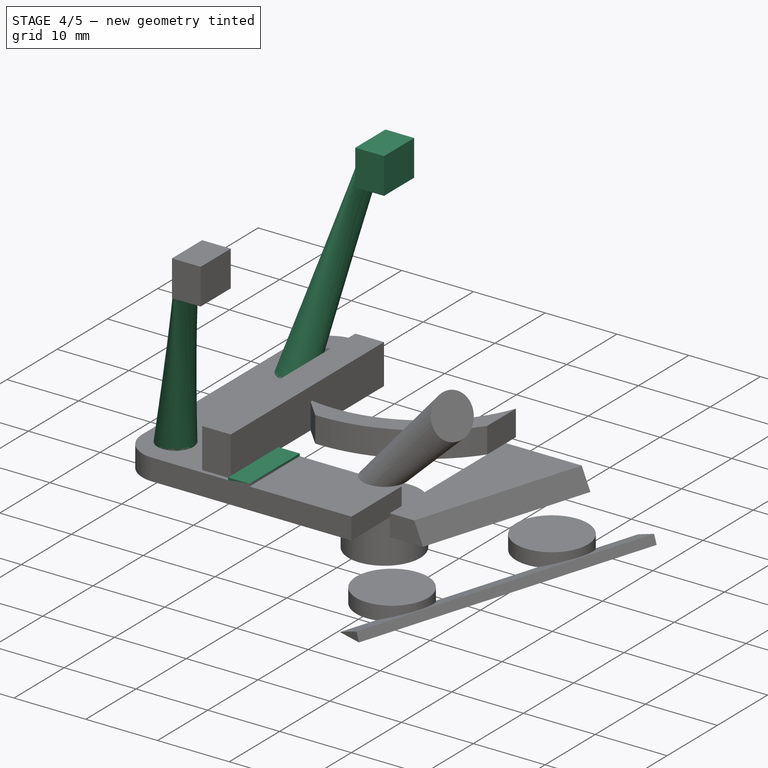
[diagram: stage 4 of 5 — iso view after this stage's code; geometry added in this stage tinted green]
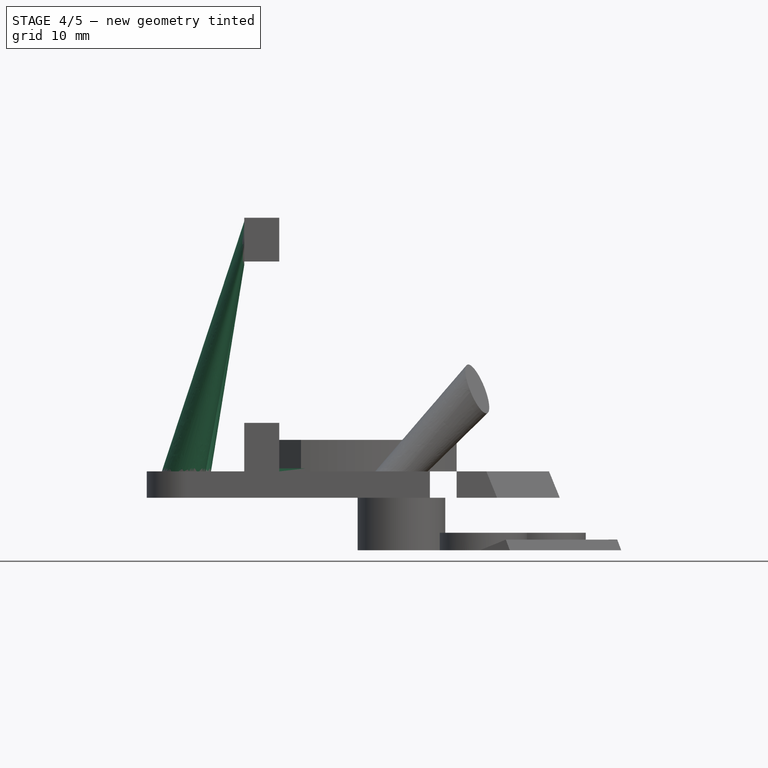
[diagram: stage 4 of 5 — front view after this stage's code; geometry added in this stage tinted green]
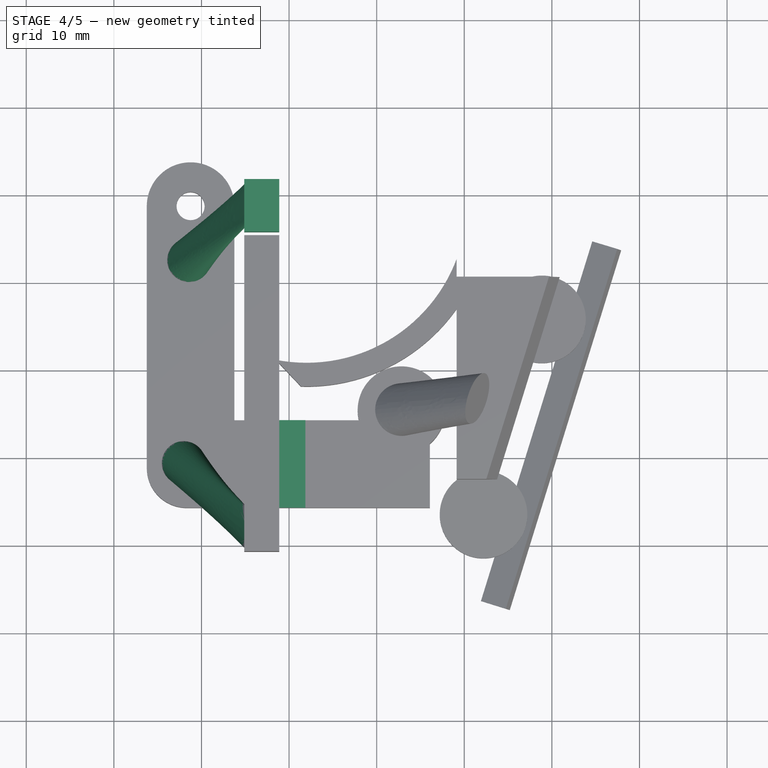
[diagram: stage 4 of 5 — top view after this stage's code; geometry added in this stage tinted green]
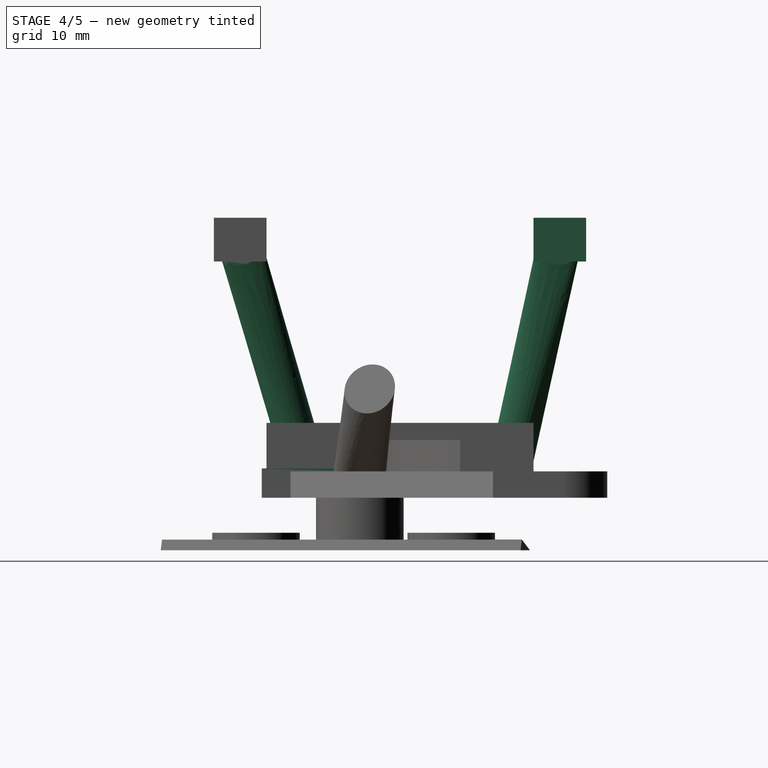
[diagram: stage 4 of 5 — right view after this stage's code; geometry added in this stage tinted green]
FEATURE [Sketcher::SketchObject] Sketch079
  ArcFitTolerance = 1e-06
  AttachmentSupport = -> [Binder013]
  ExternalGeometry = -> [Binder013]
  FullyConstrained = true
  MakeInternals = false
  MapMode = 5
  Placement = pos=(0,-4.76423,0) rot=(0,0.707107,0.707107;3.14159rad)
  sketch-geometry (4):
    g0: LineSegment StartX=-58.884 StartY=30.3553 StartZ=0 EndX=-58.884 EndY=25.3553 EndZ=0
    g1: LineSegment StartX=-58.884 StartY=25.3553 StartZ=0 EndX=-54.884 EndY=25.3553 EndZ=0
    g2: LineSegment StartX=-54.884 StartY=25.3553 StartZ=0 EndX=-54.884 EndY=30.3553 EndZ=0
    g3: LineSegment StartX=-54.884 StartY=30.3553 StartZ=0 EndX=-58.884 EndY=30.3553 EndZ=0
  constraints (11):
    c: Coincident(g0,g1)
    c: Coincident(g1,g2)
    c: Coincident(g2,g3)
    c: Coincident(g3,g0)
    c: Vertical(g0)
    c: Vertical(g2)
    c: Horizontal(g1)
    c: Horizontal(g3)
    c: Coincident(g0,g-3)
    c: PointOnObject(g1,g-4)
    c: DistanceY(g2,g2) = 5
FEATURE [PartDesign::Pad] Pad050
  BaseFeature = -> Pad049
  Direction = (0,1,-2e-16)
  Length = 6
  Length2 = 10
  Profile = -> Sketch079
  ReferenceAxis = -> Sketch079 [N_Axis]
  Refine = true
  Suppressed = false
  Type = 0
FEATURE [Sketcher::SketchObject] Sketch080
  ArcFitTolerance = 1e-06
  AttachmentSupport = -> [Pad050]
  FullyConstrained = false
  MakeInternals = false
  MapMode = 5
  Placement = pos=(54.884,0,0) rot=(0.57735,-0.57735,-0.57735;2.0944rad)
  sketch-geometry (1):
    g0: Circle CenterX=38.3255 CenterY=27.4525 CenterZ=0 NormalX=0 NormalY=0 NormalZ=1 AngleXU=0 Radius=2.5
  constraints (1):
    c: Diameter(g0) = 5
FEATURE [Sketcher::SketchObject] Sketch081
  ArcFitTolerance = 1e-06
  AttachmentSupport = -> [Pad050]
  FullyConstrained = false
  MakeInternals = false
  MapMode = 5
  Placement = pos=(0,0,1.4) rot=(0,0,1;0rad)
  sketch-geometry (1):
    g0: Circle CenterX=47.973 CenterY=-30.6844 CenterZ=0 NormalX=0 NormalY=0 NormalZ=1 AngleXU=0 Radius=2.5
  constraints (1):
    c: Diameter(g0) = 5
FEATURE [PartDesign::AdditiveLoft] AdditiveLoft
  BaseFeature = -> Pad050
  Closed = false
  Profile = -> Sketch081
  Refine = true
  Ruled = false
  Sections = -> [Sketch080]
  Suppressed = false
FEATURE [Sketcher::SketchObject] Sketch082
  ArcFitTolerance = 1e-06
  AttachmentSupport = -> [AdditiveLoft]
  FullyConstrained = false
  MakeInternals = false
  MapMode = 5
  Placement = pos=(54.884,0,0) rot=(0.57735,-0.57735,-0.57735;2.0944rad)
  sketch-geometry (1):
    g0: Circle CenterX=1.82039 CenterY=27.4709 CenterZ=0 NormalX=0 NormalY=0 NormalZ=1 AngleXU=0 Radius=2.5
  constraints (1):
    c: Diameter(g0) = 5
FEATURE [Sketcher::SketchObject] Sketch083
  ArcFitTolerance = 1e-06
  AttachmentSupport = -> [AdditiveLoft]
  FullyConstrained = false
  MakeInternals = false
  MapMode = 5
  Placement = pos=(0,0,1.4) rot=(0,0,1;0rad)
  sketch-geometry (1):
    g0: Circle CenterX=48.5862 CenterY=-7.518 CenterZ=0 NormalX=0 NormalY=0 NormalZ=1 AngleXU=0 Radius=2.5
  constraints (1):
    c: Diameter(g0) = 5
FEATURE [PartDesign::AdditiveLoft] AdditiveLoft009
  BaseFeature = -> AdditiveLoft
  Closed = false
  Profile = -> Sketch083
  Refine = true
  Ruled = false
  Sections = -> [Sketch082]
  Suppressed = false
FEATURE [PartDesign::Body] Body009  label="thumbstick mount"
  AllowCompound = true
  Group = -> [Binder016,Sketch084,Binder017,Sketch085,AdditiveLoft010,Sketch086,Sketch087,AdditiveLoft011,Binder018,Sketch088,Pad051]
  Origin = -> Origin018
  Tip = -> Pad051
FEATURE [App::Part] Part005  label="thumbstick-and-thumb-cluster"
  Group = -> [Link023,Link017,Body009]
  Origin = -> Origin015
FEATURE [PartDesign::SubShapeBinder] Binder019
  BindCopyOnChange = 0
  BindMode = 0
  ClaimChildren = false
  Context = -> Part [Part003.Body008.Binder019.]
  Fuse = false
  MakeFace = true
  OffsetFill = false
  OffsetIntersection = false
  OffsetJoinType = 0
  OffsetOpenResult = false
  PartialLoad = false
  Refine = true
  Relative = true
  Support = -> [Link[Pocket008.Face16]]
  _Version = 2
FEATURE [Sketcher::SketchObject] Sketch089
  ArcFitTolerance = 1e-06
  AttachmentSupport = -> [Binder019]
  ExternalGeometry = -> [AdditiveLoft009]
  FullyConstrained = false
  MakeInternals = false
  MapMode = 5
  Placement = pos=(0,0,1.74527) rot=(1,0,0;3.14159rad)
  sketch-geometry (4):
    g0: LineSegment StartX=58.884 StartY=25.7945 StartZ=0 EndX=61.8629 EndY=25.7945 EndZ=0
    g1: LineSegment StartX=61.8629 StartY=25.7945 StartZ=0 EndX=61.8629 EndY=35.7943 EndZ=0
    g2: LineSegment StartX=61.8629 StartY=35.7943 StartZ=0 EndX=58.884 EndY=35.7943 EndZ=0
    g3: LineSegment StartX=58.884 StartY=35.7943 StartZ=0 EndX=58.884 EndY=25.7945 EndZ=0
  constraints (10):
    c: Coincident(g0,g1)
    c: Coincident(g1,g2)
    c: Coincident(g2,g3)
    c: Coincident(g3,g0)
    c: Horizontal(g0)
    c: Horizontal(g2)
    c: Vertical(g1)
    c: Vertical(g3)
    c: Coincident(g0,g-4)
    c: PointOnObject(g1,g-3)
FEATURE [PartDesign::Pad] Pad052
  BaseFeature = -> AdditiveLoft009
  Direction = (0,0,-1)
  Length = 10
  Length2 = 10
  Profile = -> Sketch089
  ReferenceAxis = -> Sketch089 [N_Axis]
  Refine = true
  Suppressed = false
  Type = 3
  UpToFace = -> AdditiveLoft009 [Face5]
FEATURE [PartDesign::Body] Body
  AllowCompound = true
  Group = -> [Binder020,Binder021,Sketch091,Pad054,Binder022,Binder023,DatumPlane001,Pad055,Binder024,Binder025,Sketch092,Pad056,Sketch093,Sketch094,AdditiveLoft012,Binder026,Sketch095,Pad057,Sketch096,Pad058]
  Origin = -> Origin019
  Tip = -> Pad058
FEATURE [App::Part] Part001  label="cirque-and-thumb-cluster"
  Group = -> [Link010,Link026,Link027,Body]
  Origin = -> Origin
FEATURE [App::Part] Part002  label="horizontal"
  Group = -> [Part001,Link011,Link014]
  Origin = -> Origin009

RESOLVED EXTERNAL PARTS (link-assembly join: the EXTERNAL_REF files above that resolve inside this repo's crawl, each included once):
---- part caps.FCStd = doc fcstd_863bb0473ba7 ----
FCSTD DOCUMENT  (FreeCAD 1.0RUnknown)
Label: caps
License: All rights reserved
LicenseURL: https://en.wikipedia.org/wiki/All_rights_reserved
objects: Sketcher::SketchObject×9, PartDesign::Pocket×3, PartDesign::Pad×2, PartDesign::Body×2, PartDesign::Plane×2, PartDesign::Chamfer×2, PartDesign::AdditiveLoft×1, PartDesign::SubtractiveLoft×1, PartDesign::Fillet×1
note: 52 computed .brp shape members not serialized (recipe doc carries the construction recipe); baked Part::Feature solids carry a one-line shape summary decoded from their .brp

FEATURE [Sketcher::SketchObject] Sketch006
  ArcFitTolerance = 1e-06
  AttachmentSupport = -> [XY_Plane001]
  FullyConstrained = true
  MakeInternals = false
  MapMode = 5
  sketch-geometry (1):
    g0: Circle CenterX=0 CenterY=0 CenterZ=0 NormalX=0 NormalY=0 NormalZ=1 AngleXU=0 Radius=3
  constraints (2):
    c: Diameter(g0) = 6
    c: Coincident(g0,g-1)
FEATURE [PartDesign::Pad] Pad001
  Direction = (0,0,1)
  Length = 5.8
  Length2 = 10
  Profile = -> Sketch006
  ReferenceAxis = -> Sketch006 [N_Axis]
  Refine = true
  Suppressed = false
  Type = 0
FEATURE [Sketcher::SketchObject] Sketch007
  ArcFitTolerance = 1e-06
  AttachmentSupport = -> [XY_Plane001]
  FullyConstrained = true
  MakeInternals = false
  MapMode = 5
  sketch-geometry (5):
    g0: LineSegment StartX=-1.05 StartY=-1.05 StartZ=0 EndX=1.05 EndY=-1.05 EndZ=0
    g1: LineSegment StartX=1.05 StartY=-1.05 StartZ=0 EndX=1.05 EndY=1.05 EndZ=0
    g2: LineSegment StartX=1.05 StartY=1.05 StartZ=0 EndX=-1.05 EndY=1.05 EndZ=0
    g3: LineSegment StartX=-1.05 StartY=1.05 StartZ=0 EndX=-1.05 EndY=-1.05 EndZ=0
    g4: GeomPoint [constr] X=0 Y=0 Z=0
  constraints (12):
    c: Coincident(g0,g1)
    c: Coincident(g1,g2)
    c: Coincident(g2,g3)
    c: Coincident(g3,g0)
    c: Horizontal(g0)
    c: Horizontal(g2)
    c: Vertical(g1)
    c: Vertical(g3)
    c: Symmetric(g2,g0,g4)
    c: Distance(g1,g3) = 2.1
    c: Distance(g0,g2) = 2.1
    c: Coincident(g4,g-1)
FEATURE [PartDesign::Pocket] Pocket001
  BaseFeature = -> Pad001
  Direction = (0,0,-1)
  Length = 2.2
  Length2 = 5
  Profile = -> Sketch007
  ReferenceAxis = -> Sketch007 [N_Axis]
  Refine = true
  Reversed = true
  Suppressed = false
  Type = 0
FEATURE [Sketcher::SketchObject] Sketch008
  ArcFitTolerance = 1e-06
  AttachmentSupport = -> [Pocket001]
  FullyConstrained = true
  MakeInternals = false
  MapMode = 5
  Placement = pos=(0,0,5.8) rot=(0,0,1;0rad)
  sketch-geometry (1):
    g0: Circle CenterX=0 CenterY=0 CenterZ=0 NormalX=0 NormalY=0 NormalZ=1 AngleXU=0 Radius=1.65
  constraints (2):
    c: Diameter(g0) = 3.3
    c: Coincident(g0,g-1)
FEATURE [PartDesign::Pocket] Pocket002
  BaseFeature = -> Pocket001
  Direction = (0,0,-1)
  Length = 3.3
  Length2 = 5
  Profile = -> Sketch008
  ReferenceAxis = -> Sketch008 [N_Axis]
  Refine = true
  Suppressed = false
  Type = 0
FEATURE [PartDesign::Body] Body001  label="stem"
  AllowCompound = false
  Group = -> [Sketch006,Pad001,Sketch007,Pocket001,Sketch008,Pocket002]
  Origin = -> Origin001
  Tip = -> Pocket002
FEATURE [Sketcher::SketchObject] Sketch
  ArcFitTolerance = 1e-06
  AttachmentSupport = -> [XY_Plane]
  FullyConstrained = true
  MakeInternals = false
  MapMode = 5
  sketch-geometry (1):
    g0: Circle CenterX=0 CenterY=0 CenterZ=0 NormalX=0 NormalY=0 NormalZ=1 AngleXU=0 Radius=5.85
  constraints (2):
    c: Coincident(g0,g-1)
    c: Diameter(g0) = 11.7
FEATURE [PartDesign::Pad] Pad
  Direction = (0,0,1)
  Length = 1.3
  Length2 = 10
  Profile = -> Sketch
  ReferenceAxis = -> Sketch [N_Axis]
  Refine = true
  Suppressed = false
  Type = 0
FEATURE [Sketcher::SketchObject] Sketch001
  ArcFitTolerance = 1e-06
  AttachmentSupport = -> [Pad]
  FullyConstrained = true
  MakeInternals = false
  MapMode = 5
  Placement = pos=(0,0,1.3) rot=(0,0,1;0rad)
  sketch-geometry (1):
    g0: Circle CenterX=0 CenterY=0 CenterZ=0 NormalX=0 NormalY=0 NormalZ=1 AngleXU=0 Radius=4.35
  constraints (2):
    c: Diameter(g0) = 8.7
    c: Coincident(g0,g-1)
FEATURE [PartDesign::Plane] DatumPlane
  AttachmentOffset = pos=(0,0,1.3) rot=(0,0,1;0rad)
  AttachmentSupport = -> [Sketch001]
  Length = 60
  MapMode = 45
  Placement = pos=(2.07e-14,3e-16,2.6) rot=(0,0,1;0rad)
  ResizeMode = 0
  Width = 60
FEATURE [Sketcher::SketchObject] Sketch002
  ArcFitTolerance = 1e-06
  AttachmentSupport = -> [DatumPlane]
  FullyConstrained = true
  MakeInternals = false
  MapMode = 5
  Placement = pos=(2.07e-14,3e-16,2.6) rot=(0,0,1;0rad)
  sketch-geometry (1):
    g0: Circle CenterX=0 CenterY=0 CenterZ=0 NormalX=0 NormalY=0 NormalZ=1 AngleXU=0 Radius=5.35
  constraints (2):
    c: Diameter(g0) = 10.7
    c: Coincident(g0,g-1)
FEATURE [PartDesign::AdditiveLoft] AdditiveLoft
  BaseFeature = -> Pad
  Closed = false
  Profile = -> Sketch002
  Refine = true
  Ruled = false
  Sections = -> [Sketch001]
  Suppressed = false
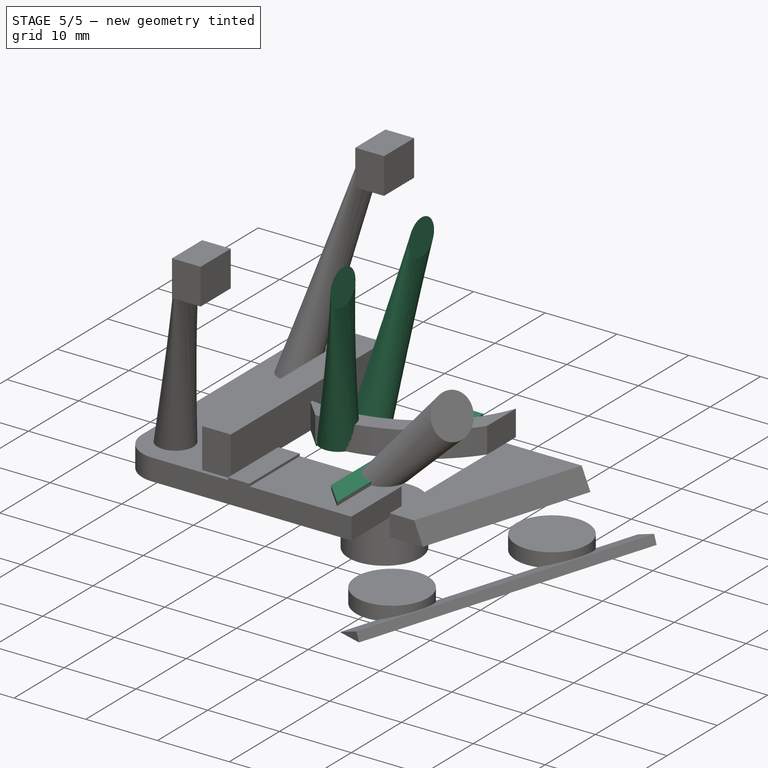
[diagram: stage 5 of 5 — iso view after this stage's code; geometry added in this stage tinted green]
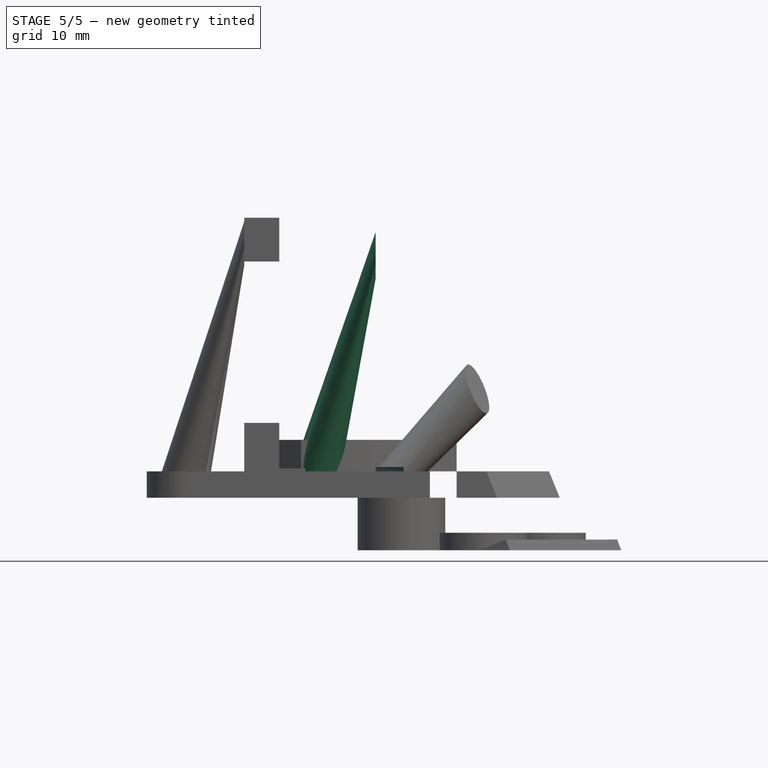
[diagram: stage 5 of 5 — front view after this stage's code; geometry added in this stage tinted green]
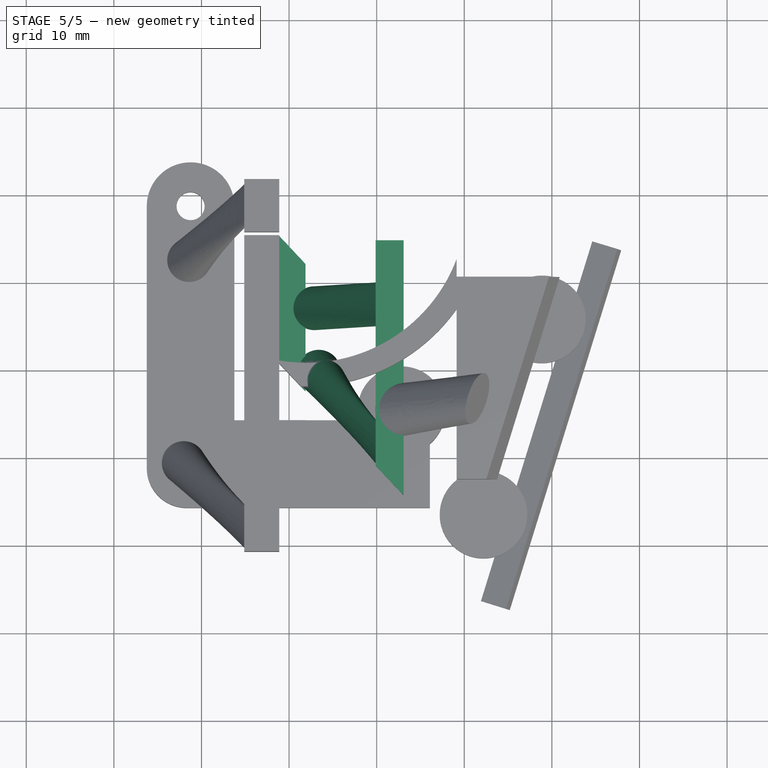
[diagram: stage 5 of 5 — top view after this stage's code; geometry added in this stage tinted green]
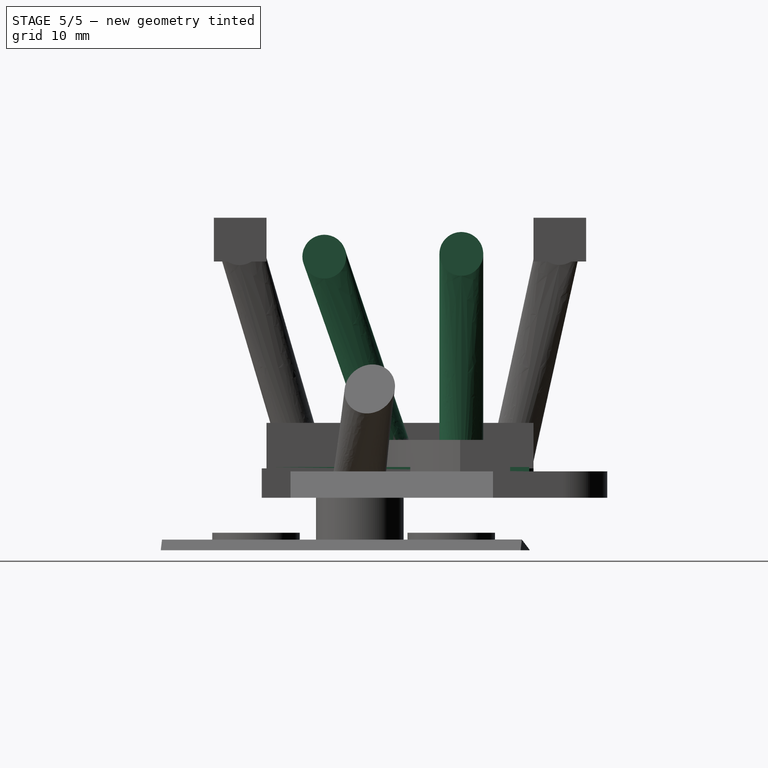
[diagram: stage 5 of 5 — right view after this stage's code; geometry added in this stage tinted green]
FEATURE [PartDesign::SubShapeBinder] Binder016
  BindCopyOnChange = 0
  BindMode = 0
  ClaimChildren = false
  Context = -> Part [Part005.Body009.Binder016.]
  Fuse = false
  MakeFace = true
  OffsetFill = false
  OffsetIntersection = false
  OffsetJoinType = 0
  OffsetOpenResult = false
  PartialLoad = false
  Refine = true
  Relative = true
  Support = -> [Link023[Link020.Pad047.Face11]]
  _Version = 2
FEATURE [Sketcher::SketchObject] Sketch084
  ArcFitTolerance = 1e-06
  AttachmentSupport = -> [Binder016]
  FullyConstrained = false
  MakeInternals = false
  MapMode = 5
  Placement = pos=(0,0,1.4) rot=(0,0,1;0rad)
  sketch-geometry (1):
    g0: Circle CenterX=63.3865 CenterY=-20.2554 CenterZ=0 NormalX=0 NormalY=0 NormalZ=1 AngleXU=0 Radius=2.5
  constraints (1):
    c: Diameter(g0) = 5
FEATURE [PartDesign::SubShapeBinder] Binder017
  BindCopyOnChange = 0
  BindMode = 0
  ClaimChildren = false
  Context = -> Part [Part005.Body009.Binder017.]
  Fuse = false
  MakeFace = true
  OffsetFill = false
  OffsetIntersection = false
  OffsetJoinType = 0
  OffsetOpenResult = false
  PartialLoad = false
  Refine = true
  Relative = true
  Support = -> [Link017[Pocket003.Face4]]
  _Version = 2
FEATURE [Sketcher::SketchObject] Sketch085
  ArcFitTolerance = 1e-06
  AttachmentSupport = -> [Binder017]
  FullyConstrained = false
  MakeInternals = false
  MapMode = 5
  Placement = pos=(69.88,9.783e-13,-1.17809e-05) rot=(0.57735,-0.57735,-0.57735;2.0944rad)
  sketch-geometry (1):
    g0: Circle CenterX=28.6475 CenterY=25.9124 CenterZ=0 NormalX=0 NormalY=0 NormalZ=1 AngleXU=0 Radius=2.5
  constraints (1):
    c: Diameter(g0) = 5
FEATURE [PartDesign::AdditiveLoft] AdditiveLoft010
  Closed = false
  Profile = -> Sketch084
  Refine = true
  Ruled = false
  Sections = -> [Sketch085]
  Suppressed = false
FEATURE [Sketcher::SketchObject] Sketch086
  ArcFitTolerance = 1e-06
  AttachmentSupport = -> [Binder016]
  FullyConstrained = false
  MakeInternals = false
  MapMode = 5
  Placement = pos=(0,0,1.4) rot=(0,0,1;0rad)
  sketch-geometry (1):
    g0: Circle CenterX=62.8814 CenterY=-13.0104 CenterZ=0 NormalX=0 NormalY=0 NormalZ=1 AngleXU=0 Radius=2.5
  constraints (1):
    c: Diameter(g0) = 5
FEATURE [Sketcher::SketchObject] Sketch087
  ArcFitTolerance = 1e-06
  AttachmentSupport = -> [Binder017]
  FullyConstrained = false
  MakeInternals = false
  MapMode = 5
  Placement = pos=(69.88,9.783e-13,-1.17809e-05) rot=(0.57735,-0.57735,-0.57735;2.0944rad)
  sketch-geometry (1):
    g0: Circle CenterX=13.0059 CenterY=26.2266 CenterZ=0 NormalX=0 NormalY=0 NormalZ=1 AngleXU=0 Radius=2.5
  constraints (1):
    c: Diameter(g0) = 5
FEATURE [PartDesign::AdditiveLoft] AdditiveLoft011
  BaseFeature = -> AdditiveLoft010
  Closed = false
  Profile = -> Sketch086
  Refine = true
  Ruled = false
  Sections = -> [Sketch087]
  Suppressed = false
FEATURE [PartDesign::SubShapeBinder] Binder018
  BindCopyOnChange = 0
  BindMode = 0
  ClaimChildren = false
  Context = -> Part [Part005.Body009.Binder018.]
  Fuse = false
  MakeFace = true
  OffsetFill = false
  OffsetIntersection = false
  OffsetJoinType = 0
  OffsetOpenResult = false
  PartialLoad = false
  Refine = true
  Relative = true
  Support = -> [Link017[Pocket003.Face10]]
  _Version = 2
FEATURE [Sketcher::SketchObject] Sketch088
  ArcFitTolerance = 1e-06
  AttachmentSupport = -> [Binder018]
  ExternalGeometry = -> [Binder016,Binder018,Binder017]
  FullyConstrained = false
  MakeInternals = false
  MapMode = 5
  Placement = pos=(3.20318e-07,0,1.90001) rot=(1,0,0;3.14159rad)
  sketch-geometry (4):
    g0: LineSegment StartX=69.88 StartY=5.25 StartZ=0 EndX=73.08 EndY=5.25 EndZ=0
    g1: LineSegment StartX=73.08 StartY=5.25 StartZ=0 EndX=73.08 EndY=34.3929 EndZ=0
    g2: LineSegment StartX=73.08 StartY=34.3929 StartZ=0 EndX=69.88 EndY=31.0037 EndZ=0
    g3: LineSegment StartX=69.88 StartY=31.0037 StartZ=0 EndX=69.88 EndY=5.25 EndZ=0
  constraints (9):
    c: Coincident(g-5,g0)
    c: Coincident(g0,g-4)
    c: Coincident(g0,g1)
    c: PointOnObject(g1,g-4)
    c: Coincident(g1,g2)
    c: PointOnObject(g2,g-3)
    c: Coincident(g2,g3)
    c: Coincident(g3,g0)
    c: Vertical(g3)
FEATURE [PartDesign::Pad] Pad051
  BaseFeature = -> AdditiveLoft011
  Direction = (-1.68587e-07,0,-1)
  Length = 10
  Length2 = 10
  Profile = -> Sketch088
  ReferenceAxis = -> Sketch088 [N_Axis]
  Refine = true
  Suppressed = false
  Type = 3
  UpToFace = -> Binder016 [Face1]
FEATURE [Sketcher::SketchObject] Sketch090
  ArcFitTolerance = 1e-06
  AttachmentSupport = -> [Binder019]
  ExternalGeometry = -> [Binder012,Binder019,Pad052]
  FullyConstrained = false
  MakeInternals = false
  MapMode = 5
  Placement = pos=(0,0,1.74527) rot=(1,0,0;3.14159rad)
  sketch-geometry (4):
    g0: LineSegment StartX=58.884 StartY=4.76423 StartZ=0 EndX=58.884 EndY=19.3498 EndZ=0
    g1: LineSegment StartX=58.884 StartY=19.3498 StartZ=0 EndX=61.8816 EndY=22.5327 EndZ=0
    g2: LineSegment StartX=61.8816 StartY=22.5327 StartZ=0 EndX=61.8816 EndY=7.96667 EndZ=0
    g3: LineSegment StartX=61.8816 StartY=7.96667 StartZ=0 EndX=58.884 EndY=4.76423 EndZ=0
  constraints (9):
    c: Coincident(g-6,g0)
    c: PointOnObject(g0,g-6)
    c: Coincident(g0,g1)
    c: PointOnObject(g1,g-3)
    c: Coincident(g1,g2)
    c: PointOnObject(g2,g-4)
    c: Vertical(g2)
    c: Coincident(g2,g3)
    c: Coincident(g3,g0)
FEATURE [PartDesign::Pad] Pad053
  BaseFeature = -> Pad052
  Direction = (0,0,-1)
  Length = 10
  Length2 = 10
  Profile = -> Sketch090
  ReferenceAxis = -> Sketch090 [N_Axis]
  Refine = true
  Suppressed = false
  Type = 3
  UpToFace = -> Binder012 [Face1]
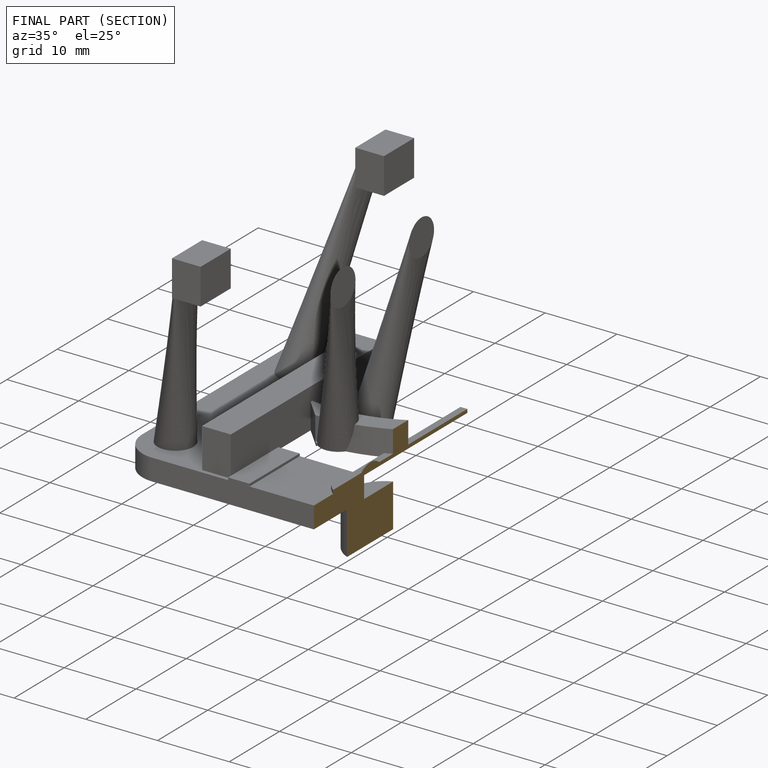
[diagram: finished part — half-section view (interior)]
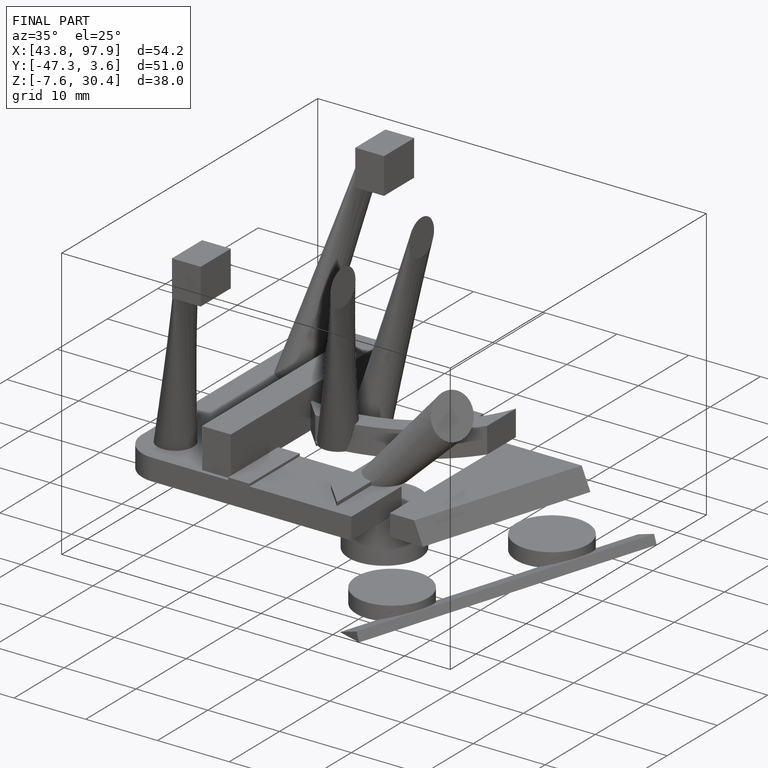
[diagram: finished part — iso view with bounding-box wireframe]
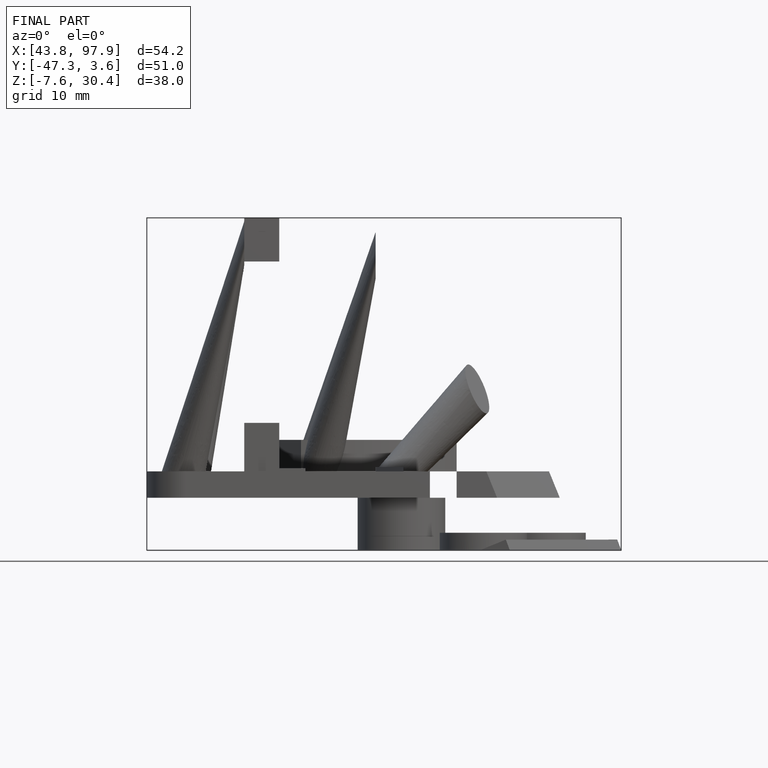
[diagram: finished part — front view with bounding-box wireframe]
